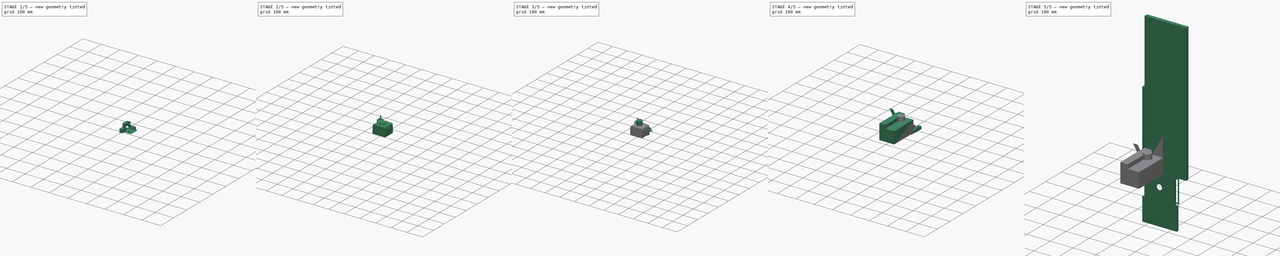
[diagram: build sequence overview — one tinted view per stage of 5, left to right]
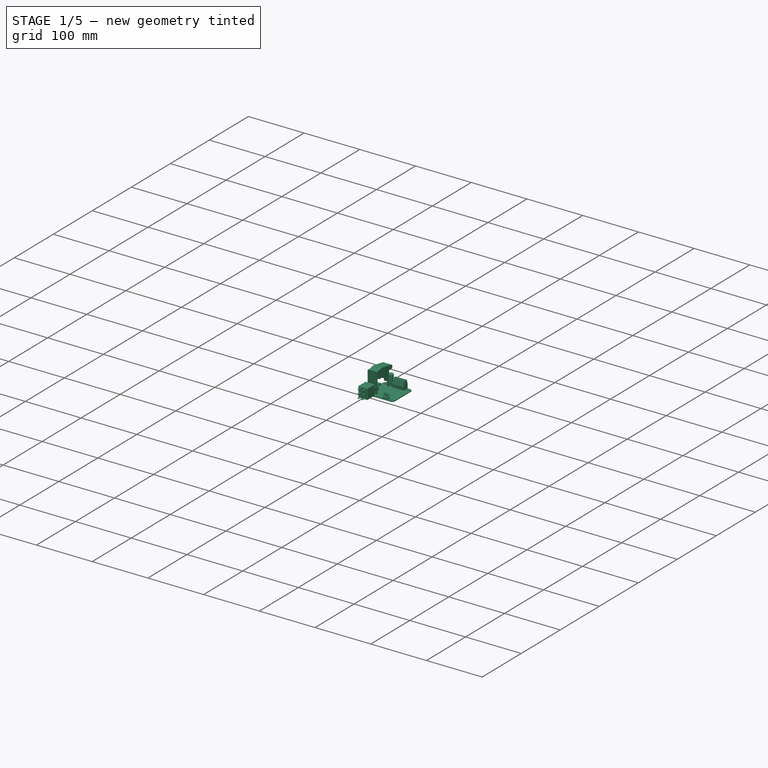
[diagram: stage 1 of 5 — iso view after this stage's code; geometry added in this stage tinted green]
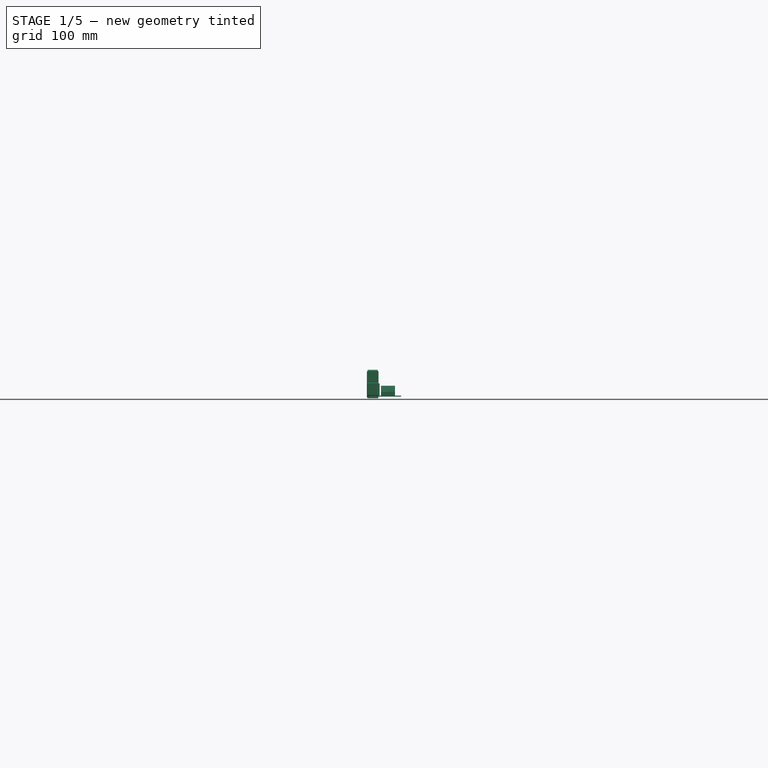
[diagram: stage 1 of 5 — front view after this stage's code; geometry added in this stage tinted green]
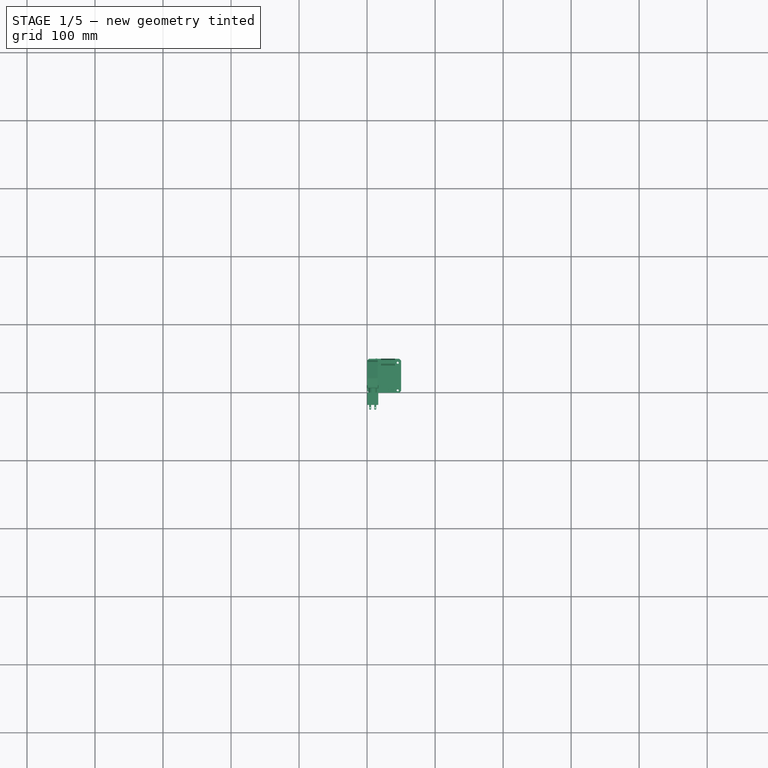
[diagram: stage 1 of 5 — top view after this stage's code; geometry added in this stage tinted green]
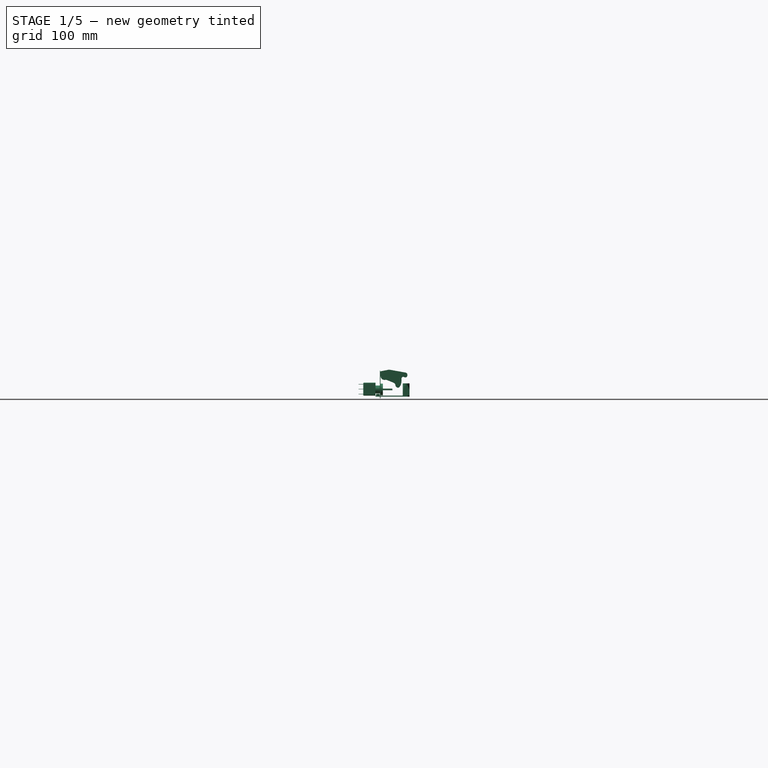
[diagram: stage 1 of 5 — right view after this stage's code; geometry added in this stage tinted green]
FCSTD DOCUMENT  (FreeCAD 1.0R39285 (Git))
Label: Front-Sketch
License: All rights reserved
LicenseURL: https://en.wikipedia.org/wiki/All_rights_reserved
objects: Sketcher::SketchObject×94, PartDesign::Pad×72, PartDesign::Pocket×20, PartDesign::Body×19, PartDesign::LinearPattern×12, PartDesign::Chamfer×9, PartDesign::Fillet×7, PartDesign::MultiTransform×4, App::Link×1, PartDesign::AdditiveLoft×1, PartDesign::PolarPattern×1
note: 568 computed .brp shape members not serialized (recipe doc carries the construction recipe); baked Part::Feature solids carry a one-line shape summary decoded from their .brp

FEATURE [PartDesign::Body] Body016  label="MotorMitGetriebe"
  AllowCompound = false
  Group = -> [Sketch067,Pad052,Sketch068,Pad053,Sketch069,Pad054,Sketch070,Pad055,Fillet003,Sketch071,Pad056,Sketch072,Pocket013,Sketch073,Pocket014,Sketch074,Pad057,Sketch075,Pad058]
  Origin = -> Origin016
  Placement = pos=(-157.5,216.5,160) rot=(-0.57735,-0.57735,-0.57735;4.18879rad)
  Tip = -> Pad058
FEATURE [Sketcher::SketchObject] Sketch076
  ArcFitTolerance = 1e-06
  AttachmentSupport = -> [XY_Plane]
  FullyConstrained = true
  MakeInternals = false
  MapMode = 5
  sketch-geometry (24):
    g0: LineSegment StartX=0 StartY=47.1716 StartZ=0 EndX=0 EndY=2.82843 EndZ=0
    g1: LineSegment StartX=2.82843 StartY=0 StartZ=0 EndX=47.1716 EndY=0 EndZ=0
    g2: LineSegment StartX=50 StartY=2.82843 StartZ=0 EndX=50 EndY=47.1716 EndZ=0
    g3: LineSegment StartX=47.1716 StartY=50 StartZ=0 EndX=2.82843 EndY=50 EndZ=0
    g4: LineSegment StartX=0 StartY=47.1716 StartZ=0 EndX=2.82843 EndY=50 EndZ=0
    g5: LineSegment StartX=47.1716 StartY=50 StartZ=0 EndX=50 EndY=47.1716 EndZ=0
    g6: LineSegment StartX=50 StartY=2.82843 StartZ=0 EndX=47.1716 EndY=0 EndZ=0
    g7: LineSegment StartX=2.82843 StartY=0 StartZ=0 EndX=0 EndY=2.82843 EndZ=0
    g8: LineSegment [constr] StartX=2.82843 StartY=50 StartZ=0 EndX=0 EndY=50 EndZ=0
    g9: LineSegment [constr] StartX=0 StartY=47.1716 StartZ=0 EndX=0 EndY=50 EndZ=0
    g10: LineSegment [constr] StartX=47.1716 StartY=50 StartZ=0 EndX=50 EndY=50 EndZ=0
    g11: LineSegment [constr] StartX=50 StartY=50 StartZ=0 EndX=50 EndY=47.1716 EndZ=0
    g12: LineSegment [constr] StartX=50 StartY=2.82843 StartZ=0 EndX=50 EndY=0 EndZ=0
    g13: LineSegment [constr] StartX=47.1716 StartY=0 StartZ=0 EndX=50 EndY=0 EndZ=0
    g14: LineSegment [constr] StartX=0 StartY=2.82843 StartZ=0 EndX=0 EndY=0 EndZ=0
    g15: LineSegment [constr] StartX=0 StartY=0 StartZ=0 EndX=2.82843 EndY=0 EndZ=0
    g16: Circle CenterX=5 CenterY=3.5 CenterZ=0 NormalX=0 NormalY=0 NormalZ=1 AngleXU=0 Radius=1.5
    g17: Circle CenterX=5 CenterY=44 CenterZ=0 NormalX=0 NormalY=0 NormalZ=1 AngleXU=0 Radius=1.5
    g18: Circle CenterX=45 CenterY=44 CenterZ=0 NormalX=0 NormalY=0 NormalZ=1 AngleXU=0 Radius=1.5
    g19: Circle CenterX=45 CenterY=3.5 CenterZ=0 NormalX=0 NormalY=0 NormalZ=1 AngleXU=0 Radius=1.5
    g20: LineSegment [constr] StartX=3.5 StartY=3.5 StartZ=0 EndX=0 EndY=3.5 EndZ=0
    g21: LineSegment [constr] StartX=46.5 StartY=3.5 StartZ=0 EndX=50 EndY=3.5 EndZ=0
    g22: LineSegment [constr] StartX=5 StartY=2 StartZ=0 EndX=5 EndY=0 EndZ=0
    g23: LineSegment [constr] StartX=5 StartY=45.5 StartZ=0 EndX=5 EndY=50 EndZ=0
  constraints (71):
    c: Vertical(g0)
    c: Vertical(g2)
    c: Horizontal(g1)
    c: Horizontal(g3)
    c: Coincident(g0,g7)
    c: Coincident(g1,g7)
    c: Coincident(g2,g6)
    c: Coincident(g1,g6)
    c: Coincident(g3,g5)
    c: Coincident(g2,g5)
    c: Coincident(g3,g4)
    c: Coincident(g0,g4)
    c: Coincident(g8,g3)
    c: Horizontal(g8)
    c: Coincident(g9,g0)
    c: Coincident(g9,g8)
    c: Coincident(g10,g3)
    c: Horizontal(g10)
    c: Coincident(g11,g10)
    c: Coincident(g11,g2)
    c: Coincident(g12,g2)
    c: Vertical(g12)
    c: Coincident(g13,g1)
    c: Coincident(g13,g12)
    c: Coincident(g14,g0)
    c: Vertical(g14)
    c: Coincident(g15,g14)
    c: Coincident(g15,g1)
    c: Horizontal(g15)
    c: Vertical(g9)
    c: Vertical(g11)
    c: Horizontal(g13)
    c: Equal(g13,g12)
    c: Equal(g12,g11)
    c: Equal(g11,g10)
    c: Equal(g10,g8)
    c: Equal(g8,g9)
    c: Equal(g9,g15)
    c: Equal(g15,g14)
    c: DistanceX(g14,g12) = 50
    c: DistanceY(g14,g8) = 50
    c: Coincident(g14,g-1)
    c: Distance(g5) = 4
    c: Equal(g18,g17)
    c: Equal(g17,g16)
    c: Equal(g16,g19)
    c: Horizontal(g16,g19)
    c: Horizontal(g17,g18)
    c: Vertical(g18,g19)
    c: Vertical(g16,g17)
    c: Diameter(g16) = 3
    c: PointOnObject(g20,g16)
    c: PointOnObject(g20,g0)
    c: Horizontal(g20)
    c: PointOnObject(g21,g19)
    c: PointOnObject(g21,g2)
    c: Horizontal(g21)
    c: DistanceX(g21,g21) = 3.5
    c: Equal(g21,g20)
    c: Horizontal(g20,g16)
    c: Horizontal(g16,g21)
    c: PointOnObject(g22,g16)
    c: PointOnObject(g22,g1)
    c: Vertical(g22)
    c: Vertical(g22,g16)
    c: DistanceY(g22,g22) = 2
    c: PointOnObject(g23,g17)
    c: PointOnObject(g23,g3)
    c: Vertical(g23)
    c: Vertical(g23,g17)
    c: DistanceY(g23,g23) = 4.5
FEATURE [PartDesign::Pad] Pad059
  Direction = (0,0,1)
  Length = 1.5
  Length2 = 10
  Profile = -> Sketch076
  ReferenceAxis = -> Sketch076 [N_Axis]
  Refine = true
  Reversed = true
  Suppressed = false
  Type = 0
FEATURE [Sketcher::SketchObject] Sketch077
  ArcFitTolerance = 1e-06
  AttachmentSupport = -> [Pad059]
  ExternalGeometry = -> [Pad059]
  FullyConstrained = true
  MakeInternals = false
  MapMode = 5
  sketch-geometry (3):
    g0: Circle CenterX=13.5 CenterY=45 CenterZ=0 NormalX=0 NormalY=0 NormalZ=1 AngleXU=0 Radius=5
    g1: GeomPoint [constr] X=13.5 Y=50 Z=0
    g2: LineSegment [constr] StartX=8.5 StartY=45 StartZ=0 EndX=0 EndY=45 EndZ=0
  constraints (9):
    c: Diameter(g0) = 10
    c: PointOnObject(g1,g0)
    c: Vertical(g1,g0)
    c: PointOnObject(g1,g-3)
    c: PointOnObject(g2,g0)
    c: PointOnObject(g2,g-2)
    c: Horizontal(g2)
    c: Horizontal(g2,g0)
    c: DistanceX(g2,g2) = 8.5
FEATURE [PartDesign::Pad] Pad060
  BaseFeature = -> Pad059
  Direction = (0,0,1)
  Length = 18
  Length2 = 10
  Profile = -> Sketch077
  ReferenceAxis = -> Sketch077 [N_Axis]
  Refine = true
  Suppressed = false
  Type = 0
FEATURE [Sketcher::SketchObject] Sketch078
  ArcFitTolerance = 1e-06
  AttachmentSupport = -> [Pad060]
  ExternalGeometry = -> [Pad060]
  FullyConstrained = true
  MakeInternals = false
  MapMode = 5
  sketch-geometry (4):
    g0: LineSegment StartX=20.5 StartY=50 StartZ=0 EndX=20.5 EndY=40 EndZ=0
    g1: LineSegment StartX=20.5 StartY=40 StartZ=0 EndX=41 EndY=40 EndZ=0
    g2: LineSegment StartX=41 StartY=40 StartZ=0 EndX=41 EndY=50 EndZ=0
    g3: LineSegment StartX=41 StartY=50 StartZ=0 EndX=20.5 EndY=50 EndZ=0
  constraints (12):
    c: Coincident(g0,g1)
    c: Coincident(g1,g2)
    c: Coincident(g2,g3)
    c: Coincident(g3,g0)
    c: Vertical(g0)
    c: Vertical(g2)
    c: Horizontal(g1)
    c: Horizontal(g3)
    c: Distance(g0,g2) = 20.5
    c: Distance(g1,g3) = 10
    c: PointOnObject(g0,g-3)
    c: DistanceX(g1,g-4) = 9
FEATURE [PartDesign::Pad] Pad061
  BaseFeature = -> Pad060
  Direction = (0,0,1)
  Length = 14.5
  Length2 = 10
  Profile = -> Sketch078
  ReferenceAxis = -> Sketch078 [N_Axis]
  Refine = true
  Suppressed = false
  Type = 0
FEATURE [PartDesign::Chamfer] Chamfer006
  Angle = 45
  Base = -> Pad061 [Edge44]
  BaseFeature = -> Pad061
  ChamferType = 1
  FlipDirection = false
  Refine = true
  Size = 9
  Size2 = 2.5
  SupportTransform = false
  Suppressed = false
  UseAllEdges = false
FEATURE [PartDesign::Chamfer] Chamfer007
  Angle = 45
  Base = -> Chamfer006 [Edge28]
  BaseFeature = -> Chamfer006
  ChamferType = 1
  FlipDirection = false
  Refine = true
  Size = 2
  Size2 = 7
  SupportTransform = false
  Suppressed = false
  UseAllEdges = false
FEATURE [Sketcher::SketchObject] Sketch079
  ArcFitTolerance = 1e-06
  AttachmentSupport = -> [Chamfer007]
  ExternalGeometry = -> [Chamfer007]
  FullyConstrained = true
  MakeInternals = false
  MapMode = 5
  Placement = pos=(0,0,14.5) rot=(0,0,1;0rad)
  sketch-geometry (10):
    g0: Circle CenterX=23.25 CenterY=45.25 CenterZ=0 NormalX=0 NormalY=0 NormalZ=1 AngleXU=0 Radius=2
    g1: Circle CenterX=28.25 CenterY=45.25 CenterZ=0 NormalX=0 NormalY=0 NormalZ=1 AngleXU=0 Radius=2
    g2: Circle CenterX=33.25 CenterY=45.25 CenterZ=0 NormalX=0 NormalY=0 NormalZ=1 AngleXU=0 Radius=2
    g3: Circle CenterX=38.25 CenterY=45.25 CenterZ=0 NormalX=0 NormalY=0 NormalZ=1 AngleXU=0 Radius=2
    g4: GeomPoint [constr] X=20.5 Y=45.25 Z=0
    g5: LineSegment [constr] StartX=38.25 StartY=45.25 StartZ=0 EndX=41 EndY=45.25 EndZ=0
    g6: LineSegment [constr] StartX=38.25 StartY=45.25 StartZ=0 EndX=33.25 EndY=45.25 EndZ=0
    g7: LineSegment [constr] StartX=33.25 StartY=45.25 StartZ=0 EndX=28.25 EndY=45.25 EndZ=0
    g8: LineSegment [constr] StartX=28.25 StartY=45.25 StartZ=0 EndX=23.25 EndY=45.25 EndZ=0
    g9: LineSegment [constr] StartX=23.25 StartY=45.25 StartZ=0 EndX=20.5 EndY=45.25 EndZ=0
  constraints (24):
    c: Equal(g2,g3)
    c: Equal(g3,g1)
    c: Equal(g1,g0)
    c: Horizontal(g0,g1)
    c: Horizontal(g1,g2)
    c: Horizontal(g2,g3)
    c: Diameter(g3) = 4
    c: Symmetric(g-3,g-4,g4)
    c: Horizontal(g4,g0)
    c: Coincident(g5,g3)
    c: Horizontal(g5)
    c: Coincident(g6,g3)
    c: Coincident(g6,g2)
    c: Coincident(g7,g2)
    c: Coincident(g7,g1)
    c: Coincident(g8,g1)
    c: Coincident(g8,g0)
    c: Coincident(g9,g0)
    c: Coincident(g9,g4)
    c: Equal(g9,g5)
    c: Vertical(g5,g-3)
    c: Equal(g6,g7)
    c: Equal(g7,g8)
    c: DistanceX(g6,g6) = 5
FEATURE [PartDesign::Pocket] Pocket015
  BaseFeature = -> Chamfer007
  Direction = (0,0,-1)
  Length = 1.5
  Length2 = 5
  Profile = -> Sketch079
  ReferenceAxis = -> Sketch079 [N_Axis]
  Refine = true
  Suppressed = false
  Type = 0
FEATURE [Sketcher::SketchObject] Sketch080
  ArcFitTolerance = 1e-06
  AttachmentSupport = -> [Pocket015]
  ExternalGeometry = -> [Pocket015]
  FullyConstrained = true
  MakeInternals = false
  MapMode = 5
  Placement = pos=(0,50,0) rot=(0,0.707107,0.707107;3.14159rad)
  sketch-geometry (21):
    g0: LineSegment StartX=-39.75 StartY=5.5 StartZ=0 EndX=-39.75 EndY=2.5 EndZ=0
    g1: LineSegment StartX=-39.75 StartY=2.5 StartZ=0 EndX=-36.75 EndY=2.5 EndZ=0
    g2: LineSegment StartX=-36.75 StartY=2.5 StartZ=0 EndX=-36.75 EndY=5.5 EndZ=0
    g3: LineSegment StartX=-36.75 StartY=5.5 StartZ=0 EndX=-39.75 EndY=5.5 EndZ=0
    g4: LineSegment StartX=-34.75 StartY=5.5 StartZ=0 EndX=-34.75 EndY=2.5 EndZ=0
    g5: LineSegment StartX=-34.75 StartY=2.5 StartZ=0 EndX=-31.75 EndY=2.5 EndZ=0
    g6: LineSegment StartX=-31.75 StartY=2.5 StartZ=0 EndX=-31.75 EndY=5.5 EndZ=0
    g7: LineSegment StartX=-31.75 StartY=5.5 StartZ=0 EndX=-34.75 EndY=5.5 EndZ=0
    g8: LineSegment StartX=-29.75 StartY=5.5 StartZ=0 EndX=-29.75 EndY=2.5 EndZ=0
    g9: LineSegment StartX=-29.75 StartY=2.5 StartZ=0 EndX=-26.75 EndY=2.5 EndZ=0
    g10: LineSegment StartX=-26.75 StartY=2.5 StartZ=0 EndX=-26.75 EndY=5.5 EndZ=0
    g11: LineSegment StartX=-26.75 StartY=5.5 StartZ=0 EndX=-29.75 EndY=5.5 EndZ=0
    g12: LineSegment StartX=-24.75 StartY=5.5 StartZ=0 EndX=-24.75 EndY=2.5 EndZ=0
    g13: LineSegment StartX=-24.75 StartY=2.5 StartZ=0 EndX=-21.75 EndY=2.5 EndZ=0
    g14: LineSegment StartX=-21.75 StartY=2.5 StartZ=0 EndX=-21.75 EndY=5.5 EndZ=0
    g15: LineSegment StartX=-21.75 StartY=5.5 StartZ=0 EndX=-24.75 EndY=5.5 EndZ=0
    g16: LineSegment [constr] StartX=-39.75 StartY=5.5 StartZ=0 EndX=-41 EndY=5.5 EndZ=0
    g17: LineSegment [constr] StartX=-36.75 StartY=5.5 StartZ=0 EndX=-34.75 EndY=5.5 EndZ=0
    g18: LineSegment [constr] StartX=-31.75 StartY=5.5 StartZ=0 EndX=-29.75 EndY=5.5 EndZ=0
    g19: LineSegment [constr] StartX=-26.75 StartY=5.5 StartZ=0 EndX=-24.75 EndY=5.5 EndZ=0
    g20: LineSegment [constr] StartX=-21.75 StartY=5.5 StartZ=0 EndX=-20.5 EndY=5.5 EndZ=0
  constraints (60):
    c: Coincident(g0,g1)
    c: Coincident(g1,g2)
    c: Coincident(g2,g3)
    c: Coincident(g3,g0)
    c: Vertical(g0)
    c: Vertical(g2)
    c: Horizontal(g1)
    c: Horizontal(g3)
    c: Coincident(g4,g5)
    c: Coincident(g5,g6)
    c: Coincident(g6,g7)
    c: Coincident(g7,g4)
    c: Vertical(g4)
    c: Vertical(g6)
    c: Horizontal(g5)
    c: Horizontal(g7)
    c: Coincident(g8,g9)
    c: Coincident(g9,g10)
    c: Coincident(g10,g11)
    c: Coincident(g11,g8)
    c: Vertical(g8)
    c: Vertical(g10)
    c: Horizontal(g9)
    c: Horizontal(g11)
    c: Coincident(g12,g13)
    c: Coincident(g13,g14)
    c: Coincident(g14,g15)
    c: Coincident(g15,g12)
    c: Vertical(g12)
    c: Vertical(g14)
    c: Horizontal(g13)
    c: Horizontal(g15)
    c: Equal(g3,g7)
    c: Equal(g7,g11)
    c: Equal(g11,g15)
    c: DistanceX(g11,g11) = 3
    c: Equal(g2,g6)
    c: Equal(g6,g10)
    c: Equal(g10,g14)
    c: DistanceY(g10,g10) = 3
    c: Horizontal(g1,g4)
    c: Horizontal(g4,g8)
    c: Horizontal(g8,g12)
    c: Coincident(g16,g0)
    c: Horizontal(g16)
    c: Coincident(g17,g2)
    c: Coincident(g17,g4)
    c: Coincident(g18,g6)
    c: Coincident(g18,g8)
    c: Coincident(g19,g10)
    c: Coincident(g19,g12)
    c: Coincident(g20,g14)
    c: Horizontal(g20)
    c: Vertical(g20,g-3)
    c: Vertical(g-3,g16)
    c: Equal(g20,g16)
    c: Equal(g17,g18)
    c: Equal(g18,g19)
    c: DistanceY(g-1,g13) = 2.5
    c: DistanceX(g0,g4) = 5
FEATURE [PartDesign::Pocket] Pocket016
  BaseFeature = -> Pocket015
  Direction = (0,-1,2e-16)
  Length = 5
  Length2 = 5
  Profile = -> Sketch080
  ReferenceAxis = -> Sketch080 [N_Axis]
  Refine = true
  Suppressed = false
  Type = 0
FEATURE [PartDesign::Chamfer] Chamfer008
  Angle = 45
  Base = -> Pocket016 [Edge40,Edge36,Edge32,Edge28]
  BaseFeature = -> Pocket016
  ChamferType = 0
  FlipDirection = false
  Refine = true
  Size = 1
  Size2 = 1
  SupportTransform = false
  Suppressed = false
  UseAllEdges = false
FEATURE [Sketcher::SketchObject] Sketch081
  ArcFitTolerance = 1e-06
  AttachmentSupport = -> [Chamfer008]
  ExternalGeometry = -> [Chamfer008]
  FullyConstrained = true
  MakeInternals = false
  MapMode = 5
  sketch-geometry (4):
    g0: LineSegment StartX=37.5 StartY=3.5 StartZ=0 EndX=37.5 EndY=1 EndZ=0
    g1: LineSegment StartX=37.5 StartY=1 StartZ=0 EndX=40 EndY=1 EndZ=0
    g2: LineSegment StartX=40 StartY=1 StartZ=0 EndX=40 EndY=3.5 EndZ=0
    g3: LineSegment StartX=40 StartY=3.5 StartZ=0 EndX=37.5 EndY=3.5 EndZ=0
  constraints (12):
    c: Coincident(g0,g1)
    c: Coincident(g1,g2)
    c: Coincident(g2,g3)
    c: Coincident(g3,g0)
    c: Vertical(g0)
    c: Vertical(g2)
    c: Horizontal(g1)
    c: Horizontal(g3)
    c: Distance(g0,g2) = 2.5
    c: Distance(g1,g3) = 2.5
    c: DistanceX(g1,g-3) = 10
    c: DistanceY(g-1,g1) = 1
FEATURE [PartDesign::Pad] Pad062
  BaseFeature = -> Chamfer008
  Direction = (0,0,1)
  Length = 2.5
  Length2 = 10
  Profile = -> Sketch081
  ReferenceAxis = -> Sketch081 [N_Axis]
  Refine = true
  Suppressed = false
  Type = 0
FEATURE [Sketcher::SketchObject] Sketch082
  ArcFitTolerance = 1e-06
  AttachmentSupport = -> [Pad062]
  ExternalGeometry = -> [Pad062]
  FullyConstrained = true
  MakeInternals = false
  MapMode = 5
  Placement = pos=(0,0,2.5) rot=(0,0,1;0rad)
  sketch-geometry (5):
    g0: LineSegment StartX=38.5 StartY=2.5 StartZ=0 EndX=38.5 EndY=2 EndZ=0
    g1: LineSegment StartX=38.5 StartY=2 StartZ=0 EndX=39 EndY=2 EndZ=0
    g2: LineSegment StartX=39 StartY=2 StartZ=0 EndX=39 EndY=2.5 EndZ=0
    g3: LineSegment StartX=39 StartY=2.5 StartZ=0 EndX=38.5 EndY=2.5 EndZ=0
    g4: GeomPoint [constr] X=38.75 Y=2.25 Z=0
  constraints (12):
    c: Coincident(g0,g1)
    c: Coincident(g1,g2)
    c: Coincident(g2,g3)
    c: Coincident(g3,g0)
    c: Vertical(g0)
    c: Vertical(g2)
    c: Horizontal(g1)
    c: Horizontal(g3)
    c: Equal(g0,g3)
    c: Symmetric(g0,g1,g4)
    c: Symmetric(g-3,g-4,g4)
    c: DistanceY(g2,g2) = 0.5
FEATURE [PartDesign::LinearPattern] LinearPattern007
  Direction = -> Sketch082 [H_Axis]
  Length = 7.5
  Mode = 0
  Occurrences = 4
  Offset = 2.5
  Refine = true
  Reversed = true
  Suppressed = false
  TransformMode = 0
FEATURE [PartDesign::LinearPattern] LinearPattern008
  Direction = -> Sketch082 [V_Axis]
  Length = 2.5
  Mode = 0
  Occurrences = 2
  Offset = 2.5
  Refine = true
  Suppressed = false
  TransformMode = 0
FEATURE [PartDesign::Pad] Pad063
  BaseFeature = -> Pad062
  Direction = (0,0,1)
  Length = 6
  Length2 = 10
  Profile = -> Sketch082
  ReferenceAxis = -> Sketch082 [N_Axis]
  Refine = true
  Suppressed = false
  Type = 0
FEATURE [PartDesign::MultiTransform] MultiTransform002
  BaseFeature = -> Pad063
  Originals = -> [Pad063,Pad062]
  Refine = true
  Suppressed = false
  TransformMode = 0
  Transformations = -> [LinearPattern007,LinearPattern008]
FEATURE [PartDesign::Body] Body017  label="Motortreiber"
  AllowCompound = false
  Group = -> [Sketch076,Pad059,Sketch077,Pad060,Sketch078,Pad061,Chamfer006,Chamfer007,Sketch079,Pocket015,Sketch080,Pocket016,Chamfer008,Sketch081,Pad062,Sketch082,Pad063,MultiTransform002,LinearPattern007,LinearPattern008,Sketch083,Pad064,Sketch084,Pocket017,LinearPattern009,Fillet004]
  Origin = -> Origin017
  Placement = pos=(-167,210,196) rot=(0.57735,0.57735,0.57735;2.0944rad)
  Tip = -> Fillet004
FEATURE [Sketcher::SketchObject] Sketch085
  ArcFitTolerance = 1e-06
  AttachmentSupport = -> [XZ_Plane]
  FullyConstrained = true
  MakeInternals = false
  MapMode = 5
  Placement = pos=(0,0,0) rot=(1,0,0;1.5708rad)
  sketch-geometry (12):
    g0: LineSegment StartX=1 StartY=4e-16 StartZ=0 EndX=15.5 EndY=4e-16 EndZ=0
    g1: LineSegment StartX=16.5 StartY=1 StartZ=0 EndX=16.5 EndY=18 EndZ=0
    g2: LineSegment StartX=15.5 StartY=19 StartZ=0 EndX=1 EndY=19 EndZ=0
    g3: LineSegment StartX=4e-16 StartY=18 StartZ=0 EndX=4e-16 EndY=1 EndZ=0
    g4: ArcOfCircle CenterX=1 CenterY=18 CenterZ=0 NormalX=0 NormalY=0 NormalZ=1 AngleXU=0 Radius=1 StartAngle=1.5708 EndAngle=3.14159
    g5: GeomPoint [constr] X=0 Y=19 Z=0
    g6: ArcOfCircle CenterX=15.5 CenterY=18 CenterZ=0 NormalX=0 NormalY=0 NormalZ=1 AngleXU=0 Radius=1 StartAngle=6.6e-15 EndAngle=1.5708
    g7: GeomPoint [constr] X=16.5 Y=19 Z=0
    g8: ArcOfCircle CenterX=15.5 CenterY=1 CenterZ=0 NormalX=0 NormalY=0 NormalZ=1 AngleXU=0 Radius=1 StartAngle=4.71239 EndAngle=6.28319
    g9: GeomPoint [constr] X=16.5 Y=0 Z=0
    g10: ArcOfCircle CenterX=1 CenterY=1 CenterZ=0 NormalX=0 NormalY=0 NormalZ=1 AngleXU=0 Radius=1 StartAngle=3.14159 EndAngle=4.71239
    g11: GeomPoint [constr] X=0 Y=0 Z=0
  constraints (27):
    c: Horizontal(g0)
    c: Horizontal(g2)
    c: Vertical(g1)
    c: Vertical(g3)
    c: Distance(g9,g11) = 16.5
    c: Distance(g11,g5) = 19
    c: Coincident(g11,g-1)
    c: PointOnObject(g5,g2)
    c: PointOnObject(g5,g3)
    c: Tangent(g2,g4) = -1.5708
    c: Tangent(g3,g4) = -1.5708
    c: PointOnObject(g7,g1)
    c: PointOnObject(g7,g2)
    c: Tangent(g1,g6) = -1.5708
    c: Tangent(g2,g6) = -1.5708
    c: PointOnObject(g9,g0)
    c: PointOnObject(g9,g1)
    c: Tangent(g0,g8) = -1.5708
    c: Tangent(g1,g8) = -1.5708
    c: PointOnObject(g11,g0)
    c: PointOnObject(g11,g3)
    c: Tangent(g0,g10) = -1.5708
    c: Tangent(g3,g10) = -1.5708
    c: Equal(g10,g8)
    c: Equal(g8,g6)
    c: Equal(g6,g4)
    c: Diameter(g10) = 2
FEATURE [PartDesign::Pad] Pad065
  Direction = (0,-1,2e-16)
  Length = 18
  Length2 = 10
  Placement = pos=(0,0,0) rot=(1,0,0;1.5708rad)
  Profile = -> Sketch085
  ReferenceAxis = -> Sketch085 [N_Axis]
  Refine = true
  Suppressed = false
  Type = 0
FEATURE [Sketcher::SketchObject] Sketch086
  ArcFitTolerance = 1e-06
  AttachmentSupport = -> [Pad065]
  ExternalGeometry = -> [Pad065]
  FullyConstrained = true
  MakeInternals = false
  MapMode = 5
  Placement = pos=(0,2.1e-15,0) rot=(-1,0,0;1.5708rad)
  sketch-geometry (1):
    g0: Circle CenterX=8.25 CenterY=-9 CenterZ=0 NormalX=0 NormalY=0 NormalZ=1 AngleXU=0 Radius=5.75
  constraints (2):
    c: Diameter(g0) = 11.5
    c: Symmetric(g-1,g-3,g0)
FEATURE [PartDesign::Pad] Pad066
  BaseFeature = -> Pad065
  Direction = (0,1,2e-16)
  Length = 6.5
  Length2 = 10
  Placement = pos=(0,0,0) rot=(1,0,0;1.5708rad)
  Profile = -> Sketch086
  ReferenceAxis = -> Sketch086 [N_Axis]
  Refine = true
  Suppressed = false
  Type = 0
FEATURE [Sketcher::SketchObject] Sketch087
  ArcFitTolerance = 1e-06
  AttachmentSupport = -> [Pad066]
  ExternalGeometry = -> [Pad066]
  FullyConstrained = true
  MakeInternals = false
  MapMode = 5
  Placement = pos=(0,6.5,0) rot=(-1,0,0;1.5708rad)
  sketch-geometry (15):
    g0: LineSegment StartX=-0.25 StartY=2 StartZ=0 EndX=-0.25 EndY=-34.5 EndZ=0
    g1: LineSegment StartX=1.75 StartY=-36.5 StartZ=0 EndX=14.75 EndY=-36.5 EndZ=0
    g2: LineSegment StartX=16.75 StartY=-34.5 StartZ=0 EndX=16.75 EndY=2 EndZ=0
    g3: LineSegment StartX=14.75 StartY=4 StartZ=0 EndX=1.75 EndY=4 EndZ=0
    g4: GeomPoint X=8.25 Y=-0.5 Z=0
    g5: GeomPoint X=-0.25 Y=-1 Z=0
    g6: GeomPoint X=16.75 Y=0 Z=0
    g7: ArcOfCircle CenterX=1.75 CenterY=2 CenterZ=0 NormalX=0 NormalY=0 NormalZ=1 AngleXU=0 Radius=2 StartAngle=1.5708 EndAngle=3.14159
    g8: GeomPoint [constr] X=-0.25 Y=4 Z=0
    g9: ArcOfCircle CenterX=14.75 CenterY=2 CenterZ=0 NormalX=0 NormalY=0 NormalZ=1 AngleXU=0 Radius=2 StartAngle=0 EndAngle=1.5708
    g10: GeomPoint [constr] X=16.75 Y=4 Z=0
    g11: ArcOfCircle CenterX=14.75 CenterY=-34.5 CenterZ=0 NormalX=0 NormalY=0 NormalZ=1 AngleXU=0 Radius=2 StartAngle=4.71239 EndAngle=6.28319
    g12: GeomPoint [constr] X=16.75 Y=-36.5 Z=0
    g13: ArcOfCircle CenterX=1.75 CenterY=-34.5 CenterZ=0 NormalX=0 NormalY=0 NormalZ=1 AngleXU=0 Radius=2 StartAngle=3.14159 EndAngle=4.71239
    g14: GeomPoint [constr] X=-0.25 Y=-36.5 Z=0
  constraints (32):
    c: Vertical(g0)
    c: Vertical(g2)
    c: Horizontal(g1)
    c: Horizontal(g3)
    c: Distance(g8,g10) = 17
    c: Distance(g14,g8) = 40.5
    c: DistanceY(g-1,g8) = 4
    c: PointOnObject(g5,g0)
    c: PointOnObject(g6,g2)
    c: PointOnObject(g6,g-1)
    c: Symmetric(g5,g6,g4)
    c: Symmetric(g-1,g-3,g4)
    c: PointOnObject(g8,g0)
    c: PointOnObject(g8,g3)
    c: Tangent(g0,g7) = -1.5708
    c: Tangent(g3,g7) = -1.5708
    c: PointOnObject(g10,g2)
    c: PointOnObject(g10,g3)
    c: Tangent(g2,g9) = -1.5708
    c: Tangent(g3,g9) = -1.5708
    c: PointOnObject(g12,g1)
    c: PointOnObject(g12,g2)
    c: Tangent(g1,g11) = -1.5708
    c: Tangent(g2,g11) = -1.5708
    c: PointOnObject(g14,g0)
    c: PointOnObject(g14,g1)
    c: Tangent(g0,g13) = -1.5708
    c: Tangent(g1,g13) = -1.5708
    c: Equal(g13,g11)
    c: Equal(g11,g7)
    c: Equal(g7,g9)
    c: Diameter(g7) = 4
FEATURE [PartDesign::Pad] Pad067
  BaseFeature = -> Pad066
  Direction = (0,1,2e-16)
  Length = 0.8
  Length2 = 10
  Placement = pos=(0,0,0) rot=(1,0,0;1.5708rad)
  Profile = -> Sketch087
  ReferenceAxis = -> Sketch087 [N_Axis]
  Refine = true
  Suppressed = false
  Type = 0
FEATURE [PartDesign::Fillet] Fillet005
  Base = -> Pad067 [Edge17,Edge19,Edge21,Edge4]
  BaseFeature = -> Pad067
  Placement = pos=(0,0,0) rot=(1,0,0;1.5708rad)
  Radius = 1
  Refine = true
  SupportTransform = false
  Suppressed = false
  UseAllEdges = false
FEATURE [Sketcher::SketchObject] Sketch088
  ArcFitTolerance = 1e-06
  AttachmentSupport = -> [Fillet005]
  ExternalGeometry = -> [Fillet005]
  FullyConstrained = false
  MakeInternals = false
  MapMode = 5
  Placement = pos=(0,7.3,1.7e-15) rot=(-1,0,0;1.5708rad)
  sketch-geometry (2):
    g0: GeomPoint X=8.25 Y=-9 Z=0
    g1: Circle CenterX=8.25 CenterY=-9 CenterZ=0 NormalX=0 NormalY=0 NormalZ=1 AngleXU=0 Radius=8.5
  constraints (2):
    c: Diameter(g1) = 17
    c: Coincident(g1,g0)
FEATURE [PartDesign::Pad] Pad068
  BaseFeature = -> Fillet005
  Direction = (0,1,2e-16)
  Length = 3.5
  Length2 = 10
  Placement = pos=(0,0,0) rot=(1,0,0;1.5708rad)
  Profile = -> Sketch088
  ReferenceAxis = -> Sketch088 [N_Axis]
  Refine = true
  Suppressed = false
  Type = 0
FEATURE [Sketcher::SketchObject] Sketch089
  ArcFitTolerance = 1e-06
  AttachmentSupport = -> [Pad068]
  ExternalGeometry = -> [Pad068]
  FullyConstrained = true
  MakeInternals = false
  MapMode = 5
  Placement = pos=(0,10.8,2.6e-15) rot=(-1,0,0;1.5708rad)
  sketch-geometry (4):
    g0: LineSegment StartX=5.25 StartY=-7.75 StartZ=0 EndX=5.25 EndY=-10.25 EndZ=0
    g1: LineSegment StartX=5.25 StartY=-10.25 StartZ=0 EndX=11.25 EndY=-10.25 EndZ=0
    g2: LineSegment StartX=11.25 StartY=-10.25 StartZ=0 EndX=11.25 EndY=-7.75 EndZ=0
    g3: LineSegment StartX=11.25 StartY=-7.75 StartZ=0 EndX=5.25 EndY=-7.75 EndZ=0
  constraints (11):
    c: Coincident(g0,g1)
    c: Coincident(g1,g2)
    c: Coincident(g2,g3)
    c: Coincident(g3,g0)
    c: Vertical(g0)
    c: Vertical(g2)
    c: Horizontal(g1)
    c: Horizontal(g3)
    c: Distance(g0,g2) = 6
    c: Distance(g1,g3) = 2.5
    c: Symmetric(g0,g1,g-3)
FEATURE [PartDesign::Pad] Pad069
  BaseFeature = -> Pad068
  Direction = (0,1,2e-16)
  Length = 14
  Length2 = 10
  Placement = pos=(0,0,0) rot=(1,0,0;1.5708rad)
  Profile = -> Sketch089
  ReferenceAxis = -> Sketch089 [N_Axis]
  Refine = true
  Suppressed = false
  Type = 0
FEATURE [Sketcher::SketchObject] Sketch090
  ArcFitTolerance = 1e-06
  FullyConstrained = false
  MakeInternals = false
  Placement = pos=(15.75,7,38) rot=(0.57735,0.57735,0.57735;2.0944rad)
  sketch-geometry (14):
    g0: BSplineCurve PolesCount=2 KnotsCount=2 Degree=1 IsPeriodic=0
    g1: BSplineCurve PolesCount=4 KnotsCount=2 Degree=3 IsPeriodic=0
    g2: BSplineCurve PolesCount=4 KnotsCount=2 Degree=3 IsPeriodic=0
    g3: BSplineCurve PolesCount=4 KnotsCount=2 Degree=3 IsPeriodic=0
    g4: BSplineCurve PolesCount=4 KnotsCount=2 Degree=3 IsPeriodic=0
    g5: BSplineCurve PolesCount=2 KnotsCount=2 Degree=1 IsPeriodic=0
    g6: BSplineCurve PolesCount=4 KnotsCount=2 Degree=3 IsPeriodic=0
    g7: BSplineCurve PolesCount=4 KnotsCount=2 Degree=3 IsPeriodic=0
    g8: BSplineCurve PolesCount=4 KnotsCount=2 Degree=3 IsPeriodic=0
    g9: BSplineCurve PolesCount=4 KnotsCount=2 Degree=3 IsPeriodic=0
    g10: BSplineCurve PolesCount=4 KnotsCount=2 Degree=3 IsPeriodic=0
    g11: BSplineCurve PolesCount=4 KnotsCount=2 Degree=3 IsPeriodic=0
    g12: BSplineCurve PolesCount=2 KnotsCount=2 Degree=1 IsPeriodic=0
    g13: BSplineCurve PolesCount=4 KnotsCount=2 Degree=3 IsPeriodic=0
  constraints (14):
    c: Coincident(g0,g1)
    c: Coincident(g1,g2)
    c: Coincident(g2,g3)
    c: Coincident(g3,g4)
    c: Coincident(g4,g5)
    c: Coincident(g5,g6)
    c: Coincident(g6,g7)
    c: Coincident(g7,g8)
    c: Coincident(g8,g9)
    c: Coincident(g9,g10)
    c: Coincident(g10,g11)
    c: Coincident(g11,g12)
    c: Coincident(g12,g13)
    c: Coincident(g13,g0)
FEATURE [PartDesign::Pad] Pad070
  BaseFeature = -> Pad069
  Direction = (1,-3e-16,3e-16)
  Length = 15
  Length2 = 10
  Placement = pos=(0,0,0) rot=(1,0,0;1.5708rad)
  Profile = -> Sketch090
  ReferenceAxis = -> Sketch090 [N_Axis]
  Refine = true
  Reversed = true
  Suppressed = false
  Type = 0
FEATURE [Sketcher::SketchObject] Sketch091
  ArcFitTolerance = 1e-06
  AttachmentOffset = pos=(0,0,11) rot=(0,0,1;0rad)
  ExternalGeometry = -> [Pad070]
  FullyConstrained = true
  MakeInternals = false
  MapMode = 5
  Placement = pos=(0,0,11) rot=(0,0,1;0rad)
  sketch-geometry (7):
    g0: LineSegment StartX=13 StartY=15.6392 StartZ=0 EndX=13 EndY=40.6392 EndZ=0
    g1: LineSegment StartX=13 StartY=40.6392 StartZ=0 EndX=3.5 EndY=40.6392 EndZ=0
    g2: LineSegment StartX=3.5 StartY=40.6392 StartZ=0 EndX=3.5 EndY=15.6392 EndZ=0
    g3: LineSegment StartX=3.5 StartY=15.6392 StartZ=0 EndX=13 EndY=15.6392 EndZ=0
    g4: LineSegment [constr] StartX=15.75 StartY=15.6392 StartZ=0 EndX=0.75 EndY=15.6392 EndZ=0
    g5: GeomPoint [constr] X=8.25 Y=15.6392 Z=0
    g6: GeomPoint [constr] X=8.25 Y=15.6392 Z=0
  constraints (15):
    c: Coincident(g0,g1)
    c: Coincident(g1,g2)
    c: Coincident(g2,g3)
    c: Coincident(g3,g0)
    c: Vertical(g0)
    c: Vertical(g2)
    c: Horizontal(g1)
    c: Horizontal(g3)
    c: Distance(g0,g2) = 9.5
    c: Distance(g1,g3) = 25
    c: Coincident(g4,g-3)
    c: Coincident(g4,g-4)
    c: Symmetric(g3,g3,g5)
    c: Symmetric(g4,g4,g6)
    c: Coincident(g5,g6)
FEATURE [PartDesign::Pocket] Pocket018
  BaseFeature = -> Pad070
  Direction = (0,0,-1)
  Length = 20
  Length2 = 5
  Placement = pos=(0,0,0) rot=(1,0,0;1.5708rad)
  Profile = -> Sketch091
  ReferenceAxis = -> Sketch091 [N_Axis]
  Refine = true
  Reversed = true
  Suppressed = false
  Type = 0
FEATURE [Sketcher::SketchObject] Sketch092
  ArcFitTolerance = 1e-06
  AttachmentSupport = -> [Pocket018]
  ExternalGeometry = -> [Pocket018]
  FullyConstrained = true
  MakeInternals = false
  MapMode = 5
  Placement = pos=(0,-18,0) rot=(1,0,0;1.5708rad)
  sketch-geometry (4):
    g0: LineSegment StartX=3 StartY=17 StartZ=0 EndX=3 EndY=16.5 EndZ=0
    g1: LineSegment StartX=3 StartY=16.5 StartZ=0 EndX=6 EndY=16.5 EndZ=0
    g2: LineSegment StartX=6 StartY=16.5 StartZ=0 EndX=6 EndY=17 EndZ=0
    g3: LineSegment StartX=6 StartY=17 StartZ=0 EndX=3 EndY=17 EndZ=0
  constraints (12):
    c: Coincident(g0,g1)
    c: Coincident(g1,g2)
    c: Coincident(g2,g3)
    c: Coincident(g3,g0)
    c: Vertical(g0)
    c: Vertical(g2)
    c: Horizontal(g1)
    c: Horizontal(g3)
    c: Distance(g0,g2) = 3
    c: Distance(g1,g3) = 0.5
    c: DistanceY(g0,g-4) = 2
    c: DistanceX(g-3,g0) = 3
FEATURE [PartDesign::LinearPattern] LinearPattern010
  Direction = -> Sketch092 [H_Axis]
  Length = 7.5
  Mode = 0
  Occurrences = 2
  Offset = 7.5
  Placement = pos=(0,0,0) rot=(1,0,0;1.5708rad)
  Refine = true
  Suppressed = false
  TransformMode = 0
FEATURE [PartDesign::LinearPattern] LinearPattern011
  Direction = -> Sketch092 [V_Axis]
  Length = 14.5
  Mode = 0
  Occurrences = 3
  Offset = 7.25
  Placement = pos=(0,0,0) rot=(1,0,0;1.5708rad)
  Refine = true
  Reversed = true
  Suppressed = false
  TransformMode = 0
FEATURE [PartDesign::Pad] Pad071
  BaseFeature = -> Pocket018
  Direction = (0,-1,2e-16)
  Length = 7
  Length2 = 10
  Placement = pos=(0,0,0) rot=(1,0,0;1.5708rad)
  Profile = -> Sketch092
  ReferenceAxis = -> Sketch092 [N_Axis]
  Refine = true
  Suppressed = false
  Type = 0
FEATURE [PartDesign::Fillet] Fillet006
  Base = -> Pad071 [Edge53,Edge50]
  BaseFeature = -> Pad071
  Placement = pos=(0,0,0) rot=(1,0,0;1.5708rad)
  Radius = 1
  Refine = true
  SupportTransform = false
  Suppressed = false
  UseAllEdges = false
FEATURE [Sketcher::SketchObject] Sketch093
  ArcFitTolerance = 1e-06
  AttachmentSupport = -> [Pad071]
  ExternalGeometry = -> [Pad071]
  FullyConstrained = true
  MakeInternals = false
  MapMode = 5
  Placement = pos=(0,3.8e-15,17) rot=(0,0,1;3.14159rad)
  sketch-geometry (6):
    g0: ArcOfCircle CenterX=-4.5 CenterY=23 CenterZ=0 NormalX=0 NormalY=0 NormalZ=1 AngleXU=0 Radius=0.5 StartAngle=-2.7e-15 EndAngle=3.14159
    g1: ArcOfCircle CenterX=-4.5 CenterY=21.5 CenterZ=0 NormalX=0 NormalY=0 NormalZ=1 AngleXU=0 Radius=0.5 StartAngle=3.14159 EndAngle=6.28319
    g2: LineSegment StartX=-4 StartY=23 StartZ=0 EndX=-4 EndY=21.5 EndZ=0
    g3: LineSegment StartX=-5 StartY=23 StartZ=0 EndX=-5 EndY=21.5 EndZ=0
    g4: GeomPoint X=-6 Y=23 Z=0
    g5: GeomPoint X=-3 Y=23 Z=0
  constraints (13):
    c: Tangent(g0,g2) = 1.5708
    c: Tangent(g0,g3) = -1.5708
    c: Tangent(g1,g2) = 1.5708
    c: Tangent(g1,g3) = -1.5708
    c: Equal(g0,g1)
    c: Vertical(g2)
    c: DistanceX(g1,g1) = 1
    c: PointOnObject(g4,g-3)
    c: PointOnObject(g5,g-4)
    c: Horizontal(g4,g0)
    c: Symmetric(g4,g5,g0)
    c: DistanceY(g1,g0) = 1.5
    c: DistanceY(g0,g-4) = 2
FEATURE [PartDesign::Pocket] Pocket019
  BaseFeature = -> Fillet006
  Direction = (0,0,-1)
  Length = 5
  Length2 = 5
  Placement = pos=(0,0,0) rot=(1,0,0;1.5708rad)
  Profile = -> Sketch093
  ReferenceAxis = -> Sketch093 [N_Axis]
  Refine = true
  Suppressed = false
  Type = 1
FEATURE [PartDesign::MultiTransform] MultiTransform003
  BaseFeature = -> Pocket019
  Originals = -> [Pad071,Fillet006,Pocket019]
  Placement = pos=(0,0,0) rot=(1,0,0;1.5708rad)
  Refine = true
  Suppressed = false
  TransformMode = 0
  Transformations = -> [LinearPattern010,LinearPattern011]
FEATURE [PartDesign::Body] Body018  label="FrontSwitch"
  AllowCompound = false
  Group = -> [Sketch085,Pad065,Sketch086,Pad066,Sketch087,Pad067,Fillet005,Sketch088,Pad068,Sketch089,Pad069,Sketch090,Pad070,Sketch091,Pocket018,Sketch092,Pad071,Sketch093,Fillet006,Pocket019,MultiTransform003,LinearPattern010,LinearPattern011]
  Origin = -> Origin018
  Placement = pos=(-160.5,144.5,198) rot=(0,0,1;4.71239rad)
  Tip = -> MultiTransform003
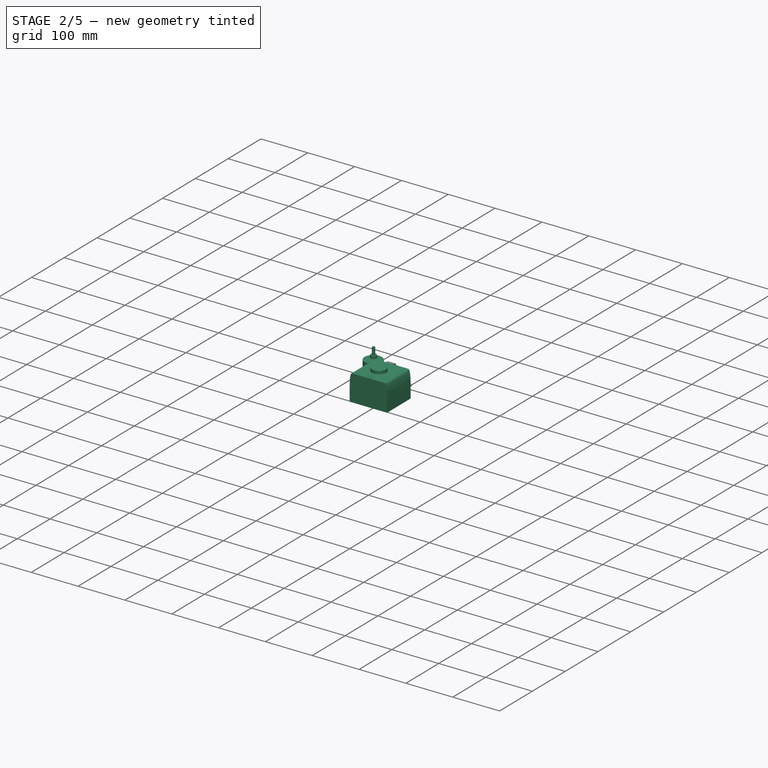
[diagram: stage 2 of 5 — iso view after this stage's code; geometry added in this stage tinted green]
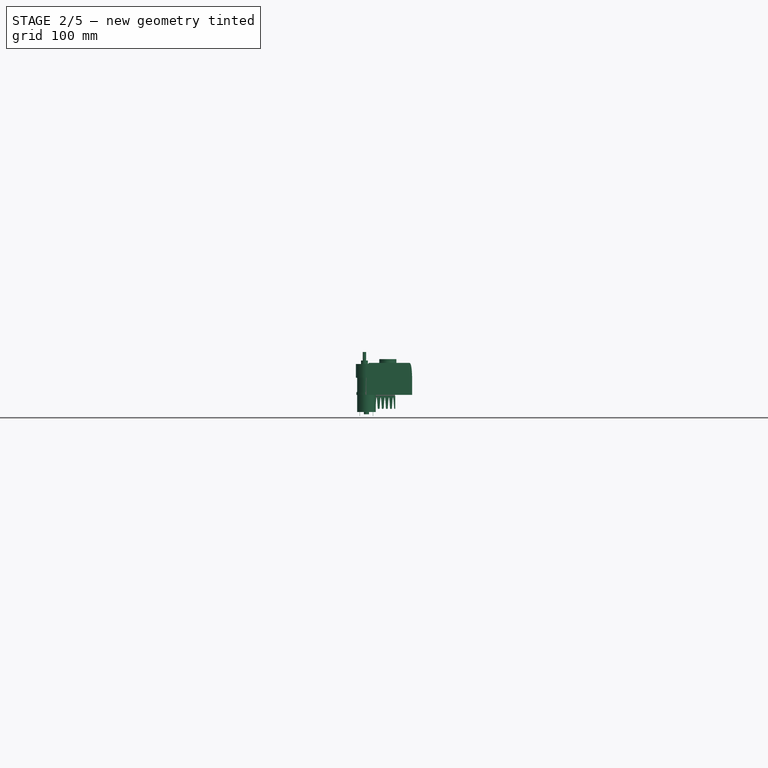
[diagram: stage 2 of 5 — front view after this stage's code; geometry added in this stage tinted green]
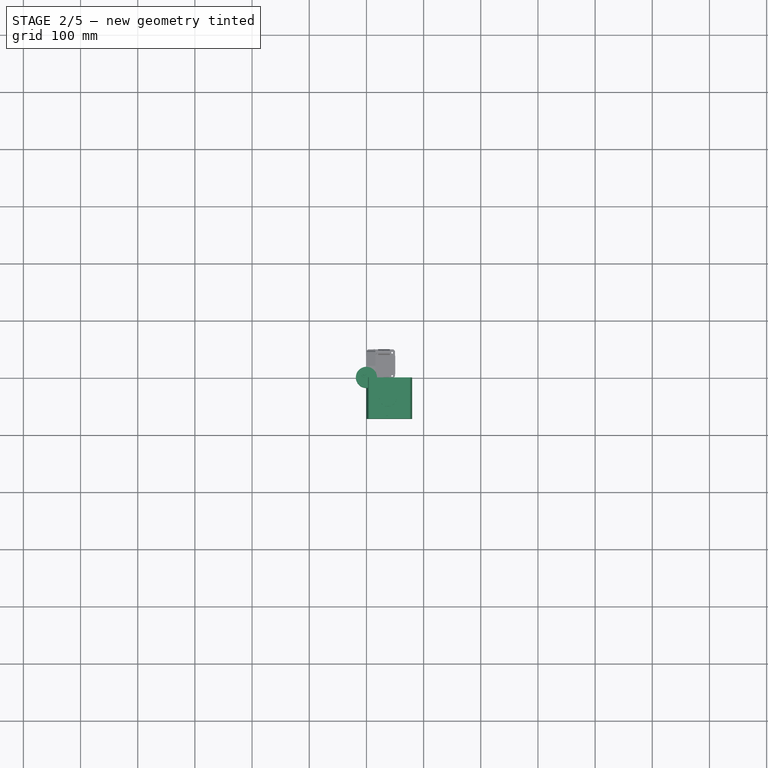
[diagram: stage 2 of 5 — top view after this stage's code; geometry added in this stage tinted green]
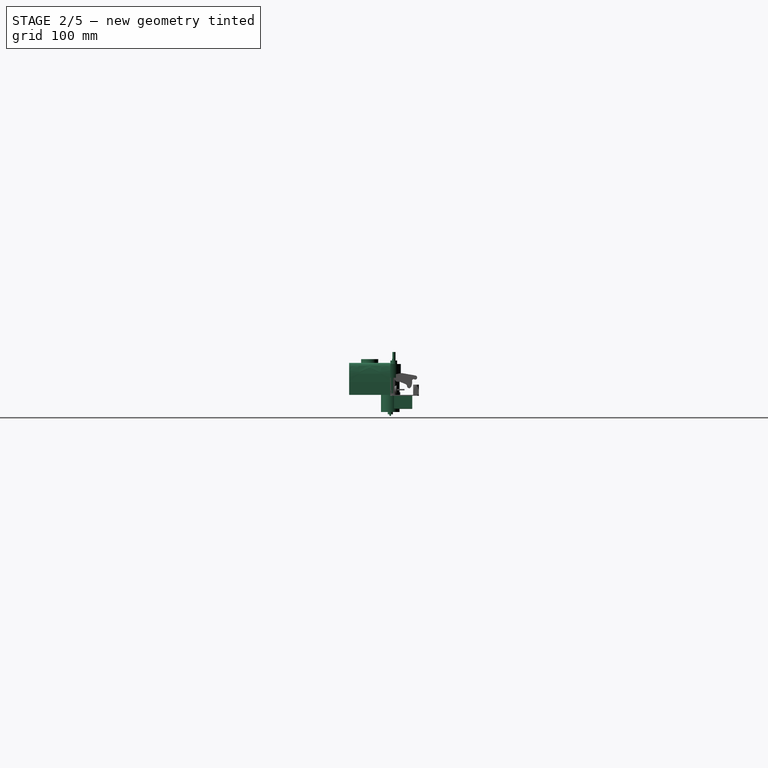
[diagram: stage 2 of 5 — right view after this stage's code; geometry added in this stage tinted green]
FEATURE [PartDesign::Body] Body013  label="LED-Ring"
  AllowCompound = false
  Group = -> [Sketch051,Pad041,Sketch052,Pad042,Sketch053,Pocket008,Sketch054,Pad043,PolarPattern]
  Origin = -> Origin013
  Placement = pos=(-195,404.5,33) rot=(0,1,0;1.5708rad)
  Tip = -> PolarPattern
FEATURE [Sketcher::SketchObject] Sketch055
  ArcFitTolerance = 1e-06
  AttachmentSupport = -> [XZ_Plane]
  FullyConstrained = true
  MakeInternals = false
  MapMode = 5
  Placement = pos=(0,0,0) rot=(1,0,0;1.5708rad)
  sketch-geometry (20):
    g0: Circle [constr] CenterX=0 CenterY=22.5 CenterZ=0 NormalX=0 NormalY=0 NormalZ=1 AngleXU=0 Radius=1
    g1: Circle [constr] CenterX=0 CenterY=56 CenterZ=0 NormalX=0 NormalY=0 NormalZ=1 AngleXU=0 Radius=1
    g2: Circle [constr] CenterX=5 CenterY=56 CenterZ=0 NormalX=0 NormalY=0 NormalZ=1 AngleXU=0 Radius=1
    g3: BSplineCurve PolesCount=3 KnotsCount=2 Degree=2 IsPeriodic=0
    g4: GeomPoint [constr] X=0 Y=22.5 Z=0
    g5: GeomPoint [constr] X=5 Y=56 Z=0
    g6: Circle [constr] CenterX=75 CenterY=56 CenterZ=0 NormalX=0 NormalY=0 NormalZ=1 AngleXU=0 Radius=1
    g7: Circle [constr] CenterX=80 CenterY=56 CenterZ=0 NormalX=0 NormalY=0 NormalZ=1 AngleXU=0 Radius=1
    g8: Circle [constr] CenterX=80 CenterY=22.5 CenterZ=0 NormalX=0 NormalY=0 NormalZ=1 AngleXU=0 Radius=1
    g9: BSplineCurve PolesCount=3 KnotsCount=2 Degree=2 IsPeriodic=0
    g10: GeomPoint [constr] X=75 Y=56 Z=0
    g11: GeomPoint [constr] X=80 Y=22.5 Z=0
    g12: LineSegment [constr] StartX=80 StartY=22.5 StartZ=0 EndX=80 EndY=56 EndZ=0
    g13: LineSegment [constr] StartX=75 StartY=56 StartZ=0 EndX=80 EndY=56 EndZ=0
    g14: LineSegment [constr] StartX=0 StartY=56 StartZ=0 EndX=5 EndY=56 EndZ=0
    g15: LineSegment [constr] StartX=0 StartY=22.5 StartZ=0 EndX=0 EndY=56 EndZ=0
    g16: LineSegment StartX=5 StartY=56 StartZ=0 EndX=75 EndY=56 EndZ=0
    g17: LineSegment StartX=0 StartY=22.5 StartZ=0 EndX=0 EndY=0 EndZ=0
    g18: LineSegment StartX=0 StartY=0 StartZ=0 EndX=80 EndY=0 EndZ=0
    g19: LineSegment StartX=80 StartY=22.5 StartZ=0 EndX=80 EndY=0 EndZ=0
  constraints (45):
    c: Weight(g0) = 1
    c: Equal(g0,g1)
    c: Equal(g0,g2)
    c: InternalAlignment(g0,g3)
    c: InternalAlignment(g1,g3)
    c: InternalAlignment(g2,g3)
    c: InternalAlignment(g4,g3)
    c: InternalAlignment(g5,g3)
    c: Weight(g6) = 1
    c: Equal(g6,g7)
    c: Equal(g6,g8)
    c: InternalAlignment(g6,g9)
    c: InternalAlignment(g7,g9)
    c: InternalAlignment(g8,g9)
    c: InternalAlignment(g10,g9)
    c: InternalAlignment(g11,g9)
    c: Coincident(g12,g9)
    c: Coincident(g12,g7)
    c: Vertical(g12)
    c: Coincident(g13,g9)
    c: Coincident(g13,g7)
    c: Horizontal(g13)
    c: Coincident(g14,g1)
    c: Coincident(g14,g3)
    c: Coincident(g15,g3)
    c: Coincident(g15,g1)
    c: Vertical(g15)
    c: Horizontal(g14)
    c: Equal(g13,g14)
    c: Equal(g12,g15)
    c: DistanceX(g14,g14) = 5
    c: DistanceY(g15,g15) = 33.5
    c: Coincident(g16,g3)
    c: Coincident(g16,g9)
    c: Horizontal(g16)
    c: Coincident(g17,g3)
    c: Vertical(g17)
    c: Coincident(g18,g17)
    c: Horizontal(g18)
    c: Coincident(g19,g9)
    c: Coincident(g19,g18)
    c: Vertical(g19)
    c: DistanceX(g18,g18) = 80
    c: Coincident(g17,g-1)
    c: DistanceY(g18,g7) = 56
FEATURE [PartDesign::Pad] Pad044
  Direction = (0,-1,2e-16)
  Length = 72
  Length2 = 10
  Placement = pos=(0,0,0) rot=(1,0,0;1.5708rad)
  Profile = -> Sketch055
  ReferenceAxis = -> Sketch055 [N_Axis]
  Refine = true
  Suppressed = false
  Type = 0
FEATURE [Sketcher::SketchObject] Sketch056
  ArcFitTolerance = 1e-06
  FullyConstrained = false
  MakeInternals = false
  Placement = pos=(30,-62,56) rot=(0,0,1;0rad)
  sketch-geometry (187):
    g0: BSplineCurve PolesCount=4 KnotsCount=2 Degree=3 IsPeriodic=0
    g1: BSplineCurve PolesCount=2 KnotsCount=2 Degree=1 IsPeriodic=0
    g2: BSplineCurve PolesCount=4 KnotsCount=2 Degree=3 IsPeriodic=0
    g3: BSplineCurve PolesCount=2 KnotsCount=2 Degree=1 IsPeriodic=0
    g4: BSplineCurve PolesCount=2 KnotsCount=2 Degree=1 IsPeriodic=0
    g5: BSplineCurve PolesCount=2 KnotsCount=2 Degree=1 IsPeriodic=0
    g6: BSplineCurve PolesCount=2 KnotsCount=2 Degree=1 IsPeriodic=0
    g7: BSplineCurve PolesCount=4 KnotsCount=2 Degree=3 IsPeriodic=0
    g8: BSplineCurve PolesCount=4 KnotsCount=2 Degree=3 IsPeriodic=0
    g9: BSplineCurve PolesCount=2 KnotsCount=2 Degree=1 IsPeriodic=0
    g10: BSplineCurve PolesCount=4 KnotsCount=2 Degree=3 IsPeriodic=0
    g11: BSplineCurve PolesCount=4 KnotsCount=2 Degree=3 IsPeriodic=0
    g12: BSplineCurve PolesCount=2 KnotsCount=2 Degree=1 IsPeriodic=0
    g13: BSplineCurve PolesCount=4 KnotsCount=2 Degree=3 IsPeriodic=0
    g14: BSplineCurve PolesCount=2 KnotsCount=2 Degree=1 IsPeriodic=0
    g15: BSplineCurve PolesCount=2 KnotsCount=2 Degree=1 IsPeriodic=0
    g16: BSplineCurve PolesCount=2 KnotsCount=2 Degree=1 IsPeriodic=0
    g17: BSplineCurve PolesCount=2 KnotsCount=2 Degree=1 IsPeriodic=0
    g18: BSplineCurve PolesCount=2 KnotsCount=2 Degree=1 IsPeriodic=0
    g19: BSplineCurve PolesCount=4 KnotsCount=2 Degree=3 IsPeriodic=0
    g20: BSplineCurve PolesCount=2 KnotsCount=2 Degree=1 IsPeriodic=0
    g21: BSplineCurve PolesCount=4 KnotsCount=2 Degree=3 IsPeriodic=0
    g22: BSplineCurve PolesCount=4 KnotsCount=2 Degree=3 IsPeriodic=0
    g23: BSplineCurve PolesCount=4 KnotsCount=2 Degree=3 IsPeriodic=0
    g24: BSplineCurve PolesCount=4 KnotsCount=2 Degree=3 IsPeriodic=0
    g25: BSplineCurve PolesCount=2 KnotsCount=2 Degree=1 IsPeriodic=0
    g26: BSplineCurve PolesCount=2 KnotsCount=2 Degree=1 IsPeriodic=0
    g27: BSplineCurve PolesCount=4 KnotsCount=2 Degree=3 IsPeriodic=0
    g28: BSplineCurve PolesCount=4 KnotsCount=2 Degree=3 IsPeriodic=0
    g29: BSplineCurve PolesCount=4 KnotsCount=2 Degree=3 IsPeriodic=0
    g30: BSplineCurve PolesCount=2 KnotsCount=2 Degree=1 IsPeriodic=0
    g31: BSplineCurve PolesCount=4 KnotsCount=2 Degree=3 IsPeriodic=0
    g32: BSplineCurve PolesCount=2 KnotsCount=2 Degree=1 IsPeriodic=0
    g33: BSplineCurve PolesCount=2 KnotsCount=2 Degree=1 IsPeriodic=0
    g34: BSplineCurve PolesCount=4 KnotsCount=2 Degree=3 IsPeriodic=0
    g35: BSplineCurve PolesCount=4 KnotsCount=2 Degree=3 IsPeriodic=0
    g36: BSplineCurve PolesCount=4 KnotsCount=2 Degree=3 IsPeriodic=0
    g37: BSplineCurve PolesCount=4 KnotsCount=2 Degree=3 IsPeriodic=0
    g38: BSplineCurve PolesCount=4 KnotsCount=2 Degree=3 IsPeriodic=0
    g39: BSplineCurve PolesCount=4 KnotsCount=2 Degree=3 IsPeriodic=0
    g40: BSplineCurve PolesCount=4 KnotsCount=2 Degree=3 IsPeriodic=0
    g41: BSplineCurve PolesCount=4 KnotsCount=2 Degree=3 IsPeriodic=0
    g42: BSplineCurve PolesCount=2 KnotsCount=2 Degree=1 IsPeriodic=0
    g43: BSplineCurve PolesCount=2 KnotsCount=2 Degree=1 IsPeriodic=0
    g44: BSplineCurve PolesCount=2 KnotsCount=2 Degree=1 IsPeriodic=0
    g45: BSplineCurve PolesCount=2 KnotsCount=2 Degree=1 IsPeriodic=0
    g46: BSplineCurve PolesCount=2 KnotsCount=2 Degree=1 IsPeriodic=0
    g47: BSplineCurve PolesCount=2 KnotsCount=2 Degree=1 IsPeriodic=0
    g48: BSplineCurve PolesCount=2 KnotsCount=2 Degree=1 IsPeriodic=0
    g49: BSplineCurve PolesCount=2 KnotsCount=2 Degree=1 IsPeriodic=0
    g50: BSplineCurve PolesCount=2 KnotsCount=2 Degree=1 IsPeriodic=0
    g51: BSplineCurve PolesCount=2 KnotsCount=2 Degree=1 IsPeriodic=0
    g52: BSplineCurve PolesCount=2 KnotsCount=2 Degree=1 IsPeriodic=0
    g53: BSplineCurve PolesCount=2 KnotsCount=2 Degree=1 IsPeriodic=0
    g54: BSplineCurve PolesCount=2 KnotsCount=2 Degree=1 IsPeriodic=0
    g55: BSplineCurve PolesCount=2 KnotsCount=2 Degree=1 IsPeriodic=0
    g56: BSplineCurve PolesCount=2 KnotsCount=2 Degree=1 IsPeriodic=0
    g57: BSplineCurve PolesCount=2 KnotsCount=2 Degree=1 IsPeriodic=0
    g58: BSplineCurve PolesCount=4 KnotsCount=2 Degree=3 IsPeriodic=0
    g59: BSplineCurve PolesCount=4 KnotsCount=2 Degree=3 IsPeriodic=0
    g60: BSplineCurve PolesCount=2 KnotsCount=2 Degree=1 IsPeriodic=0
    g61: BSplineCurve PolesCount=4 KnotsCount=2 Degree=3 IsPeriodic=0
    g62: BSplineCurve PolesCount=4 KnotsCount=2 Degree=3 IsPeriodic=0
    g63: BSplineCurve PolesCount=2 KnotsCount=2 Degree=1 IsPeriodic=0
    g64: BSplineCurve PolesCount=2 KnotsCount=2 Degree=1 IsPeriodic=0
    g65: BSplineCurve PolesCount=2 KnotsCount=2 Degree=1 IsPeriodic=0
    g66: BSplineCurve PolesCount=2 KnotsCount=2 Degree=1 IsPeriodic=0
    g67: BSplineCurve PolesCount=4 KnotsCount=2 Degree=3 IsPeriodic=0
    g68: BSplineCurve PolesCount=2 KnotsCount=2 Degree=1 IsPeriodic=0
    g69: BSplineCurve PolesCount=2 KnotsCount=2 Degree=1 IsPeriodic=0
    g70: BSplineCurve PolesCount=4 KnotsCount=2 Degree=3 IsPeriodic=0
    g71: BSplineCurve PolesCount=4 KnotsCount=2 Degree=3 IsPeriodic=0
    g72: BSplineCurve PolesCount=4 KnotsCount=2 Degree=3 IsPeriodic=0
    g73: BSplineCurve PolesCount=2 KnotsCount=2 Degree=1 IsPeriodic=0
    g74: BSplineCurve PolesCount=2 KnotsCount=2 Degree=1 IsPeriodic=0
    g75: BSplineCurve PolesCount=4 KnotsCount=2 Degree=3 IsPeriodic=0
    g76: BSplineCurve PolesCount=4 KnotsCount=2 Degree=3 IsPeriodic=0
    g77: BSplineCurve PolesCount=2 KnotsCount=2 Degree=1 IsPeriodic=0
    g78: BSplineCurve PolesCount=4 KnotsCount=2 Degree=3 IsPeriodic=0
    g79: BSplineCurve PolesCount=4 KnotsCount=2 Degree=3 IsPeriodic=0
    g80: BSplineCurve PolesCount=4 KnotsCount=2 Degree=3 IsPeriodic=0
    g81: BSplineCurve PolesCount=2 KnotsCount=2 Degree=1 IsPeriodic=0
    g82: BSplineCurve PolesCount=2 KnotsCount=2 Degree=1 IsPeriodic=0
    g83: BSplineCurve PolesCount=4 KnotsCount=2 Degree=3 IsPeriodic=0
    g84: BSplineCurve PolesCount=2 KnotsCount=2 Degree=1 IsPeriodic=0
    g85: BSplineCurve PolesCount=2 KnotsCount=2 Degree=1 IsPeriodic=0
    g86: BSplineCurve PolesCount=4 KnotsCount=2 Degree=3 IsPeriodic=0
    g87: BSplineCurve PolesCount=2 KnotsCount=2 Degree=1 IsPeriodic=0
    g88: BSplineCurve PolesCount=2 KnotsCount=2 Degree=1 IsPeriodic=0
    g89: BSplineCurve PolesCount=2 KnotsCount=2 Degree=1 IsPeriodic=0
    g90: BSplineCurve PolesCount=2 KnotsCount=2 Degree=1 IsPeriodic=0
    g91: BSplineCurve PolesCount=4 KnotsCount=2 Degree=3 IsPeriodic=0
    g92: BSplineCurve PolesCount=2 KnotsCount=2 Degree=1 IsPeriodic=0
    g93: BSplineCurve PolesCount=4 KnotsCount=2 Degree=3 IsPeriodic=0
    g94: BSplineCurve PolesCount=2 KnotsCount=2 Degree=1 IsPeriodic=0
    g95: BSplineCurve PolesCount=2 KnotsCount=2 Degree=1 IsPeriodic=0
    g96: BSplineCurve PolesCount=2 KnotsCount=2 Degree=1 IsPeriodic=0
    g97: BSplineCurve PolesCount=2 KnotsCount=2 Degree=1 IsPeriodic=0
    g98: BSplineCurve PolesCount=2 KnotsCount=2 Degree=1 IsPeriodic=0
    g99: BSplineCurve PolesCount=2 KnotsCount=2 Degree=1 IsPeriodic=0
    g100: BSplineCurve PolesCount=2 KnotsCount=2 Degree=1 IsPeriodic=0
    g101: BSplineCurve PolesCount=4 KnotsCount=2 Degree=3 IsPeriodic=0
    g102: BSplineCurve PolesCount=2 KnotsCount=2 Degree=1 IsPeriodic=0
    g103: BSplineCurve PolesCount=2 KnotsCount=2 Degree=1 IsPeriodic=0
    g104: BSplineCurve PolesCount=4 KnotsCount=2 Degree=3 IsPeriodic=0
    g105: BSplineCurve PolesCount=2 KnotsCount=2 Degree=1 IsPeriodic=0
    g106: BSplineCurve PolesCount=2 KnotsCount=2 Degree=1 IsPeriodic=0
    g107: BSplineCurve PolesCount=2 KnotsCount=2 Degree=1 IsPeriodic=0
    g108: BSplineCurve PolesCount=2 KnotsCount=2 Degree=1 IsPeriodic=0
    g109: BSplineCurve PolesCount=2 KnotsCount=2 Degree=1 IsPeriodic=0
    g110: BSplineCurve PolesCount=2 KnotsCount=2 Degree=1 IsPeriodic=0
    g111: BSplineCurve PolesCount=2 KnotsCount=2 Degree=1 IsPeriodic=0
    g112: BSplineCurve PolesCount=2 KnotsCount=2 Degree=1 IsPeriodic=0
    g113: BSplineCurve PolesCount=4 KnotsCount=2 Degree=3 IsPeriodic=0
    g114: BSplineCurve PolesCount=2 KnotsCount=2 Degree=1 IsPeriodic=0
    g115: BSplineCurve PolesCount=2 KnotsCount=2 Degree=1 IsPeriodic=0
    g116: BSplineCurve PolesCount=4 KnotsCount=2 Degree=3 IsPeriodic=0
    g117: BSplineCurve PolesCount=2 KnotsCount=2 Degree=1 IsPeriodic=0
    g118: BSplineCurve PolesCount=2 KnotsCount=2 Degree=1 IsPeriodic=0
    g119: BSplineCurve PolesCount=4 KnotsCount=2 Degree=3 IsPeriodic=0
    g120: BSplineCurve PolesCount=2 KnotsCount=2 Degree=1 IsPeriodic=0
    g121: BSplineCurve PolesCount=2 KnotsCount=2 Degree=1 IsPeriodic=0
    g122: BSplineCurve PolesCount=2 KnotsCount=2 Degree=1 IsPeriodic=0
    g123: BSplineCurve PolesCount=4 KnotsCount=2 Degree=3 IsPeriodic=0
    g124: BSplineCurve PolesCount=2 KnotsCount=2 Degree=1 IsPeriodic=0
    g125: BSplineCurve PolesCount=2 KnotsCount=2 Degree=1 IsPeriodic=0
    g126: BSplineCurve PolesCount=4 KnotsCount=2 Degree=3 IsPeriodic=0
    g127: BSplineCurve PolesCount=2 KnotsCount=2 Degree=1 IsPeriodic=0
    g128: BSplineCurve PolesCount=4 KnotsCount=2 Degree=3 IsPeriodic=0
    g129: BSplineCurve PolesCount=4 KnotsCount=2 Degree=3 IsPeriodic=0
    g130: BSplineCurve PolesCount=4 KnotsCount=2 Degree=3 IsPeriodic=0
    g131: BSplineCurve PolesCount=2 KnotsCount=2 Degree=1 IsPeriodic=0
    g132: BSplineCurve PolesCount=4 KnotsCount=2 Degree=3 IsPeriodic=0
    g133: BSplineCurve PolesCount=4 KnotsCount=2 Degree=3 IsPeriodic=0
    g134: BSplineCurve PolesCount=2 KnotsCount=2 Degree=1 IsPeriodic=0
    g135: BSplineCurve PolesCount=2 KnotsCount=2 Degree=1 IsPeriodic=0
    g136: BSplineCurve PolesCount=2 KnotsCount=2 Degree=1 IsPeriodic=0
    g137: BSplineCurve PolesCount=2 KnotsCount=2 Degree=1 IsPeriodic=0
    g138: BSplineCurve PolesCount=2 KnotsCount=2 Degree=1 IsPeriodic=0
    g139: BSplineCurve PolesCount=2 KnotsCount=2 Degree=1 IsPeriodic=0
    g140: BSplineCurve PolesCount=2 KnotsCount=2 Degree=1 IsPeriodic=0
    g141: BSplineCurve PolesCount=2 KnotsCount=2 Degree=1 IsPeriodic=0
    g142: BSplineCurve PolesCount=2 KnotsCount=2 Degree=1 IsPeriodic=0
    g143: BSplineCurve PolesCount=2 KnotsCount=2 Degree=1 IsPeriodic=0
    g144: BSplineCurve PolesCount=2 KnotsCount=2 Degree=1 IsPeriodic=0
    g145: BSplineCurve PolesCount=2 KnotsCount=2 Degree=1 IsPeriodic=0
    g146: BSplineCurve PolesCount=2 KnotsCount=2 Degree=1 IsPeriodic=0
    g147: BSplineCurve PolesCount=2 KnotsCount=2 Degree=1 IsPeriodic=0
    g148: BSplineCurve PolesCount=2 KnotsCount=2 Degree=1 IsPeriodic=0
    g149: BSplineCurve PolesCount=2 KnotsCount=2 Degree=1 IsPeriodic=0
    g150: BSplineCurve PolesCount=2 KnotsCount=2 Degree=1 IsPeriodic=0
    g151: BSplineCurve PolesCount=2 KnotsCount=2 Degree=1 IsPeriodic=0
    g152: BSplineCurve PolesCount=2 KnotsCount=2 Degree=1 IsPeriodic=0
    g153: BSplineCurve PolesCount=2 KnotsCount=2 Degree=1 IsPeriodic=0
    g154: BSplineCurve PolesCount=2 KnotsCount=2 Degree=1 IsPeriodic=0
    g155: BSplineCurve PolesCount=4 KnotsCount=2 Degree=3 IsPeriodic=0
    g156: BSplineCurve PolesCount=2 KnotsCount=2 Degree=1 IsPeriodic=0
    g157: BSplineCurve PolesCount=2 KnotsCount=2 Degree=1 IsPeriodic=0
    g158: BSplineCurve PolesCount=4 KnotsCount=2 Degree=3 IsPeriodic=0
    g159: BSplineCurve PolesCount=2 KnotsCount=2 Degree=1 IsPeriodic=0
    g160: BSplineCurve PolesCount=2 KnotsCount=2 Degree=1 IsPeriodic=0
    g161: BSplineCurve PolesCount=4 KnotsCount=2 Degree=3 IsPeriodic=0
    g162: BSplineCurve PolesCount=4 KnotsCount=2 Degree=3 IsPeriodic=0
    g163: BSplineCurve PolesCount=4 KnotsCount=2 Degree=3 IsPeriodic=0
    g164: BSplineCurve PolesCount=2 KnotsCount=2 Degree=1 IsPeriodic=0
    g165: BSplineCurve PolesCount=2 KnotsCount=2 Degree=1 IsPeriodic=0
    g166: BSplineCurve PolesCount=2 KnotsCount=2 Degree=1 IsPeriodic=0
    g167: BSplineCurve PolesCount=4 KnotsCount=2 Degree=3 IsPeriodic=0
    g168: BSplineCurve PolesCount=4 KnotsCount=2 Degree=3 IsPeriodic=0
    g169: BSplineCurve PolesCount=4 KnotsCount=2 Degree=3 IsPeriodic=0
    g170: BSplineCurve PolesCount=2 KnotsCount=2 Degree=1 IsPeriodic=0
    g171: BSplineCurve PolesCount=4 KnotsCount=2 Degree=3 IsPeriodic=0
    g172: BSplineCurve PolesCount=2 KnotsCount=2 Degree=1 IsPeriodic=0
    g173: BSplineCurve PolesCount=2 KnotsCount=2 Degree=1 IsPeriodic=0
    g174: BSplineCurve PolesCount=2 KnotsCount=2 Degree=1 IsPeriodic=0
    g175: BSplineCurve PolesCount=2 KnotsCount=2 Degree=1 IsPeriodic=0
    g176: BSplineCurve PolesCount=2 KnotsCount=2 Degree=1 IsPeriodic=0
    g177: BSplineCurve PolesCount=4 KnotsCount=2 Degree=3 IsPeriodic=0
    g178: BSplineCurve PolesCount=2 KnotsCount=2 Degree=1 IsPeriodic=0
    g179: BSplineCurve PolesCount=2 KnotsCount=2 Degree=1 IsPeriodic=0
    g180: BSplineCurve PolesCount=4 KnotsCount=2 Degree=3 IsPeriodic=0
    g181: BSplineCurve PolesCount=2 KnotsCount=2 Degree=1 IsPeriodic=0
    g182: BSplineCurve PolesCount=2 KnotsCount=2 Degree=1 IsPeriodic=0
    g183: BSplineCurve PolesCount=2 KnotsCount=2 Degree=1 IsPeriodic=0
    g184: BSplineCurve PolesCount=4 KnotsCount=2 Degree=3 IsPeriodic=0
    g185: BSplineCurve PolesCount=2 KnotsCount=2 Degree=1 IsPeriodic=0
    g186: BSplineCurve PolesCount=4 KnotsCount=2 Degree=3 IsPeriodic=0
  constraints (187):
    c: Coincident(g0,g1)
    c: Coincident(g1,g2)
    c: Coincident(g2,g0)
    c: Coincident(g3,g4)
    c: Coincident(g4,g5)
    c: Coincident(g5,g6)
    c: Coincident(g6,g3)
    c: Coincident(g7,g8)
    c: Coincident(g8,g9)
    c: Coincident(g9,g10)
    c: Coincident(g10,g11)
    c: Coincident(g11,g12)
    c: Coincident(g12,g7)
    c: Coincident(g13,g14)
    c: Coincident(g14,g15)
    c: Coincident(g15,g16)
    c: Coincident(g16,g17)
    c: Coincident(g17,g18)
    c: Coincident(g18,g19)
    c: Coincident(g19,g13)
    c: Coincident(g20,g21)
    c: Coincident(g21,g22)
    c: Coincident(g22,g23)
    c: Coincident(g23,g24)
    c: Coincident(g24,g25)
    c: Coincident(g25,g26)
    c: Coincident(g26,g27)
    c: Coincident(g27,g28)
    c: Coincident(g28,g29)
    c: Coincident(g29,g30)
    c: Coincident(g30,g31)
    c: Coincident(g31,g32)
    c: Coincident(g32,g33)
    c: Coincident(g33,g34)
    c: Coincident(g34,g35)
    c: Coincident(g35,g36)
    c: Coincident(g36,g37)
    c: Coincident(g37,g38)
    c: Coincident(g38,g39)
    c: Coincident(g39,g40)
    c: Coincident(g40,g41)
    c: Coincident(g41,g20)
    c: Coincident(g42,g43)
    c: Coincident(g43,g44)
    c: Coincident(g44,g42)
    c: Coincident(g45,g46)
    c: Coincident(g46,g47)
    c: Coincident(g47,g48)
    c: Coincident(g48,g49)
    c: Coincident(g49,g50)
    c: Coincident(g50,g51)
    c: Coincident(g51,g52)
    c: Coincident(g52,g53)
    c: Coincident(g53,g54)
    c: Coincident(g54,g55)
    c: Coincident(g55,g56)
    c: Coincident(g56,g57)
    c: Coincident(g57,g58)
    c: Coincident(g58,g59)
    c: Coincident(g59,g60)
    c: Coincident(g60,g61)
    c: Coincident(g61,g62)
    c: Coincident(g62,g45)
    c: Coincident(g63,g64)
    c: Coincident(g64,g65)
    c: Coincident(g65,g66)
    c: Coincident(g66,g63)
    c: Coincident(g67,g68)
    c: Coincident(g68,g69)
    c: Coincident(g69,g70)
    c: Coincident(g70,g71)
    c: Coincident(g71,g72)
    c: Coincident(g72,g73)
    c: Coincident(g73,g74)
    c: Coincident(g74,g75)
    c: Coincident(g75,g76)
    c: Coincident(g76,g77)
    c: Coincident(g77,g78)
    c: Coincident(g78,g79)
    c: Coincident(g79,g80)
    c: Coincident(g80,g81)
    c: Coincident(g81,g82)
    c: Coincident(g82,g83)
    c: Coincident(g83,g84)
    c: Coincident(g84,g85)
    c: Coincident(g85,g86)
    c: Coincident(g86,g67)
    c: Coincident(g87,g88)
    c: Coincident(g88,g89)
    c: Coincident(g89,g90)
    c: Coincident(g90,g91)
    c: Coincident(g91,g92)
    c: Coincident(g92,g93)
    c: Coincident(g93,g94)
    c: Coincident(g94,g95)
    c: Coincident(g95,g96)
    c: Coincident(g96,g97)
    c: Coincident(g97,g98)
    c: Coincident(g98,g99)
    c: Coincident(g99,g100)
    c: Coincident(g100,g101)
    c: Coincident(g101,g102)
    c: Coincident(g102,g87)
    c: Coincident(g103,g104)
    c: Coincident(g104,g105)
    c: Coincident(g105,g106)
    c: Coincident(g106,g107)
    c: Coincident(g107,g108)
    c: Coincident(g108,g109)
    c: Coincident(g109,g110)
    c: Coincident(g110,g103)
    c: Coincident(g111,g112)
    c: Coincident(g112,g113)
    c: Coincident(g113,g114)
    c: Coincident(g114,g115)
    c: Coincident(g115,g116)
    c: Coincident(g116,g117)
    c: Coincident(g117,g118)
    c: Coincident(g118,g119)
    c: Coincident(g119,g120)
    c: Coincident(g120,g121)
    c: Coincident(g121,g122)
    c: Coincident(g122,g111)
    c: Coincident(g123,g124)
    c: Coincident(g124,g125)
    c: Coincident(g125,g126)
    c: Coincident(g126,g127)
    c: Coincident(g127,g128)
    c: Coincident(g128,g129)
    c: Coincident(g129,g130)
    c: Coincident(g130,g131)
    c: Coincident(g131,g132)
    c: Coincident(g132,g123)
    c: Coincident(g133,g134)
    c: Coincident(g134,g135)
    c: Coincident(g135,g136)
    c: Coincident(g136,g137)
    c: Coincident(g137,g138)
    c: Coincident(g138,g139)
    c: Coincident(g139,g140)
    c: Coincident(g140,g141)
    c: Coincident(g141,g142)
    c: Coincident(g142,g143)
    c: Coincident(g143,g144)
    c: Coincident(g144,g145)
    c: Coincident(g145,g146)
    c: Coincident(g146,g147)
    c: Coincident(g147,g148)
    c: Coincident(g148,g149)
    c: Coincident(g149,g150)
    c: Coincident(g150,g151)
    c: Coincident(g151,g152)
    c: Coincident(g152,g153)
    c: Coincident(g153,g154)
    c: Coincident(g154,g155)
    c: Coincident(g155,g156)
    c: Coincident(g156,g157)
    c: Coincident(g157,g158)
    c: Coincident(g158,g159)
    c: Coincident(g159,g160)
    c: Coincident(g160,g161)
    c: Coincident(g161,g162)
    c: Coincident(g162,g163)
    c: Coincident(g163,g164)
    c: Coincident(g164,g165)
    c: Coincident(g165,g166)
    c: Coincident(g166,g167)
    c: Coincident(g167,g168)
    c: Coincident(g168,g169)
    c: Coincident(g169,g170)
    c: Coincident(g170,g171)
    c: Coincident(g171,g172)
    c: Coincident(g172,g173)
    c: Coincident(g173,g174)
    c: Coincident(g174,g175)
    c: Coincident(g175,g176)
    c: Coincident(g176,g177)
    c: Coincident(g177,g178)
    c: Coincident(g178,g179)
    c: Coincident(g179,g180)
    c: Coincident(g180,g181)
    c: Coincident(g181,g182)
    c: Coincident(g182,g183)
    c: Coincident(g183,g184)
    c: Coincident(g184,g185)
    c: Coincident(g185,g186)
    c: Coincident(g186,g133)
FEATURE [PartDesign::Pocket] Pocket009
  BaseFeature = -> Pad044
  Direction = (0,0,-1)
  Length = 0.1
  Length2 = 5
  Placement = pos=(0,0,0) rot=(1,0,0;1.5708rad)
  Profile = -> Sketch056
  ReferenceAxis = -> Sketch056 [N_Axis]
  Refine = true
  Suppressed = false
  Type = 0
FEATURE [Sketcher::SketchObject] Sketch057
  ArcFitTolerance = 1e-06
  AttachmentSupport = -> [Pocket009]
  FullyConstrained = true
  MakeInternals = false
  MapMode = 5
  Placement = pos=(0,2.46e-14,56) rot=(0,0,1;3.14159rad)
  sketch-geometry (3):
    g0: Circle CenterX=-37.5 CenterY=36 CenterZ=0 NormalX=0 NormalY=0 NormalZ=1 AngleXU=0 Radius=15
    g1: LineSegment [constr] StartX=-22.5 StartY=36 StartZ=0 EndX=0 EndY=36 EndZ=0
    g2: LineSegment [constr] StartX=-37.5 StartY=21 StartZ=0 EndX=-37.5 EndY=0 EndZ=0
  constraints (11):
    c: Diameter(g0) = 30
    c: PointOnObject(g1,g0)
    c: PointOnObject(g1,g-2)
    c: Horizontal(g1)
    c: PointOnObject(g2,g0)
    c: PointOnObject(g2,g-1)
    c: Vertical(g2)
    c: Vertical(g2,g0)
    c: Horizontal(g1,g0)
    c: DistanceY(g2,g2) = 21
    c: DistanceX(g1,g1) = 22.5
FEATURE [PartDesign::Pad] Pad045
  BaseFeature = -> Pocket009
  Direction = (0,0,1)
  Length = 6.5
  Length2 = 10
  Placement = pos=(0,0,0) rot=(1,0,0;1.5708rad)
  Profile = -> Sketch057
  ReferenceAxis = -> Sketch057 [N_Axis]
  Refine = true
  Suppressed = false
  Type = 0
FEATURE [PartDesign::Body] Body014  label="Notaus"
  AllowCompound = false
  Group = -> [Sketch055,Pad044,Sketch056,Pocket009,Sketch057,Pad045,Sketch058,Pad046,Sketch059,Pocket010,Sketch060,Pocket011]
  Origin = -> Origin014
  Placement = pos=(-187.5,95,180) rot=(0.57735,0.57735,0.57735;2.0944rad)
  Tip = -> Pocket011
FEATURE [Sketcher::SketchObject] Sketch061
  ArcFitTolerance = 1e-06
  AttachmentSupport = -> [XY_Plane]
  FullyConstrained = true
  MakeInternals = false
  MapMode = 5
  sketch-geometry (1):
    g0: Circle CenterX=0 CenterY=0 CenterZ=0 NormalX=0 NormalY=0 NormalZ=1 AngleXU=0 Radius=16.25
  constraints (2):
    c: Diameter(g0) = 32.5
    c: Coincident(g0,g-1)
FEATURE [PartDesign::Pad] Pad047
  Direction = (0,0,1)
  Length = 30
  Length2 = 10
  Profile = -> Sketch061
  ReferenceAxis = -> Sketch061 [N_Axis]
  Refine = true
  Suppressed = false
  Type = 0
FEATURE [Sketcher::SketchObject] Sketch062
  ArcFitTolerance = 1e-06
  AttachmentSupport = -> [Pad047]
  FullyConstrained = true
  MakeInternals = false
  MapMode = 5
  Placement = pos=(0,0,30) rot=(0,0,1;0rad)
  sketch-geometry (1):
    g0: Circle CenterX=0 CenterY=0 CenterZ=0 NormalX=0 NormalY=0 NormalZ=1 AngleXU=0 Radius=18.5
  constraints (2):
    c: Diameter(g0) = 37
    c: Coincident(g0,g-1)
FEATURE [PartDesign::Pad] Pad048
  BaseFeature = -> Pad047
  Direction = (0,0,1)
  Length = 24
  Length2 = 10
  Profile = -> Sketch062
  ReferenceAxis = -> Sketch062 [N_Axis]
  Refine = true
  Suppressed = false
  Type = 0
FEATURE [Sketcher::SketchObject] Sketch063
  ArcFitTolerance = 1e-06
  AttachmentSupport = -> [Pad048]
  FullyConstrained = false
  MakeInternals = false
  MapMode = 5
  Placement = pos=(0,0,54) rot=(0,0,1;0rad)
  sketch-geometry (14):
    g0: LineSegment [constr] StartX=13.1475 StartY=-7.5907 StartZ=0 EndX=13.1475 EndY=7.5907 EndZ=0
    g1: LineSegment [constr] StartX=13.1475 StartY=7.5907 StartZ=0 EndX=0 EndY=15.1814 EndZ=0
    g2: LineSegment [constr] StartX=-1e-16 StartY=15.1814 StartZ=0 EndX=-13.1475 EndY=7.5907 EndZ=0
    g3: LineSegment [constr] StartX=-13.1475 StartY=7.5907 StartZ=0 EndX=-13.1475 EndY=-7.5907 EndZ=0
    g4: LineSegment [constr] StartX=-13.1475 StartY=-7.5907 StartZ=0 EndX=-1.8e-15 EndY=-15.1814 EndZ=0
    g5: LineSegment [constr] StartX=-1.7e-15 StartY=-15.1814 StartZ=0 EndX=13.1475 EndY=-7.5907 EndZ=0
    g6: Circle [constr] CenterX=0 CenterY=0 CenterZ=0 NormalX=0 NormalY=0 NormalZ=1 AngleXU=0 Radius=15.1814
    g7: LineSegment [constr] StartX=0 StartY=18.5 StartZ=0 EndX=-1e-16 EndY=15.1814 EndZ=0
    g8: Circle CenterX=-13.1475 CenterY=7.5907 CenterZ=0 NormalX=0 NormalY=0 NormalZ=1 AngleXU=0 Radius=1.25
    g9: Circle CenterX=-13.1475 CenterY=-7.5907 CenterZ=0 NormalX=0 NormalY=0 NormalZ=1 AngleXU=0 Radius=1.25
    g10: Circle CenterX=13.1475 CenterY=-7.5907 CenterZ=0 NormalX=0 NormalY=0 NormalZ=1 AngleXU=0 Radius=1.25
    g11: Circle CenterX=-1e-16 CenterY=15.1814 CenterZ=0 NormalX=0 NormalY=0 NormalZ=1 AngleXU=0 Radius=1.25
    g12: Circle CenterX=13.8538 CenterY=7.99848 CenterZ=0 NormalX=0 NormalY=0 NormalZ=1 AngleXU=0 Radius=1.25
    g13: Circle CenterX=-1.7e-15 CenterY=-15.1814 CenterZ=0 NormalX=0 NormalY=0 NormalZ=1 AngleXU=0 Radius=1.25
  constraints (28):
    c: Coincident(g0,g1)
    c: Coincident(g1,g2)
    c: Coincident(g2,g3)
    c: Coincident(g3,g4)
    c: Coincident(g4,g5)
    c: Coincident(g5,g0)
    c: Equal(g0, g1-g5) x5
    c: PointOnObject(g0,g6)
    c: PointOnObject(g1,g6)
    c: PointOnObject(g2,g6)
    c: PointOnObject(g3,g6)
    c: PointOnObject(g4,g6)
    c: PointOnObject(g5,g6)
    c: Coincident(g6,g-1)
    c: PointOnObject(g1,g-2)
    c: PointOnObject(g7,g-2)
    c: Coincident(g7,g1)
    c: Diameter(g8) = 2.5
    c: Coincident(g8,g2)
    c: Coincident(g9,g3)
    c: Coincident(g10,g0)
    c: Coincident(g11,g1)
    c: Equal(g11,g8)
    c: Equal(g9,g10)
    c: Equal(g10,g8)
    c: Coincident(g13,g4)
    c: Equal(g13,g12)
    c: Equal(g8,g12)
FEATURE [PartDesign::Pocket] Pocket012
  BaseFeature = -> Pad048
  Direction = (0,0,-1)
  Length = 4
  Length2 = 5
  Profile = -> Sketch063
  ReferenceAxis = -> Sketch063 [N_Axis]
  Refine = true
  Suppressed = false
  Type = 0
FEATURE [Sketcher::SketchObject] Sketch064
  ArcFitTolerance = 1e-06
  AttachmentOffset = pos=(0,0,0) rot=(0,0,1;0.523599rad)
  AttachmentSupport = -> [Pocket012]
  ExternalGeometry = -> [Pocket012]
  FullyConstrained = true
  MakeInternals = false
  MapMode = 5
  Placement = pos=(0,0,54) rot=(0,0,1;0.523599rad)
  sketch-geometry (4):
    g0: Circle CenterX=0 CenterY=7 CenterZ=0 NormalX=0 NormalY=0 NormalZ=1 AngleXU=0 Radius=6
    g1: GeomPoint X=0 Y=18.5 Z=0
    g2: GeomPoint X=0 Y=13 Z=0
    g3: LineSegment [constr] StartX=0 StartY=13 StartZ=0 EndX=0 EndY=18.5 EndZ=0
  constraints (9):
    c: Diameter(g0) = 12
    c: PointOnObject(g0,g-2)
    c: PointOnObject(g1,g-3)
    c: PointOnObject(g1,g-2)
    c: PointOnObject(g2,g0)
    c: PointOnObject(g2,g-2)
    c: Coincident(g3,g2)
    c: Coincident(g3,g1)
    c: DistanceY(g3,g3) = 5.5
FEATURE [PartDesign::Pad] Pad049
  BaseFeature = -> Pocket012
  Direction = (0,0,1)
  Length = 6
  Length2 = 10
  Profile = -> Sketch064
  ReferenceAxis = -> Sketch064 [N_Axis]
  Refine = true
  Suppressed = false
  Type = 0
FEATURE [Sketcher::SketchObject] Sketch065
  ArcFitTolerance = 1e-06
  AttachmentSupport = -> [Pad049]
  ExternalGeometry = -> [Pad049]
  FullyConstrained = true
  MakeInternals = false
  MapMode = 5
  Placement = pos=(0,0,60) rot=(0,0,1;0rad)
  sketch-geometry (1):
    g0: Circle CenterX=-3.5 CenterY=6.06218 CenterZ=0 NormalX=0 NormalY=0 NormalZ=1 AngleXU=0 Radius=3
  constraints (2):
    c: Diameter(g0) = 6
    c: Coincident(g0,g-3)
FEATURE [PartDesign::Pad] Pad050
  BaseFeature = -> Pad049
  Direction = (0,0,1)
  Length = 3
  Length2 = 10
  Profile = -> Sketch065
  ReferenceAxis = -> Sketch065 [N_Axis]
  Refine = true
  Suppressed = false
  Type = 0
FEATURE [Sketcher::SketchObject] Sketch066
  ArcFitTolerance = 1e-06
  AttachmentSupport = -> [Pad050]
  ExternalGeometry = -> [Pad050]
  FullyConstrained = true
  MakeInternals = false
  MapMode = 5
  Placement = pos=(0,0,63) rot=(0,0,1;0rad)
  sketch-geometry (5):
    g0: LineSegment StartX=-5.15831 StartY=3.56218 StartZ=0 EndX=-1.84169 EndY=3.56218 EndZ=0
    g1: ArcOfCircle CenterX=-3.5 CenterY=6.06218 CenterZ=0 NormalX=0 NormalY=0 NormalZ=1 AngleXU=0 Radius=3 StartAngle=5.29807 EndAngle=10.4099
    g2: GeomPoint X=-3.5 Y=3.56218 Z=0
    g3: GeomPoint X=-3.5 Y=9.06218 Z=0
    g4: LineSegment [constr] StartX=-3.5 StartY=9.06218 StartZ=0 EndX=-3.5 EndY=3.56218 EndZ=0
  constraints (11):
    c: PointOnObject(g0,g-3)
    c: Horizontal(g0)
    c: Coincident(g1,g-3)
    c: Symmetric(g0,g0,g2)
    c: PointOnObject(g3,g1)
    c: Vertical(g3,g2)
    c: Coincident(g4,g3)
    c: Coincident(g4,g2)
    c: DistanceY(g4,g4) = 5.5
    c: Coincident(g1,g0)
    c: Coincident(g1,g0)
FEATURE [PartDesign::Pad] Pad051
  BaseFeature = -> Pad050
  Direction = (0,0,1)
  Length = 12
  Length2 = 10
  Profile = -> Sketch066
  ReferenceAxis = -> Sketch066 [N_Axis]
  Refine = true
  Suppressed = false
  Type = 0
FEATURE [PartDesign::Body] Body015  label="MotorOhneGetriebe"
  AllowCompound = false
  Group = -> [Sketch061,Pad047,Sketch062,Pad048,Sketch063,Pocket012,Sketch064,Pad049,Sketch065,Pad050,Sketch066,Pad051]
  Origin = -> Origin015
  Placement = pos=(-199,213.5,112) rot=(0.57735,-0.57735,0.57735;4.18879rad)
  Tip = -> Pad051
FEATURE [Sketcher::SketchObject] Sketch067
  ArcFitTolerance = 1e-06
  AttachmentSupport = -> [XY_Plane]
  FullyConstrained = true
  MakeInternals = false
  MapMode = 5
  sketch-geometry (1):
    g0: Circle CenterX=0 CenterY=0 CenterZ=0 NormalX=0 NormalY=0 NormalZ=1 AngleXU=0 Radius=17.5
  constraints (2):
    c: Diameter(g0) = 35
    c: Coincident(g0,g-1)
FEATURE [PartDesign::Pad] Pad052
  Direction = (0,0,1)
  Length = 4.5
  Length2 = 10
  Profile = -> Sketch067
  ReferenceAxis = -> Sketch067 [N_Axis]
  Refine = true
  Suppressed = false
  Type = 0
FEATURE [Sketcher::SketchObject] Sketch068
  ArcFitTolerance = 1e-06
  AttachmentSupport = -> [Pad052]
  FullyConstrained = true
  MakeInternals = false
  MapMode = 5
  Placement = pos=(0,0,0) rot=(1,0,0;3.14159rad)
  sketch-geometry (1):
    g0: Circle CenterX=0 CenterY=0 CenterZ=0 NormalX=0 NormalY=0 NormalZ=1 AngleXU=0 Radius=16.25
  constraints (2):
    c: Diameter(g0) = 32.5
    c: Coincident(g0,g-1)
FEATURE [PartDesign::Pad] Pad053
  BaseFeature = -> Pad052
  Direction = (0,0,-1)
  Length = 30
  Length2 = 10
  Profile = -> Sketch068
  ReferenceAxis = -> Sketch068 [N_Axis]
  Refine = true
  Suppressed = false
  Type = 0
FEATURE [Sketcher::SketchObject] Sketch069
  ArcFitTolerance = 1e-06
  AttachmentSupport = -> [Pad053]
  FullyConstrained = true
  MakeInternals = false
  MapMode = 5
  Placement = pos=(0,0,-30) rot=(1,0,0;3.14159rad)
  sketch-geometry (1):
    g0: Circle CenterX=0 CenterY=0 CenterZ=0 NormalX=0 NormalY=0 NormalZ=1 AngleXU=0 Radius=4.5
  constraints (2):
    c: Diameter(g0) = 9
    c: Coincident(g0,g-1)
FEATURE [PartDesign::Pad] Pad054
  BaseFeature = -> Pad053
  Direction = (0,0,-1)
  Length = 4
  Length2 = 10
  Profile = -> Sketch069 [Edge1]
  ReferenceAxis = -> Sketch069 [N_Axis]
  Refine = true
  Suppressed = false
  Type = 0
FEATURE [Sketcher::SketchObject] Sketch070
  ArcFitTolerance = 1e-06
  AttachmentSupport = -> [Pad054]
  ExternalGeometry = -> [Pad054]
  FullyConstrained = true
  MakeInternals = false
  MapMode = 5
  Placement = pos=(0,0,-30) rot=(1,0,0;3.14159rad)
  sketch-geometry (12):
    g0: LineSegment StartX=11.25 StartY=1.5 StartZ=0 EndX=11.25 EndY=-1.5 EndZ=0
    g1: LineSegment StartX=11.25 StartY=-1.5 StartZ=0 EndX=11.75 EndY=-1.5 EndZ=0
    g2: LineSegment StartX=11.75 StartY=-1.5 StartZ=0 EndX=11.75 EndY=1.5 EndZ=0
    g3: LineSegment StartX=11.75 StartY=1.5 StartZ=0 EndX=11.25 EndY=1.5 EndZ=0
    g4: LineSegment StartX=-11.75 StartY=1.5 StartZ=0 EndX=-11.75 EndY=-1.5 EndZ=0
    g5: LineSegment StartX=-11.75 StartY=-1.5 StartZ=0 EndX=-11.25 EndY=-1.5 EndZ=0
    g6: LineSegment StartX=-11.25 StartY=-1.5 StartZ=0 EndX=-11.25 EndY=1.5 EndZ=0
    g7: LineSegment StartX=-11.25 StartY=1.5 StartZ=0 EndX=-11.75 EndY=1.5 EndZ=0
    g8: GeomPoint X=11.25 Y=0 Z=0
    g9: GeomPoint X=-11.75 Y=0 Z=0
    g10: LineSegment [constr] StartX=-11.75 StartY=0 StartZ=0 EndX=-16.25 EndY=0 EndZ=0
    g11: LineSegment [constr] StartX=11.75 StartY=1e-16 StartZ=0 EndX=16.25 EndY=1e-16 EndZ=0
  constraints (32):
    c: Coincident(g0,g1)
    c: Coincident(g1,g2)
    c: Coincident(g2,g3)
    c: Coincident(g3,g0)
    c: Vertical(g0)
    c: Vertical(g2)
    c: Horizontal(g1)
    c: Horizontal(g3)
    c: Coincident(g4,g5)
    c: Coincident(g5,g6)
    c: Coincident(g6,g7)
    c: Coincident(g7,g4)
    c: Vertical(g4)
    c: Vertical(g6)
    c: Horizontal(g5)
    c: Horizontal(g7)
    c: Equal(g4,g0)
    c: Equal(g7,g3)
    c: Symmetric(g0,g0,g8)
    c: PointOnObject(g8,g-1)
    c: Symmetric(g4,g4,g9)
    c: PointOnObject(g9,g-1)
    c: Coincident(g10,g9)
    c: PointOnObject(g10,g-1)
    c: PointOnObject(g10,g-3)
    c: Symmetric(g2,g2,g11)
    c: PointOnObject(g11,g-3)
    c: Horizontal(g11)
    c: Equal(g11,g10)
    c: DistanceX(g11,g11) = 4.5
    c: DistanceX(g1,g1) = 0.5
    c: DistanceY(g2,g2) = 3
FEATURE [PartDesign::Pad] Pad055
  BaseFeature = -> Pad054
  Direction = (0,0,-1)
  Length = 7
  Length2 = 10
  Profile = -> Sketch070
  ReferenceAxis = -> Sketch070 [N_Axis]
  Refine = true
  Suppressed = false
  Type = 0
FEATURE [PartDesign::Fillet] Fillet003
  Base = -> Pad055 [Edge28,Edge32,Edge22,Edge18]
  BaseFeature = -> Pad055
  Radius = 1.4
  Refine = true
  SupportTransform = false
  Suppressed = false
  UseAllEdges = false
FEATURE [Sketcher::SketchObject] Sketch071
  ArcFitTolerance = 1e-06
  AttachmentSupport = -> [Fillet003]
  ExternalGeometry = -> [Fillet003]
  FullyConstrained = true
  MakeInternals = false
  MapMode = 5
  Placement = pos=(0,0,4.5) rot=(0,0,1;0rad)
  sketch-geometry (4):
    g0: Circle CenterX=-15.25 CenterY=0 CenterZ=0 NormalX=0 NormalY=0 NormalZ=1 AngleXU=0 Radius=1.25
    g1: Circle CenterX=15.25 CenterY=0 CenterZ=0 NormalX=0 NormalY=0 NormalZ=1 AngleXU=0 Radius=1.25
    g2: LineSegment [constr] StartX=-16.5 StartY=0 StartZ=0 EndX=-17.5 EndY=0 EndZ=0
    g3: LineSegment [constr] StartX=16.5 StartY=0 StartZ=0 EndX=17.5 EndY=0 EndZ=0
  constraints (14):
    c: PointOnObject(g0,g-1)
    c: PointOnObject(g1,g-1)
    c: Equal(g1,g0)
    c: Diameter(g0) = 2.5
    c: PointOnObject(g2,g0)
    c: PointOnObject(g2,g-3)
    c: PointOnObject(g3,g1)
    c: PointOnObject(g3,g-3)
    c: Horizontal(g3)
    c: Horizontal(g3,g1)
    c: Horizontal(g2)
    c: PointOnObject(g2,g-1)
    c: Equal(g2,g3)
    c: DistanceX(g3,g3) = 1
FEATURE [PartDesign::Pad] Pad056
  BaseFeature = -> Fillet003
  Direction = (0,0,1)
  Length = 1.5
  Length2 = 10
  Profile = -> Sketch071
  ReferenceAxis = -> Sketch071 [N_Axis]
  Refine = true
  Suppressed = false
  Type = 0
FEATURE [Sketcher::SketchObject] Sketch072
  ArcFitTolerance = 1e-06
  AttachmentSupport = -> [Pad056]
  ExternalGeometry = -> [Pad056]
  FullyConstrained = true
  MakeInternals = false
  MapMode = 5
  Placement = pos=(0,0,4.5) rot=(0,0,1;0rad)
  sketch-geometry (10):
    g0: Circle CenterX=0 CenterY=15.5 CenterZ=0 NormalX=0 NormalY=0 NormalZ=1 AngleXU=0 Radius=1
    g1: Circle CenterX=-13.4234 CenterY=-7.75 CenterZ=0 NormalX=0 NormalY=0 NormalZ=1 AngleXU=0 Radius=1
    g2: Circle CenterX=13.4234 CenterY=-7.75 CenterZ=0 NormalX=0 NormalY=0 NormalZ=1 AngleXU=0 Radius=1
    g3: LineSegment [constr] StartX=0 StartY=15.5 StartZ=0 EndX=-13.4234 EndY=-7.75 EndZ=0
    g4: LineSegment [constr] StartX=-13.4234 StartY=-7.75 StartZ=0 EndX=13.4234 EndY=-7.75 EndZ=0
    g5: LineSegment [constr] StartX=13.4234 StartY=-7.75 StartZ=0 EndX=0 EndY=15.5 EndZ=0
    g6: LineSegment [constr] StartX=0 StartY=15.5 StartZ=0 EndX=0 EndY=17.5 EndZ=0
    g7: LineSegment [constr] StartX=0 StartY=0 StartZ=0 EndX=6.7117 EndY=3.875 EndZ=0
    g8: LineSegment [constr] StartX=0 StartY=0 StartZ=0 EndX=-6.7117 EndY=3.875 EndZ=0
    g9: LineSegment [constr] StartX=0 StartY=0 StartZ=0 EndX=3e-16 EndY=-7.75 EndZ=0
  constraints (24):
    c: PointOnObject(g0,g-2)
    c: Equal(g2,g0)
    c: Equal(g0,g1)
    c: Diameter(g0) = 2
    c: Coincident(g3,g0)
    c: Coincident(g3,g1)
    c: Coincident(g4,g1)
    c: Coincident(g4,g2)
    c: Horizontal(g4)
    c: Coincident(g5,g2)
    c: Coincident(g5,g0)
    c: Coincident(g6,g0)
    c: PointOnObject(g6,g-2)
    c: PointOnObject(g6,g-3)
    c: Equal(g4,g5)
    c: Equal(g5,g3)
    c: Coincident(g7,g-1)
    c: Symmetric(g5,g5,g7)
    c: Coincident(g8,g7)
    c: Symmetric(g3,g3,g8)
    c: Coincident(g9,g7)
    c: Symmetric(g4,g4,g9)
    c: Equal(g9,g8)
    c: DistanceY(g6,g6) = 2
FEATURE [PartDesign::Pocket] Pocket013
  BaseFeature = -> Pad056
  Direction = (0,0,-1)
  Length = 4.5
  Length2 = 5
  Profile = -> Sketch072
  ReferenceAxis = -> Sketch072 [N_Axis]
  Refine = true
  Suppressed = false
  Type = 0
FEATURE [Sketcher::SketchObject] Sketch073
  ArcFitTolerance = 1e-06
  AttachmentSupport = -> [Pocket013]
  FullyConstrained = true
  MakeInternals = false
  MapMode = 5
  Placement = pos=(0,0,4.5) rot=(0,0,1;0rad)
  sketch-geometry (1):
    g0: Circle CenterX=0 CenterY=0 CenterZ=0 NormalX=0 NormalY=0 NormalZ=1 AngleXU=0 Radius=6.5
  constraints (2):
    c: Diameter(g0) = 13
    c: Coincident(g0,g-1)
FEATURE [PartDesign::Pocket] Pocket014
  BaseFeature = -> Pocket013
  Direction = (0,0,-1)
  Length = 2
  Length2 = 5
  Profile = -> Sketch073
  ReferenceAxis = -> Sketch073 [N_Axis]
  Refine = true
  Suppressed = false
  Type = 0
FEATURE [Sketcher::SketchObject] Sketch074
  ArcFitTolerance = 1e-06
  AttachmentSupport = -> [Pocket014]
  FullyConstrained = true
  MakeInternals = false
  MapMode = 5
  Placement = pos=(0,0,2.5) rot=(0,0,1;0rad)
  sketch-geometry (1):
    g0: Circle CenterX=0 CenterY=0 CenterZ=0 NormalX=0 NormalY=0 NormalZ=1 AngleXU=0 Radius=1
  constraints (2):
    c: Diameter(g0) = 2
    c: Coincident(g0,g-1)
FEATURE [PartDesign::Pad] Pad057
  BaseFeature = -> Pocket014
  Direction = (0,0,1)
  Length = 7
  Length2 = 10
  Profile = -> Sketch074
  ReferenceAxis = -> Sketch074 [N_Axis]
  Refine = true
  Suppressed = false
  Type = 0
FEATURE [Sketcher::SketchObject] Sketch075
  ArcFitTolerance = 1e-06
  AttachmentSupport = -> [Pad057]
  FullyConstrained = true
  MakeInternals = false
  MapMode = 5
  Placement = pos=(0,0,9.5) rot=(0,0,1;0rad)
  sketch-geometry (1):
    g0: Circle CenterX=0 CenterY=0 CenterZ=0 NormalX=0 NormalY=0 NormalZ=1 AngleXU=0 Radius=3
  constraints (2):
    c: Diameter(g0) = 6
    c: Coincident(g0,g-1)
FEATURE [PartDesign::Pad] Pad058
  BaseFeature = -> Pad057
  Direction = (0,0,1)
  Length = 4
  Length2 = 10
  Profile = -> Sketch075 [Edge1]
  ReferenceAxis = -> Sketch075 [N_Axis]
  Refine = true
  Reversed = true
  Suppressed = false
  Type = 0
FEATURE [Sketcher::SketchObject] Sketch083
  ArcFitTolerance = 1e-06
  AttachmentSupport = -> [MultiTransform002]
  ExternalGeometry = -> [MultiTransform002]
  FullyConstrained = true
  MakeInternals = false
  MapMode = 5
  Placement = pos=(0,0,-1.5) rot=(1,0,0;3.14159rad)
  sketch-geometry (9):
    g0: LineSegment StartX=-0.5 StartY=-6.5 StartZ=0 EndX=-0.5 EndY=-38.5 EndZ=0
    g1: LineSegment StartX=-0.5 StartY=-38.5 StartZ=0 EndX=50.5 EndY=-38.5 EndZ=0
    g2: LineSegment StartX=50.5 StartY=-38.5 StartZ=0 EndX=50.5 EndY=-6.5 EndZ=0
    g3: LineSegment StartX=50.5 StartY=-6.5 StartZ=0 EndX=-0.5 EndY=-6.5 EndZ=0
    g4: GeomPoint [constr] X=1.41421 Y=-1.41421 Z=0
    g5: GeomPoint [constr] X=48.5858 Y=-48.5858 Z=0
    g6: GeomPoint X=25 Y=-6.5 Z=0
    g7: GeomPoint X=50 Y=-6.5 Z=0
    g8: GeomPoint X=0 Y=-6.5 Z=0
  constraints (18):
    c: Coincident(g0,g1)
    c: Coincident(g1,g2)
    c: Coincident(g2,g3)
    c: Coincident(g3,g0)
    c: Vertical(g0)
    c: Vertical(g2)
    c: Horizontal(g1)
    c: Horizontal(g3)
    c: Distance(g0,g2) = 51
    c: Distance(g1,g3) = 32
    c: Symmetric(g-4,g-4,g4)
    c: Symmetric(g-3,g-3,g5)
    c: DistanceY(g2,g-1) = 6.5
    c: Symmetric(g3,g3,g6)
    c: PointOnObject(g7,g-5)
    c: Horizontal(g7,g6)
    c: PointOnObject(g8,g-2)
    c: Symmetric(g8,g7,g6)
FEATURE [PartDesign::Pad] Pad064
  BaseFeature = -> MultiTransform002
  Direction = (0,0,-1)
  Length = 23
  Length2 = 10
  Profile = -> Sketch083
  ReferenceAxis = -> Sketch083 [N_Axis]
  Refine = true
  Suppressed = false
  Type = 0
FEATURE [Sketcher::SketchObject] Sketch084
  ArcFitTolerance = 1e-06
  AttachmentSupport = -> [Pad064]
  ExternalGeometry = -> [Pad064]
  FullyConstrained = true
  MakeInternals = false
  MapMode = 5
  Placement = pos=(0,6.5,0) rot=(1,0,0;1.5708rad)
  sketch-geometry (11):
    g0: Circle [constr] CenterX=1.5 CenterY=-24.5 CenterZ=0 NormalX=0 NormalY=0 NormalZ=1 AngleXU=0 Radius=1
    g1: Circle [constr] CenterX=3.5 CenterY=15.5 CenterZ=0 NormalX=0 NormalY=0 NormalZ=1 AngleXU=0 Radius=1
    g2: Circle [constr] CenterX=5.5 CenterY=-24.5 CenterZ=0 NormalX=0 NormalY=0 NormalZ=1 AngleXU=0 Radius=1
    g3: BSplineCurve PolesCount=3 KnotsCount=2 Degree=2 IsPeriodic=0
    g4: GeomPoint [constr] X=1.5 Y=-24.5 Z=0
    g5: GeomPoint [constr] X=5.5 Y=-24.5 Z=0
    g6: LineSegment [constr] StartX=1.5 StartY=-24.5 StartZ=0 EndX=1.5 EndY=15.5 EndZ=0
    g7: LineSegment [constr] StartX=5.5 StartY=-24.5 StartZ=0 EndX=5.5 EndY=15.5 EndZ=0
    g8: LineSegment [constr] StartX=1.5 StartY=15.5 StartZ=0 EndX=3.5 EndY=15.5 EndZ=0
    g9: LineSegment [constr] StartX=3.5 StartY=15.5 StartZ=0 EndX=5.5 EndY=15.5 EndZ=0
    g10: LineSegment StartX=1.5 StartY=-24.5 StartZ=0 EndX=5.5 EndY=-24.5 EndZ=0
  constraints (25):
    c: Weight(g0) = 1
    c: Equal(g0,g1)
    c: Equal(g0,g2)
    c: InternalAlignment(g0,g3)
    c: InternalAlignment(g1,g3)
    c: InternalAlignment(g2,g3)
    c: InternalAlignment(g4,g3)
    c: InternalAlignment(g5,g3)
    c: DistanceX(g3,g3) = 4
    c: Coincident(g6,g3)
    c: Vertical(g6)
    c: Coincident(g7,g3)
    c: Coincident(g8,g6)
    c: Coincident(g8,g1)
    c: Horizontal(g8)
    c: Coincident(g9,g1)
    c: Coincident(g9,g7)
    c: Vertical(g7)
    c: Symmetric(g7,g6,g1)
    c: DistanceY(g7,g7) = 40
    c: Horizontal(g3,g3)
    c: PointOnObject(g3,g-3)
    c: Coincident(g10,g3)
    c: Coincident(g10,g3)
    c: DistanceX(g-3,g3) = 2
FEATURE [PartDesign::Pocket] Pocket017
  BaseFeature = -> Pad064
  Direction = (0,1,-2e-16)
  Length = 5
  Length2 = 5
  Profile = -> Sketch084
  ReferenceAxis = -> Sketch084 [N_Axis]
  Refine = true
  Suppressed = false
  Type = 1
FEATURE [PartDesign::LinearPattern] LinearPattern009
  BaseFeature = -> Pocket017
  Direction = -> Sketch084 [H_Axis]
  Length = 43
  Mode = 0
  Occurrences = 7
  Offset = 7.16667
  Originals = -> [Pocket017]
  Refine = true
  Suppressed = false
  TransformMode = 0
FEATURE [PartDesign::Fillet] Fillet004
  Base = -> LinearPattern009 [Edge275,Edge301,Edge300,Edge299,Edge298,Edge297,Edge296,Edge295,Edge294,Edge293,Edge292,Edge291,Edge290,Edge289,Edge288,Edge274]
  BaseFeature = -> LinearPattern009
  Radius = 1
  Refine = true
  SupportTransform = false
  Suppressed = false
  UseAllEdges = false
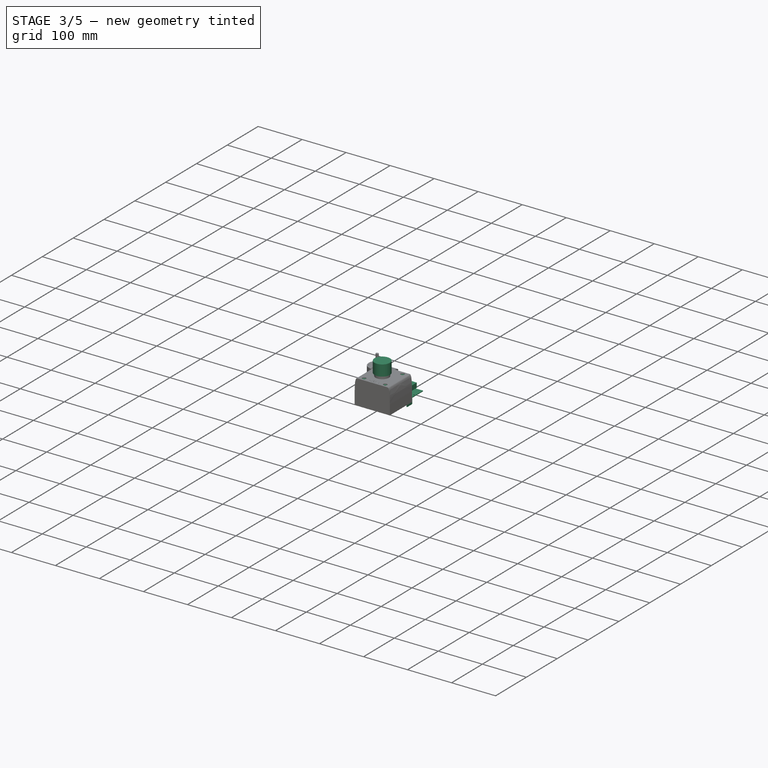
[diagram: stage 3 of 5 — iso view after this stage's code; geometry added in this stage tinted green]
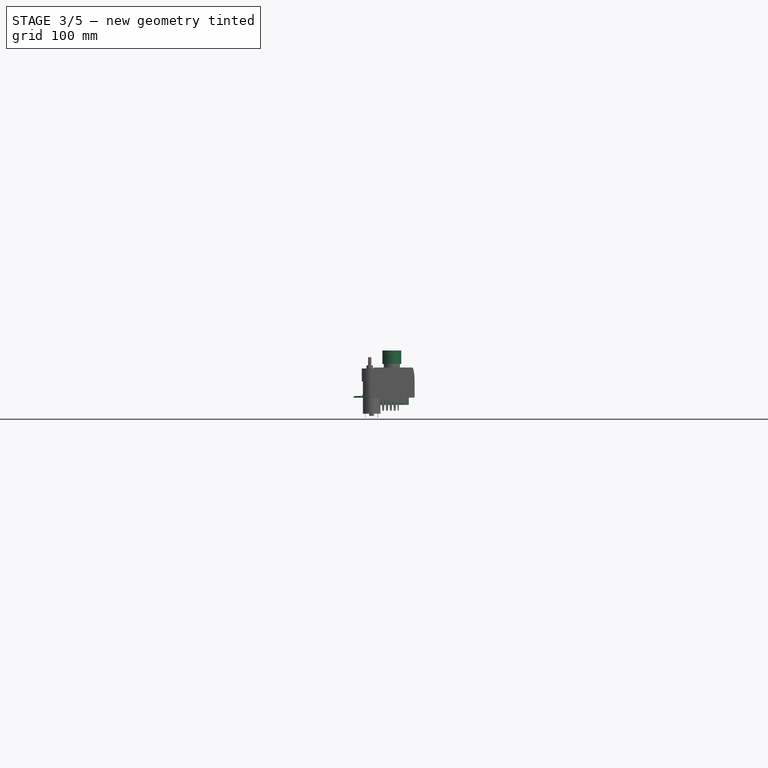
[diagram: stage 3 of 5 — front view after this stage's code; geometry added in this stage tinted green]
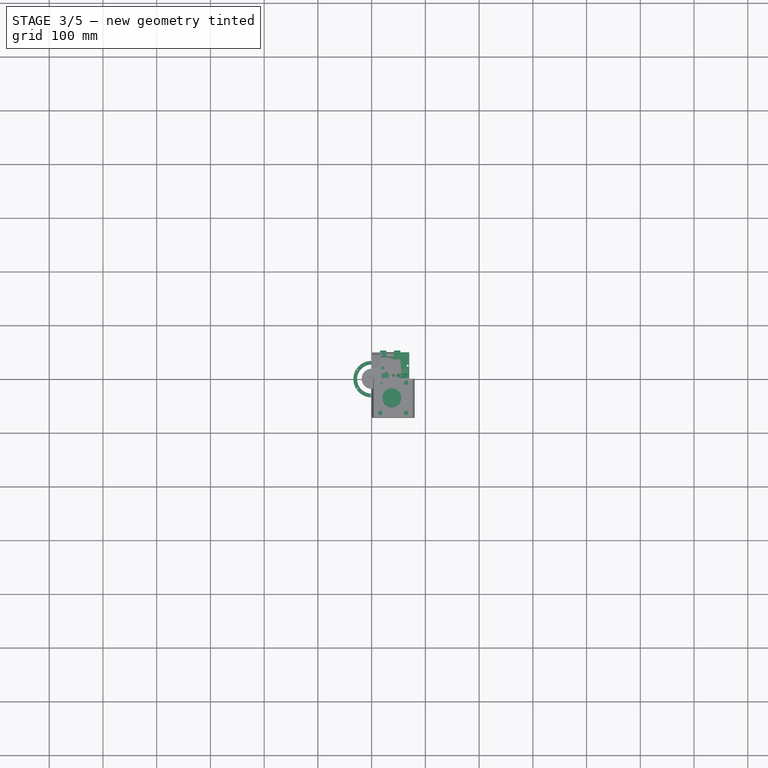
[diagram: stage 3 of 5 — top view after this stage's code; geometry added in this stage tinted green]
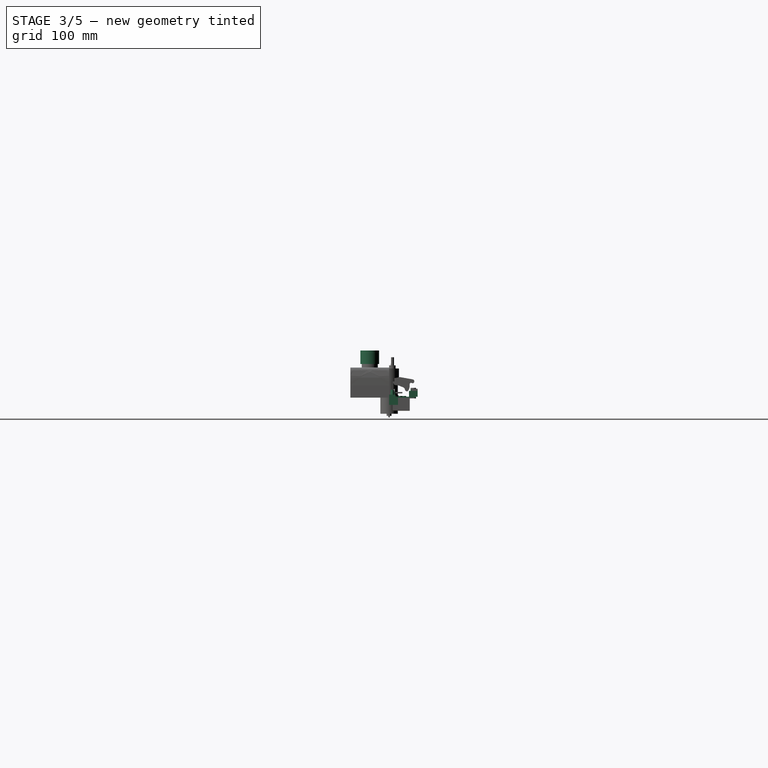
[diagram: stage 3 of 5 — right view after this stage's code; geometry added in this stage tinted green]
FEATURE [PartDesign::Body] Body010  label="RaspberryPi"
  AllowCompound = false
  Group = -> [Sketch024,Pad019,Sketch025,Pad020,Sketch026,Pad021,Sketch027,Pad022,Sketch028,Pad023,MultiTransform001,LinearPattern005,LinearPattern006,Sketch029,Pad024,Sketch030,Pad025]
  Origin = -> Origin010
  Placement = pos=(-196,344.5,26) rot=(0.57735,-0.57735,0.57735;4.18879rad)
  Tip = -> Pad025
FEATURE [Sketcher::SketchObject] Sketch031
  ArcFitTolerance = 1e-06
  AttachmentSupport = -> [XY_Plane]
  FullyConstrained = true
  MakeInternals = false
  MapMode = 5
  sketch-geometry (13):
    g0: LineSegment StartX=0 StartY=0 StartZ=0 EndX=69 EndY=0 EndZ=0
    g1: LineSegment StartX=69 StartY=0 StartZ=0 EndX=69 EndY=19 EndZ=0
    g2: LineSegment StartX=67 StartY=21 StartZ=0 EndX=9 EndY=21 EndZ=0
    g3: LineSegment StartX=9 StartY=21 StartZ=0 EndX=9 EndY=33 EndZ=0
    g4: LineSegment StartX=9 StartY=33 StartZ=0 EndX=4 EndY=33 EndZ=0
    g5: LineSegment StartX=2 StartY=31 StartZ=0 EndX=2 EndY=24.5 EndZ=0
    g6: LineSegment StartX=0 StartY=0 StartZ=0 EndX=-1e-16 EndY=22 EndZ=0
    g7: LineSegment StartX=2 StartY=24.5 StartZ=0 EndX=1 EndY=24.5 EndZ=0
    g8: LineSegment StartX=1 StartY=24.5 StartZ=0 EndX=-1e-16 EndY=22 EndZ=0
    g9: ArcOfCircle CenterX=4 CenterY=31 CenterZ=0 NormalX=0 NormalY=0 NormalZ=1 AngleXU=0 Radius=2 StartAngle=1.5708 EndAngle=3.14159
    g10: GeomPoint [constr] X=2 Y=33 Z=0
    g11: ArcOfCircle CenterX=67 CenterY=19 CenterZ=0 NormalX=0 NormalY=0 NormalZ=1 AngleXU=0 Radius=2 StartAngle=5e-16 EndAngle=1.5708
    g12: GeomPoint [constr] X=69 Y=21 Z=0
  constraints (34):
    c: Distance(g0) = 69
    c: Coincident(g0,g-1)
    c: PointOnObject(g0,g-1)
    c: Distance(g1,g12) = 21
    c: Coincident(g1,g0)
    c: Vertical(g1)
    c: Distance(g2,g12) = 60
    c: Horizontal(g2)
    c: Distance(g3) = 12
    c: Coincident(g3,g2)
    c: Vertical(g3)
    c: Distance(g4,g10) = 7
    c: Coincident(g4,g3)
    c: Horizontal(g4)
    c: Distance(g5,g10) = 8.5
    c: Vertical(g5)
    c: Distance(g6) = 22
    c: Coincident(g6,g0)
    c: PointOnObject(g6,g-2)
    c: Distance(g7) = 1
    c: Coincident(g7,g5)
    c: Horizontal(g7)
    c: Coincident(g8,g7)
    c: Coincident(g8,g6)
    c: PointOnObject(g10,g4)
    c: PointOnObject(g10,g5)
    c: Tangent(g4,g9) = -1.5708
    c: Tangent(g5,g9) = -1.5708
    c: DistanceX(g5,g9) = 2
    c: PointOnObject(g12,g1)
    c: PointOnObject(g12,g2)
    c: Tangent(g1,g11) = -1.5708
    c: Tangent(g2,g11) = -1.5708
    c: DistanceX(g11,g1) = 2
FEATURE [PartDesign::Pad] Pad026
  Direction = (0,0,1)
  Length = 1.5
  Length2 = 10
  Profile = -> Sketch031
  ReferenceAxis = -> Sketch031 [N_Axis]
  Refine = true
  Suppressed = false
  Type = 0
FEATURE [Sketcher::SketchObject] Sketch032
  ArcFitTolerance = 1e-06
  AttachmentSupport = -> [Pad026]
  ExternalGeometry = -> [Pad026]
  FullyConstrained = true
  MakeInternals = false
  MapMode = 5
  Placement = pos=(0,0,1.5) rot=(0,0,1;0rad)
  sketch-geometry (7):
    g0: Circle CenterX=4 CenterY=31 CenterZ=0 NormalX=0 NormalY=0 NormalZ=1 AngleXU=0 Radius=1
    g1: ArcOfCircle CenterX=67 CenterY=19 CenterZ=0 NormalX=0 NormalY=0 NormalZ=1 AngleXU=0 Radius=1 StartAngle=4.71239 EndAngle=7.85398
    g2: ArcOfCircle CenterX=66.5 CenterY=19 CenterZ=0 NormalX=0 NormalY=0 NormalZ=1 AngleXU=0 Radius=1 StartAngle=1.5708 EndAngle=4.71239
    g3: LineSegment StartX=67 StartY=18 StartZ=0 EndX=66.5 EndY=18 EndZ=0
    g4: LineSegment StartX=67 StartY=20 StartZ=0 EndX=66.5 EndY=20 EndZ=0
    g5: GeomPoint X=65.5 Y=19 Z=0
    g6: GeomPoint X=68 Y=19 Z=0
  constraints (15):
    c: Diameter(g0) = 2
    c: Coincident(g0,g-3)
    c: Tangent(g1,g3) = 1.5708
    c: Tangent(g1,g4) = -1.5708
    c: Tangent(g2,g3) = 1.5708
    c: Tangent(g2,g4) = -1.5708
    c: Equal(g1,g2)
    c: Coincident(g1,g-4)
    c: Horizontal(g3)
    c: Diameter(g1) = 2
    c: PointOnObject(g5,g2)
    c: PointOnObject(g6,g1)
    c: Horizontal(g6,g1)
    c: Horizontal(g5,g2)
    c: DistanceX(g5,g6) = 2.5
FEATURE [PartDesign::Pocket] Pocket005
  BaseFeature = -> Pad026
  Direction = (0,0,-1)
  Length = 5
  Length2 = 5
  Profile = -> Sketch032
  ReferenceAxis = -> Sketch032 [N_Axis]
  Refine = true
  Suppressed = false
  Type = 1
FEATURE [Sketcher::SketchObject] Sketch033
  ArcFitTolerance = 1e-06
  AttachmentSupport = -> [Pocket005]
  ExternalGeometry = -> [Pocket005]
  FullyConstrained = true
  MakeInternals = false
  MapMode = 5
  Placement = pos=(0,0,0) rot=(1,0,0;3.14159rad)
  sketch-geometry (13):
    g0: LineSegment StartX=69 StartY=-16.5 StartZ=0 EndX=9 EndY=-16.5 EndZ=0
    g1: LineSegment StartX=69 StartY=0 StartZ=0 EndX=67.5 EndY=0 EndZ=0
    g2: LineSegment StartX=69 StartY=0 StartZ=0 EndX=69 EndY=-16.5 EndZ=0
    g3: LineSegment StartX=67.5 StartY=0 StartZ=0 EndX=67.5 EndY=-13.5 EndZ=0
    g4: LineSegment StartX=0 StartY=0 StartZ=0 EndX=9 EndY=0 EndZ=0
    g5: LineSegment StartX=0 StartY=0 StartZ=0 EndX=0 EndY=-22 EndZ=0
    g6: LineSegment StartX=67.5 StartY=-13.5 StartZ=0 EndX=9 EndY=-13.5 EndZ=0
    g7: LineSegment StartX=9 StartY=-33 StartZ=0 EndX=9 EndY=-16.5 EndZ=0
    g8: LineSegment StartX=9 StartY=-13.5 StartZ=0 EndX=9 EndY=0 EndZ=0
    g9: LineSegment StartX=0 StartY=-22 StartZ=0 EndX=2 EndY=-28 EndZ=0
    g10: LineSegment StartX=9 StartY=-33 StartZ=0 EndX=7 EndY=-33 EndZ=0
    g11: LineSegment StartX=7 StartY=-33 StartZ=0 EndX=7 EndY=-28 EndZ=0
    g12: LineSegment StartX=7 StartY=-28 StartZ=0 EndX=2 EndY=-28 EndZ=0
  constraints (35):
    c: Horizontal(g0)
    c: DistanceY(g-3,g0) = 4.5
    c: PointOnObject(g1,g-1)
    c: Coincident(g1,g-4)
    c: Coincident(g2,g1)
    c: PointOnObject(g2,g-4)
    c: Coincident(g3,g1)
    c: Vertical(g3)
    c: DistanceX(g1,g1) = 1.5
    c: Distance(g4) = 9
    c: Coincident(g4,g-1)
    c: PointOnObject(g4,g-1)
    c: Coincident(g5,g4)
    c: Coincident(g6,g3)
    c: Horizontal(g6)
    c: DistanceY(g0,g3) = 3
    c: Coincident(g7,g0)
    c: Vertical(g7)
    c: Coincident(g8,g6)
    c: Coincident(g8,g4)
    c: Vertical(g8)
    c: Coincident(g0,g2)
    c: Coincident(g9,g5)
    c: PointOnObject(g9,g-7)
    c: Coincident(g5,g-5)
    c: Coincident(g7,g-8)
    c: Coincident(g10,g7)
    c: PointOnObject(g10,g-8)
    c: Coincident(g11,g10)
    c: Vertical(g11)
    c: Coincident(g12,g11)
    c: Coincident(g12,g9)
    c: Horizontal(g12)
    c: DistanceY(g11,g11) = 5
    c: DistanceX(g10,g10) = 2
FEATURE [PartDesign::Pad] Pad027
  BaseFeature = -> Pocket005
  Direction = (0,0,-1)
  Length = 13.5
  Length2 = 10
  Profile = -> Sketch033
  ReferenceAxis = -> Sketch033 [N_Axis]
  Refine = true
  Suppressed = false
  Type = 0
FEATURE [PartDesign::Fillet] Fillet001
  Base = -> Pad027 [Edge61]
  BaseFeature = -> Pad027
  Radius = 2
  Refine = true
  SupportTransform = false
  Suppressed = false
  UseAllEdges = false
FEATURE [PartDesign::Chamfer] Chamfer004
  Angle = 45
  Base = -> Fillet001 [Edge19]
  BaseFeature = -> Fillet001
  ChamferType = 1
  FlipDirection = false
  Refine = true
  Size = 5.5
  Size2 = 11
  SupportTransform = false
  Suppressed = false
  UseAllEdges = false
FEATURE [Sketcher::SketchObject] Sketch034
  ArcFitTolerance = 1e-06
  AttachmentSupport = -> [Chamfer004]
  ExternalGeometry = -> [Chamfer004]
  FullyConstrained = true
  MakeInternals = false
  MapMode = 5
  Placement = pos=(9,0,0) rot=(0.57735,0.57735,0.57735;2.0944rad)
  sketch-geometry (3):
    g0: Circle CenterX=25.5 CenterY=-6 CenterZ=0 NormalX=0 NormalY=0 NormalZ=1 AngleXU=0 Radius=7.5
    g1: GeomPoint X=25.5 Y=1.5 Z=0
    g2: GeomPoint X=33 Y=-6 Z=0
  constraints (7):
    c: Diameter(g0) = 15
    c: PointOnObject(g1,g0)
    c: Vertical(g1,g0)
    c: PointOnObject(g1,g-3)
    c: PointOnObject(g2,g0)
    c: Horizontal(g2,g0)
    c: Vertical(g-4,g2)
FEATURE [PartDesign::Pad] Pad028
  BaseFeature = -> Chamfer004
  Direction = (1,0,0)
  Length = 10.5
  Length2 = 10
  Profile = -> Sketch034
  ReferenceAxis = -> Sketch034 [N_Axis]
  Refine = true
  Suppressed = false
  Type = 0
FEATURE [PartDesign::Body] Body011  label="Printer-Heatunit"
  AllowCompound = false
  Group = -> [Sketch031,Pad026,Sketch032,Pocket005,Sketch033,Pad027,Fillet001,Chamfer004,Sketch034,Pad028,Sketch035,Pad029,Sketch036,Pad030,Sketch037,Pad031,Sketch038,Pad032,Sketch039,Pad033]
  Origin = -> Origin011
  Placement = pos=(-196,277,54.5) rot=(0.707107,0.707107,0;3.14159rad)
  Tip = -> Pad033
FEATURE [Sketcher::SketchObject] Sketch040
  ArcFitTolerance = 1e-06
  AttachmentSupport = -> [XY_Plane001]
  FullyConstrained = true
  MakeInternals = false
  MapMode = 5
  sketch-geometry (10):
    g0: LineSegment StartX=0 StartY=0 StartZ=0 EndX=70 EndY=0 EndZ=0
    g1: LineSegment StartX=70 StartY=0 StartZ=0 EndX=70 EndY=50 EndZ=0
    g2: LineSegment StartX=70 StartY=50 StartZ=0 EndX=0 EndY=50 EndZ=0
    g3: LineSegment StartX=0 StartY=50 StartZ=0 EndX=0 EndY=0 EndZ=0
    g4: Circle CenterX=3 CenterY=25 CenterZ=0 NormalX=0 NormalY=0 NormalZ=1 AngleXU=0 Radius=1.75
    g5: Circle CenterX=67 CenterY=25 CenterZ=0 NormalX=0 NormalY=0 NormalZ=1 AngleXU=0 Radius=1.75
    g6: LineSegment [constr] StartX=3 StartY=25 StartZ=0 EndX=0 EndY=25 EndZ=0
    g7: LineSegment [constr] StartX=67 StartY=25 StartZ=0 EndX=70 EndY=25 EndZ=0
    g8: LineSegment [constr] StartX=3 StartY=25 StartZ=0 EndX=3 EndY=50 EndZ=0
    g9: LineSegment [constr] StartX=3 StartY=25 StartZ=0 EndX=3 EndY=0 EndZ=0
  constraints (29):
    c: Coincident(g0,g1)
    c: Coincident(g1,g2)
    c: Coincident(g2,g3)
    c: Coincident(g3,g0)
    c: Horizontal(g0)
    c: Horizontal(g2)
    c: Vertical(g1)
    c: Vertical(g3)
    c: Distance(g1,g3) = 70
    c: Distance(g0,g2) = 50
    c: Coincident(g0,g-1)
    c: Equal(g5,g4)
    c: Horizontal(g4,g5)
    c: Coincident(g6,g4)
    c: PointOnObject(g6,g3)
    c: Horizontal(g6)
    c: Coincident(g7,g5)
    c: PointOnObject(g7,g1)
    c: Horizontal(g7)
    c: Equal(g7,g6)
    c: Diameter(g4) = 3.5
    c: Coincident(g8,g4)
    c: PointOnObject(g8,g2)
    c: Vertical(g8)
    c: Coincident(g9,g4)
    c: PointOnObject(g9,g0)
    c: Vertical(g9)
    c: Equal(g9,g8)
    c: DistanceX(g6,g6) = 3
FEATURE [PartDesign::Pad] Pad034
  Direction = (0,0,1)
  Length = 1.5
  Length2 = 10
  Profile = -> Sketch040
  ReferenceAxis = -> Sketch040 [N_Axis]
  Refine = true
  Suppressed = false
  Type = 0
FEATURE [Sketcher::SketchObject] Sketch041
  ArcFitTolerance = 1e-06
  AttachmentSupport = -> [Pad034]
  ExternalGeometry = -> [Pad034]
  FullyConstrained = true
  MakeInternals = false
  MapMode = 5
  Placement = pos=(0,0,1.5) rot=(0,0,1;0rad)
  sketch-geometry (4):
    g0: LineSegment StartX=15.5 StartY=53 StartZ=0 EndX=15.5 EndY=40 EndZ=0
    g1: LineSegment StartX=15.5 StartY=40 StartZ=0 EndX=27.5 EndY=40 EndZ=0
    g2: LineSegment StartX=27.5 StartY=40 StartZ=0 EndX=27.5 EndY=53 EndZ=0
    g3: LineSegment StartX=27.5 StartY=53 StartZ=0 EndX=15.5 EndY=53 EndZ=0
  constraints (12):
    c: Coincident(g0,g1)
    c: Coincident(g1,g2)
    c: Coincident(g2,g3)
    c: Coincident(g3,g0)
    c: Vertical(g0)
    c: Vertical(g2)
    c: Horizontal(g1)
    c: Horizontal(g3)
    c: Distance(g0,g2) = 12
    c: Distance(g1,g3) = 13
    c: DistanceX(g-3,g0) = 15.5
    c: DistanceY(g-3,g0) = 3
FEATURE [PartDesign::Pad] Pad035
  BaseFeature = -> Pad034
  Direction = (0,0,1)
  Length = 15
  Length2 = 10
  Profile = -> Sketch041
  ReferenceAxis = -> Sketch041 [N_Axis]
  Refine = true
  Suppressed = false
  Type = 0
FEATURE [Sketcher::SketchObject] Sketch042
  ArcFitTolerance = 1e-06
  AttachmentSupport = -> [Pad035]
  ExternalGeometry = -> [Pad035]
  FullyConstrained = true
  MakeInternals = false
  MapMode = 5
  Placement = pos=(0,53,0) rot=(0,0.707107,0.707107;3.14159rad)
  sketch-geometry (7):
    g0: LineSegment StartX=-26.5 StartY=15.5 StartZ=0 EndX=-26.5 EndY=1.5 EndZ=0
    g1: LineSegment StartX=-26.5 StartY=1.5 StartZ=0 EndX=-16.5 EndY=1.5 EndZ=0
    g2: LineSegment StartX=-16.5 StartY=1.5 StartZ=0 EndX=-16.5 EndY=15.5 EndZ=0
    g3: LineSegment StartX=-16.5 StartY=15.5 StartZ=0 EndX=-26.5 EndY=15.5 EndZ=0
    g4: LineSegment [constr] StartX=-27.5 StartY=1.5 StartZ=0 EndX=-26.5 EndY=1.5 EndZ=0
    g5: LineSegment [constr] StartX=-16.5 StartY=1.5 StartZ=0 EndX=-15.5 EndY=1.5 EndZ=0
    g6: LineSegment [constr] StartX=-16.5 StartY=15.5 StartZ=0 EndX=-16.5 EndY=16.5 EndZ=0
  constraints (19):
    c: Coincident(g0,g1)
    c: Coincident(g1,g2)
    c: Coincident(g2,g3)
    c: Coincident(g3,g0)
    c: Vertical(g0)
    c: Vertical(g2)
    c: Horizontal(g1)
    c: Horizontal(g3)
    c: PointOnObject(g1,g-4)
    c: Coincident(g4,g-4)
    c: Coincident(g4,g0)
    c: Coincident(g5,g1)
    c: Coincident(g5,g-4)
    c: Coincident(g6,g2)
    c: PointOnObject(g6,g-3)
    c: Vertical(g6)
    c: Equal(g6,g5)
    c: Equal(g5,g4)
    c: DistanceY(g6,g6) = 1
FEATURE [PartDesign::Pocket] Pocket006
  BaseFeature = -> Pad035
  Direction = (0,-1,2e-16)
  Length = 10
  Length2 = 5
  Profile = -> Sketch042
  ReferenceAxis = -> Sketch042 [N_Axis]
  Refine = true
  Suppressed = false
  Type = 0
FEATURE [Sketcher::SketchObject] Sketch043
  ArcFitTolerance = 1e-06
  AttachmentSupport = -> [Pocket006]
  ExternalGeometry = -> [Pocket006]
  FullyConstrained = true
  MakeInternals = false
  MapMode = 5
  Placement = pos=(0,0,1.5) rot=(0,0,1;0rad)
  sketch-geometry (4):
    g0: LineSegment StartX=41.5 StartY=53 StartZ=0 EndX=41.5 EndY=37 EndZ=0
    g1: LineSegment StartX=41.5 StartY=37 StartZ=0 EndX=53.5 EndY=37 EndZ=0
    g2: LineSegment StartX=53.5 StartY=37 StartZ=0 EndX=53.5 EndY=53 EndZ=0
    g3: LineSegment StartX=53.5 StartY=53 StartZ=0 EndX=41.5 EndY=53 EndZ=0
  constraints (12):
    c: Coincident(g0,g1)
    c: Coincident(g1,g2)
    c: Coincident(g2,g3)
    c: Coincident(g3,g0)
    c: Vertical(g0)
    c: Vertical(g2)
    c: Horizontal(g1)
    c: Horizontal(g3)
    c: Distance(g0,g2) = 12
    c: Distance(g1,g3) = 16
    c: DistanceX(g2,g-3) = 16.5
    c: DistanceY(g-3,g2) = 3
FEATURE [PartDesign::Pad] Pad036
  BaseFeature = -> Pocket006
  Direction = (0,0,1)
  Length = 11
  Length2 = 10
  Profile = -> Sketch043
  ReferenceAxis = -> Sketch043 [N_Axis]
  Refine = true
  Suppressed = false
  Type = 0
FEATURE [Sketcher::SketchObject] Sketch044
  ArcFitTolerance = 1e-06
  AttachmentSupport = -> [Pad036]
  ExternalGeometry = -> [Pad036]
  FullyConstrained = true
  MakeInternals = false
  MapMode = 5
  Placement = pos=(0,53,0) rot=(0,0.707107,0.707107;3.14159rad)
  sketch-geometry (20):
    g0: LineSegment StartX=-52.5 StartY=2.5 StartZ=0 EndX=-42.5 EndY=2.5 EndZ=0
    g1: LineSegment StartX=-42.5 StartY=2.5 StartZ=0 EndX=-42.5 EndY=9.5 EndZ=0
    g2: LineSegment StartX=-42.5 StartY=9.5 StartZ=0 EndX=-44.5 EndY=11.5 EndZ=0
    g3: LineSegment StartX=-44.5 StartY=11.5 StartZ=0 EndX=-50.5 EndY=11.5 EndZ=0
    g4: LineSegment StartX=-50.5 StartY=11.5 StartZ=0 EndX=-52.5 EndY=9.5 EndZ=0
    g5: LineSegment StartX=-52.5 StartY=9.5 StartZ=0 EndX=-52.5 EndY=2.5 EndZ=0
    g6: LineSegment [constr] StartX=-50.5 StartY=11.5 StartZ=0 EndX=-50.5 EndY=12.5 EndZ=0
    g7: LineSegment [constr] StartX=-52.5 StartY=2.5 StartZ=0 EndX=-52.5 EndY=1.5 EndZ=0
    g8: LineSegment [constr] StartX=-52.5 StartY=1.5 StartZ=0 EndX=-53.5 EndY=1.5 EndZ=0
    g9: LineSegment [constr] StartX=-52.5 StartY=9.5 StartZ=0 EndX=-50.5 EndY=9.5 EndZ=0
    g10: LineSegment [constr] StartX=-50.5 StartY=9.5 StartZ=0 EndX=-50.5 EndY=11.5 EndZ=0
    g11: LineSegment [constr] StartX=-42.5 StartY=2.5 StartZ=0 EndX=-41.5 EndY=2.5 EndZ=0
    g12: LineSegment StartX=-49.5 StartY=8.5 StartZ=0 EndX=-49.5 EndY=5.5 EndZ=0
    g13: LineSegment StartX=-49.5 StartY=5.5 StartZ=0 EndX=-45.5 EndY=5.5 EndZ=0
    g14: LineSegment StartX=-45.5 StartY=5.5 StartZ=0 EndX=-45.5 EndY=8.5 EndZ=0
    g15: LineSegment StartX=-45.5 StartY=8.5 StartZ=0 EndX=-49.5 EndY=8.5 EndZ=0
    g16: LineSegment [constr] StartX=-49.5 StartY=5.5 StartZ=0 EndX=-49.5 EndY=2.5 EndZ=0
    g17: LineSegment [constr] StartX=-49.5 StartY=5.5 StartZ=0 EndX=-52.5 EndY=5.5 EndZ=0
    g18: LineSegment [constr] StartX=-45.5 StartY=8.5 StartZ=0 EndX=-45.5 EndY=11.5 EndZ=0
    g19: LineSegment [constr] StartX=-45.5 StartY=8.5 StartZ=0 EndX=-42.5 EndY=8.5 EndZ=0
  constraints (58):
    c: Horizontal(g0)
    c: Coincident(g0,g1)
    c: Vertical(g1)
    c: Coincident(g1,g2)
    c: Coincident(g2,g3)
    c: Horizontal(g3)
    c: Coincident(g3,g4)
    c: Coincident(g4,g5)
    c: Coincident(g5,g0)
    c: Vertical(g5)
    c: Equal(g4,g2)
    c: Horizontal(g4,g1)
    c: Coincident(g6,g3)
    c: PointOnObject(g6,g-3)
    c: Vertical(g6)
    c: Coincident(g7,g0)
    c: PointOnObject(g7,g-4)
    c: Vertical(g7)
    c: Coincident(g8,g7)
    c: Coincident(g8,g-4)
    c: Equal(g8,g7)
    c: Equal(g7,g6)
    c: DistanceY(g6,g6) = 1
    c: Coincident(g9,g4)
    c: Horizontal(g9)
    c: Coincident(g10,g9)
    c: Coincident(g10,g3)
    c: Vertical(g10)
    c: Equal(g10,g9)
    c: DistanceY(g10,g10) = 2
    c: Coincident(g11,g0)
    c: PointOnObject(g11,g-5)
    c: Horizontal(g11)
    c: Equal(g11,g7)
    c: Coincident(g12,g13)
    c: Coincident(g13,g14)
    c: Coincident(g14,g15)
    c: Coincident(g15,g12)
    c: Vertical(g12)
    c: Vertical(g14)
    c: Horizontal(g13)
    c: Horizontal(g15)
    c: Coincident(g16,g12)
    c: PointOnObject(g16,g0)
    c: Vertical(g16)
    c: Coincident(g17,g12)
    c: PointOnObject(g17,g5)
    c: Horizontal(g17)
    c: Coincident(g18,g14)
    c: PointOnObject(g18,g3)
    c: Coincident(g19,g14)
    c: PointOnObject(g19,g1)
    c: Horizontal(g19)
    c: Vertical(g18)
    c: Equal(g18,g19)
    c: Equal(g19,g17)
    c: Equal(g17,g16)
    c: DistanceX(g19,g19) = 3
FEATURE [PartDesign::Pocket] Pocket007
  BaseFeature = -> Pad036
  Direction = (0,-1,2e-16)
  Length = 15
  Length2 = 5
  Profile = -> Sketch044
  ReferenceAxis = -> Sketch044 [N_Axis]
  Refine = true
  Suppressed = false
  Type = 0
FEATURE [Sketcher::SketchObject] Sketch045
  ArcFitTolerance = 1e-06
  AttachmentSupport = -> [Pocket007]
  ExternalGeometry = -> [Pocket007]
  FullyConstrained = true
  MakeInternals = false
  MapMode = 5
  Placement = pos=(0,0,1.5) rot=(0,0,1;0rad)
  sketch-geometry (4):
    g0: LineSegment StartX=55.5 StartY=12 StartZ=0 EndX=55.5 EndY=0 EndZ=0
    g1: LineSegment StartX=55.5 StartY=0 StartZ=0 EndX=67.5 EndY=0 EndZ=0
    g2: LineSegment StartX=67.5 StartY=0 StartZ=0 EndX=67.5 EndY=12 EndZ=0
    g3: LineSegment StartX=67.5 StartY=12 StartZ=0 EndX=55.5 EndY=12 EndZ=0
  constraints (12):
    c: Coincident(g0,g1)
    c: Coincident(g1,g2)
    c: Coincident(g2,g3)
    c: Coincident(g3,g0)
    c: Vertical(g0)
    c: Vertical(g2)
    c: Horizontal(g1)
    c: Horizontal(g3)
    c: Equal(g3,g0)
    c: DistanceX(g3,g3) = 12
    c: PointOnObject(g1,g-1)
    c: DistanceX(g1,g-3) = 2.5
FEATURE [PartDesign::Pad] Pad037
  BaseFeature = -> Pocket007
  Direction = (0,0,1)
  Length = 4
  Length2 = 10
  Profile = -> Sketch045
  ReferenceAxis = -> Sketch045 [N_Axis]
  Refine = true
  Suppressed = false
  Type = 0
FEATURE [Sketcher::SketchObject] Sketch046
  ArcFitTolerance = 1e-06
  AttachmentSupport = -> [Pad037]
  ExternalGeometry = -> [Pad037]
  FullyConstrained = true
  MakeInternals = false
  MapMode = 5
  Placement = pos=(0,0,5.5) rot=(0,0,1;0rad)
  sketch-geometry (1):
    g0: Circle CenterX=61.5 CenterY=6 CenterZ=0 NormalX=0 NormalY=0 NormalZ=1 AngleXU=0 Radius=3.5
  constraints (2):
    c: Symmetric(g-3,g-4,g0)
    c: Diameter(g0) = 7
FEATURE [Sketcher::SketchObject] Sketch047
  ArcFitTolerance = 1e-06
  AttachmentOffset = pos=(0,0,9) rot=(0,0,1;0rad)
  AttachmentSupport = -> [Pad037]
  ExternalGeometry = -> [Pad037]
  FullyConstrained = true
  MakeInternals = false
  MapMode = 5
  Placement = pos=(0,0,14.5) rot=(0,0,1;0rad)
  sketch-geometry (1):
    g0: Circle CenterX=61.5 CenterY=6 CenterZ=0 NormalX=0 NormalY=0 NormalZ=1 AngleXU=0 Radius=3
  constraints (2):
    c: Symmetric(g-3,g-4,g0)
    c: Diameter(g0) = 6
FEATURE [PartDesign::AdditiveLoft] AdditiveLoft
  BaseFeature = -> Pad037
  Closed = false
  Profile = -> Sketch046
  Refine = true
  Ruled = false
  Sections = -> [Sketch047]
  Suppressed = false
FEATURE [Sketcher::SketchObject] Sketch048
  ArcFitTolerance = 1e-06
  AttachmentSupport = -> [AdditiveLoft]
  ExternalGeometry = -> [AdditiveLoft]
  FullyConstrained = true
  MakeInternals = false
  MapMode = 5
  Placement = pos=(0,0,1.5) rot=(0,0,1;0rad)
  sketch-geometry (6):
    g0: Circle CenterX=49.5 CenterY=6.5 CenterZ=0 NormalX=0 NormalY=0 NormalZ=1 AngleXU=0 Radius=2.5
    g1: Circle CenterX=40.5 CenterY=6.5 CenterZ=0 NormalX=0 NormalY=0 NormalZ=1 AngleXU=0 Radius=2.5
    g2: GeomPoint [constr] X=43 Y=6.5 Z=0
    g3: GeomPoint [constr] X=47 Y=6.5 Z=0
    g4: GeomPoint [constr] X=49.5 Y=4 Z=0
    g5: GeomPoint [constr] X=52 Y=6.5 Z=0
  constraints (14):
    c: Equal(g1,g0)
    c: Horizontal(g1,g0)
    c: Diameter(g0) = 5
    c: PointOnObject(g2,g1)
    c: PointOnObject(g3,g0)
    c: Horizontal(g1,g2)
    c: Horizontal(g2,g3)
    c: DistanceX(g2,g3) = 4
    c: PointOnObject(g4,g0)
    c: Vertical(g4,g0)
    c: PointOnObject(g5,g0)
    c: Horizontal(g5,g0)
    c: DistanceX(g5,g-3) = 18
    c: DistanceY(g-3,g4) = 4
FEATURE [PartDesign::Pad] Pad038
  BaseFeature = -> AdditiveLoft
  Direction = (0,0,1)
  Length = 8.5
  Length2 = 10
  Profile = -> Sketch048
  ReferenceAxis = -> Sketch048 [N_Axis]
  Refine = true
  Suppressed = false
  Type = 0
FEATURE [PartDesign::Fillet] Fillet002
  Base = -> Pad038 [Edge75,Edge73]
  BaseFeature = -> Pad038
  Radius = 2.5
  Refine = true
  SupportTransform = false
  Suppressed = false
  UseAllEdges = false
FEATURE [Sketcher::SketchObject] Sketch049
  ArcFitTolerance = 1e-06
  AttachmentSupport = -> [Fillet002]
  FullyConstrained = true
  MakeInternals = false
  MapMode = 5
  Placement = pos=(0,0,1.5) rot=(0,0,1;0rad)
  sketch-geometry (4):
    g0: LineSegment StartX=18.5 StartY=10.5 StartZ=0 EndX=18.5 EndY=2.5 EndZ=0
    g1: LineSegment StartX=18.5 StartY=2.5 StartZ=0 EndX=31.5 EndY=2.5 EndZ=0
    g2: LineSegment StartX=31.5 StartY=2.5 StartZ=0 EndX=31.5 EndY=10.5 EndZ=0
    g3: LineSegment StartX=31.5 StartY=10.5 StartZ=0 EndX=18.5 EndY=10.5 EndZ=0
  constraints (12):
    c: Coincident(g0,g1)
    c: Coincident(g1,g2)
    c: Coincident(g2,g3)
    c: Coincident(g3,g0)
    c: Vertical(g0)
    c: Vertical(g2)
    c: Horizontal(g1)
    c: Horizontal(g3)
    c: Distance(g0,g2) = 13
    c: Distance(g1,g3) = 8
    c: DistanceY(g-1,g1) = 2.5
    c: DistanceX(g-1,g0) = 18.5
FEATURE [PartDesign::Pad] Pad039
  BaseFeature = -> Fillet002
  Direction = (0,0,1)
  Length = 10
  Length2 = 10
  Profile = -> Sketch049
  ReferenceAxis = -> Sketch049 [N_Axis]
  Refine = true
  Suppressed = false
  Type = 0
FEATURE [PartDesign::Body] Body012  label="Printer-PCB"
  AllowCompound = false
  Group = -> [Sketch040,Pad034,Sketch041,Pad035,Sketch042,Pocket006,Sketch043,Pad036,Sketch044,Pocket007,Sketch045,Pad037,Sketch046,Sketch047,AdditiveLoft,Sketch048,Pad038,Fillet002,Sketch049,Pad039,Sketch050,Pad040,Chamfer005]
  Origin = -> Origin012
  Placement = pos=(-192,346,142.5) rot=(-0.57735,0.57735,-0.57735;2.0944rad)
  Tip = -> Chamfer005
FEATURE [Sketcher::SketchObject] Sketch051
  ArcFitTolerance = 1e-06
  AttachmentSupport = -> [XY_Plane]
  FullyConstrained = true
  MakeInternals = false
  MapMode = 5
  sketch-geometry (2):
    g0: Circle CenterX=0 CenterY=0 CenterZ=0 NormalX=0 NormalY=0 NormalZ=1 AngleXU=0 Radius=27
    g1: Circle CenterX=0 CenterY=0 CenterZ=0 NormalX=0 NormalY=0 NormalZ=1 AngleXU=0 Radius=34
  constraints (4):
    c: Diameter(g0) = 54
    c: Coincident(g0,g-1)
    c: Diameter(g1) = 68
    c: Coincident(g1,g0)
FEATURE [PartDesign::Pad] Pad041
  Direction = (0,0,1)
  Length = 1.5
  Length2 = 10
  Profile = -> Sketch051
  ReferenceAxis = -> Sketch051 [N_Axis]
  Refine = true
  Suppressed = false
  Type = 0
FEATURE [Sketcher::SketchObject] Sketch052
  ArcFitTolerance = 1e-06
  AttachmentSupport = -> [Pad041]
  ExternalGeometry = -> [Pad041]
  FullyConstrained = true
  MakeInternals = false
  MapMode = 5
  Placement = pos=(0,0,0) rot=(1,0,0;3.14159rad)
  sketch-geometry (21):
    g0: LineSegment StartX=-4 StartY=32.5 StartZ=0 EndX=-4 EndY=30.5 EndZ=0
    g1: LineSegment StartX=-4 StartY=30.5 StartZ=0 EndX=-2.8 EndY=30.5 EndZ=0
    g2: LineSegment StartX=-2.8 StartY=30.5 StartZ=0 EndX=-2.8 EndY=32.5 EndZ=0
    g3: LineSegment StartX=-2.8 StartY=32.5 StartZ=0 EndX=-4 EndY=32.5 EndZ=0
    g4: LineSegment StartX=-1.73333 StartY=32.5 StartZ=0 EndX=-1.73333 EndY=30.5 EndZ=0
    g5: LineSegment StartX=-1.73333 StartY=30.5 StartZ=0 EndX=-0.533333 EndY=30.5 EndZ=0
    g6: LineSegment StartX=-0.533333 StartY=30.5 StartZ=0 EndX=-0.533333 EndY=32.5 EndZ=0
    g7: LineSegment StartX=-0.533333 StartY=32.5 StartZ=0 EndX=-1.73333 EndY=32.5 EndZ=0
    g8: LineSegment StartX=0.533333 StartY=32.5 StartZ=0 EndX=0.533333 EndY=30.5 EndZ=0
    g9: LineSegment StartX=0.533333 StartY=30.5 StartZ=0 EndX=1.73333 EndY=30.5 EndZ=0
    g10: LineSegment StartX=1.73333 StartY=30.5 StartZ=0 EndX=1.73333 EndY=32.5 EndZ=0
    g11: LineSegment StartX=1.73333 StartY=32.5 StartZ=0 EndX=0.533333 EndY=32.5 EndZ=0
    g12: LineSegment StartX=2.8 StartY=32.5 StartZ=0 EndX=2.8 EndY=30.5 EndZ=0
    g13: LineSegment StartX=2.8 StartY=30.5 StartZ=0 EndX=4 EndY=30.5 EndZ=0
    g14: LineSegment StartX=4 StartY=30.5 StartZ=0 EndX=4 EndY=32.5 EndZ=0
    g15: LineSegment StartX=4 StartY=32.5 StartZ=0 EndX=2.8 EndY=32.5 EndZ=0
    g16: LineSegment [constr] StartX=-2.8 StartY=32.5 StartZ=0 EndX=-1.73333 EndY=32.5 EndZ=0
    g17: LineSegment [constr] StartX=-0.533333 StartY=32.5 StartZ=0 EndX=0.533333 EndY=32.5 EndZ=0
    g18: LineSegment [constr] StartX=1.73333 StartY=32.5 StartZ=0 EndX=2.8 EndY=32.5 EndZ=0
    g19: GeomPoint [constr] X=0 Y=32.5 Z=0
    g20: GeomPoint [constr] X=0 Y=34 Z=0
  constraints (57):
    c: Coincident(g0,g1)
    c: Coincident(g1,g2)
    c: Coincident(g2,g3)
    c: Coincident(g3,g0)
    c: Vertical(g0)
    c: Vertical(g2)
    c: Horizontal(g1)
    c: Horizontal(g3)
    c: DistanceX(g3,g3) = 1.2
    c: DistanceY(g0,g0) = 2
    c: Coincident(g4,g5)
    c: Coincident(g5,g6)
    c: Coincident(g6,g7)
    c: Coincident(g7,g4)
    c: Vertical(g4)
    c: Vertical(g6)
    c: Horizontal(g5)
    c: Horizontal(g7)
    c: Coincident(g8,g9)
    c: Coincident(g9,g10)
    c: Coincident(g10,g11)
    c: Coincident(g11,g8)
    c: Vertical(g8)
    c: Vertical(g10)
    c: Horizontal(g9)
    c: Horizontal(g11)
    c: Coincident(g12,g13)
    c: Coincident(g13,g14)
    c: Coincident(g14,g15)
    c: Coincident(g15,g12)
    c: Vertical(g12)
    c: Vertical(g14)
    c: Horizontal(g13)
    c: Horizontal(g15)
    c: Equal(g2,g4)
    c: Equal(g4,g8)
    c: Equal(g8,g12)
    c: Equal(g3,g7)
    c: Equal(g7,g11)
    c: Equal(g11,g15)
    c: Horizontal(g2,g4)
    c: Horizontal(g4,g8)
    c: Horizontal(g8,g12)
    c: Coincident(g16,g2)
    c: Coincident(g16,g4)
    c: Coincident(g17,g6)
    c: Coincident(g17,g8)
    c: Coincident(g18,g10)
    c: Coincident(g18,g12)
    c: Equal(g16,g17)
    c: Equal(g17,g18)
    c: DistanceX(g0,g14) = 8
    c: Symmetric(g17,g17,g19)
    c: PointOnObject(g19,g-2)
    c: PointOnObject(g20,g-2)
    c: PointOnObject(g20,g-3)
    c: DistanceY(g19,g20) = 1.5
FEATURE [PartDesign::Pad] Pad042
  BaseFeature = -> Pad041
  Direction = (0,0,-1)
  Length = 0.1
  Length2 = 10
  Profile = -> Sketch052
  ReferenceAxis = -> Sketch052 [N_Axis]
  Refine = true
  Suppressed = false
  Type = 0
FEATURE [Sketcher::SketchObject] Sketch053
  ArcFitTolerance = 1e-06
  AttachmentSupport = -> [Pad042]
  FullyConstrained = true
  MakeInternals = false
  MapMode = 5
  Placement = pos=(0,0,1.5) rot=(0,0,1;0rad)
  sketch-geometry (8):
    g0: Circle CenterX=-26.5 CenterY=17.5 CenterZ=0 NormalX=0 NormalY=0 NormalZ=1 AngleXU=0 Radius=1
    g1: Circle CenterX=26.5 CenterY=17.5 CenterZ=0 NormalX=0 NormalY=0 NormalZ=1 AngleXU=0 Radius=1
    g2: Circle CenterX=26.5 CenterY=-17.5 CenterZ=0 NormalX=0 NormalY=0 NormalZ=1 AngleXU=0 Radius=1
    g3: Circle CenterX=-26.5 CenterY=-17.5 CenterZ=0 NormalX=0 NormalY=0 NormalZ=1 AngleXU=0 Radius=1
    g4: GeomPoint X=-27.5 Y=17.5 Z=0
    g5: GeomPoint X=27.5 Y=17.5 Z=0
    g6: GeomPoint X=26.5 Y=18.5 Z=0
    g7: GeomPoint X=26.5 Y=-18.5 Z=0
  constraints (19):
    c: Equal(g0,g1)
    c: Equal(g1,g2)
    c: Equal(g2,g3)
    c: Horizontal(g0,g1)
    c: Vertical(g0,g3)
    c: Horizontal(g3,g2)
    c: Vertical(g2,g1)
    c: Diameter(g1) = 2
    c: Symmetric(g0,g2,g-1)
    c: PointOnObject(g4,g0)
    c: Horizontal(g4,g0)
    c: PointOnObject(g5,g1)
    c: Horizontal(g5,g1)
    c: DistanceX(g4,g5) = 55
    c: PointOnObject(g6,g1)
    c: Vertical(g6,g1)
    c: PointOnObject(g7,g2)
    c: Vertical(g7,g2)
    c: DistanceY(g7,g6) = 37
FEATURE [PartDesign::Pocket] Pocket008
  BaseFeature = -> Pad042
  Direction = (0,0,-1)
  Length = 5
  Length2 = 5
  Profile = -> Sketch053
  ReferenceAxis = -> Sketch053 [N_Axis]
  Refine = true
  Suppressed = false
  Type = 1
FEATURE [Sketcher::SketchObject] Sketch054
  ArcFitTolerance = 1e-06
  AttachmentSupport = -> [Pocket008]
  ExternalGeometry = -> [Pocket008]
  FullyConstrained = true
  MakeInternals = false
  MapMode = 5
  Placement = pos=(0,0,1.5) rot=(0,0,1;0rad)
  sketch-geometry (7):
    g0: LineSegment StartX=-2.5 StartY=32 StartZ=0 EndX=-2.5 EndY=27 EndZ=0
    g1: LineSegment StartX=-2.5 StartY=27 StartZ=0 EndX=2.5 EndY=27 EndZ=0
    g2: LineSegment StartX=2.5 StartY=27 StartZ=0 EndX=2.5 EndY=32 EndZ=0
    g3: LineSegment StartX=2.5 StartY=32 StartZ=0 EndX=-2.5 EndY=32 EndZ=0
    g4: GeomPoint X=0 Y=34 Z=0
    g5: GeomPoint X=0 Y=27 Z=0
    g6: GeomPoint [constr] X=0 Y=27 Z=0
  constraints (16):
    c: Coincident(g0,g1)
    c: Coincident(g1,g2)
    c: Coincident(g2,g3)
    c: Coincident(g3,g0)
    c: Vertical(g0)
    c: Vertical(g2)
    c: Horizontal(g1)
    c: Horizontal(g3)
    c: Distance(g0,g2) = 5
    c: Distance(g1,g3) = 5
    c: PointOnObject(g4,g-3)
    c: PointOnObject(g5,g-4)
    c: PointOnObject(g5,g-2)
    c: PointOnObject(g4,g-2)
    c: Symmetric(g1,g1,g6)
    c: Coincident(g5,g6)
FEATURE [PartDesign::Pad] Pad043
  BaseFeature = -> Pocket008
  Direction = (0,0,1)
  Length = 1.5
  Length2 = 10
  Profile = -> Sketch054
  ReferenceAxis = -> Sketch054 [N_Axis]
  Refine = true
  Suppressed = false
  Type = 0
FEATURE [PartDesign::PolarPattern] PolarPattern
  Angle = 360
  Axis = -> Sketch054 [N_Axis]
  BaseFeature = -> Pad043
  Mode = 0
  Occurrences = 16
  Offset = 120
  Originals = -> [Pad043]
  Refine = true
  Suppressed = false
  TransformMode = 0
FEATURE [Sketcher::SketchObject] Sketch058
  ArcFitTolerance = 1e-06
  AttachmentSupport = -> [Pad045]
  ExternalGeometry = -> [Pad045]
  FullyConstrained = true
  MakeInternals = false
  MapMode = 5
  Placement = pos=(0,0,62.5) rot=(0,0,1;3.14159rad)
  sketch-geometry (1):
    g0: Circle CenterX=-37.5 CenterY=36 CenterZ=0 NormalX=0 NormalY=0 NormalZ=1 AngleXU=0 Radius=17.5
  constraints (2):
    c: Diameter(g0) = 35
    c: Coincident(g0,g-3)
FEATURE [PartDesign::Pad] Pad046
  BaseFeature = -> Pad045
  Direction = (0,0,1)
  Length = 25
  Length2 = 10
  Placement = pos=(0,0,0) rot=(1,0,0;1.5708rad)
  Profile = -> Sketch058
  ReferenceAxis = -> Sketch058 [N_Axis]
  Refine = true
  Suppressed = false
  Type = 0
FEATURE [Sketcher::SketchObject] Sketch059
  ArcFitTolerance = 1e-06
  AttachmentSupport = -> [Pad046]
  ExternalGeometry = -> [Pad046]
  FullyConstrained = true
  MakeInternals = false
  MapMode = 5
  Placement = pos=(0,2.46e-14,56) rot=(0,0,1;3.14159rad)
  sketch-geometry (8):
    g0: Circle CenterX=-16 CenterY=64 CenterZ=0 NormalX=0 NormalY=0 NormalZ=1 AngleXU=0 Radius=4.25
    g1: LineSegment [constr] StartX=-16 StartY=64 StartZ=0 EndX=0 EndY=64 EndZ=0
    g2: LineSegment [constr] StartX=-16 StartY=64 StartZ=0 EndX=-16 EndY=72 EndZ=0
    g3: Circle CenterX=-64 CenterY=8 CenterZ=0 NormalX=0 NormalY=0 NormalZ=1 AngleXU=0 Radius=4.25
    g4: LineSegment [constr] StartX=-64 StartY=8 StartZ=0 EndX=-64 EndY=0 EndZ=0
    g5: LineSegment [constr] StartX=-64 StartY=8 StartZ=0 EndX=-80 EndY=8 EndZ=0
    g6: Circle CenterX=-64 CenterY=64 CenterZ=0 NormalX=0 NormalY=0 NormalZ=1 AngleXU=0 Radius=4.25
    g7: Circle CenterX=-16 CenterY=8 CenterZ=0 NormalX=0 NormalY=0 NormalZ=1 AngleXU=0 Radius=4.25
  constraints (24):
    c: Coincident(g1,g0)
    c: PointOnObject(g1,g-2)
    c: Horizontal(g1)
    c: Coincident(g2,g0)
    c: Vertical(g2)
    c: Horizontal(g2,g-3)
    c: Coincident(g4,g3)
    c: PointOnObject(g4,g-1)
    c: Vertical(g4)
    c: Coincident(g5,g3)
    c: Horizontal(g5)
    c: Vertical(g5,g-3)
    c: DistanceY(g2,g2) = 8
    c: DistanceX(g1,g1) = 16
    c: Equal(g1,g5)
    c: Equal(g4,g2)
    c: Diameter(g3) = 8.5
    c: Equal(g0,g3)
    c: Equal(g6,g0)
    c: Equal(g6,g7)
    c: Horizontal(g6,g0)
    c: Vertical(g6,g3)
    c: Vertical(g7,g0)
    c: Horizontal(g7,g3)
FEATURE [PartDesign::Pocket] Pocket010
  BaseFeature = -> Pad046
  Direction = (0,0,-1)
  Length = 2
  Length2 = 5
  Placement = pos=(0,0,0) rot=(1,0,0;1.5708rad)
  Profile = -> Sketch059
  ReferenceAxis = -> Sketch059 [N_Axis]
  Refine = true
  Suppressed = false
  Type = 0
FEATURE [Sketcher::SketchObject] Sketch060
  ArcFitTolerance = 1e-06
  AttachmentSupport = -> [Pocket010]
  ExternalGeometry = -> [Pocket010]
  FullyConstrained = true
  MakeInternals = false
  MapMode = 5
  Placement = pos=(0,0,54) rot=(0,0,1;3.14159rad)
  sketch-geometry (4):
    g0: Circle CenterX=-16 CenterY=8 CenterZ=0 NormalX=0 NormalY=0 NormalZ=1 AngleXU=0 Radius=2
    g1: Circle CenterX=-64 CenterY=8 CenterZ=0 NormalX=0 NormalY=0 NormalZ=1 AngleXU=0 Radius=2
    g2: Circle CenterX=-64 CenterY=64 CenterZ=0 NormalX=0 NormalY=0 NormalZ=1 AngleXU=0 Radius=2
    g3: Circle CenterX=-16 CenterY=64 CenterZ=0 NormalX=0 NormalY=0 NormalZ=1 AngleXU=0 Radius=2
  constraints (8):
    c: Diameter(g0) = 4
    c: Coincident(g0,g-6)
    c: Coincident(g1,g-3)
    c: Coincident(g2,g-4)
    c: Coincident(g3,g-5)
    c: Equal(g3,g2)
    c: Equal(g2,g1)
    c: Equal(g1,g0)
FEATURE [PartDesign::Pocket] Pocket011
  BaseFeature = -> Pocket010
  Direction = (0,0,-1)
  Length = 25
  Length2 = 5
  Placement = pos=(0,0,0) rot=(1,0,0;1.5708rad)
  Profile = -> Sketch060
  ReferenceAxis = -> Sketch060 [N_Axis]
  Refine = true
  Suppressed = false
  Type = 0
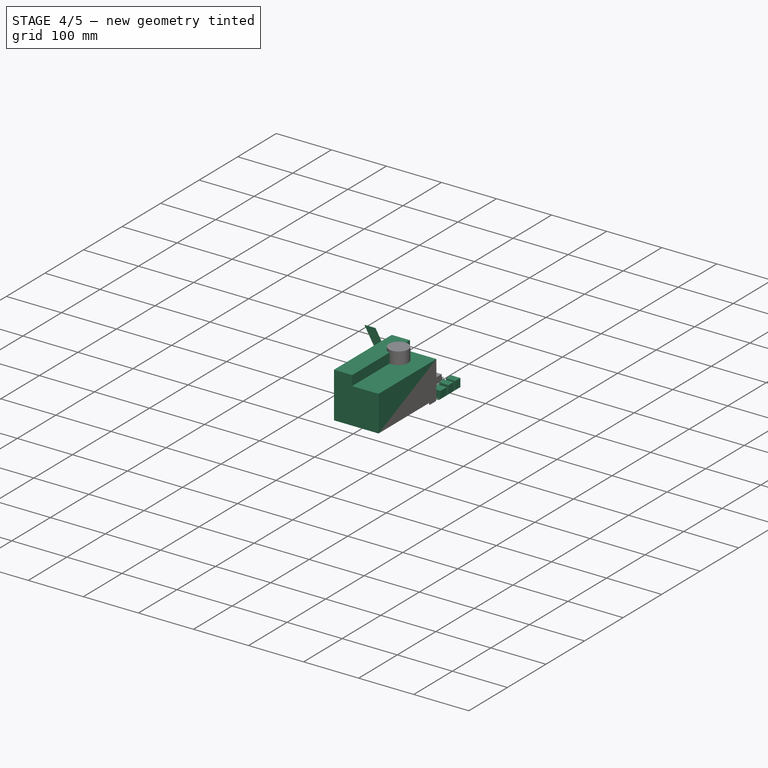
[diagram: stage 4 of 5 — iso view after this stage's code; geometry added in this stage tinted green]
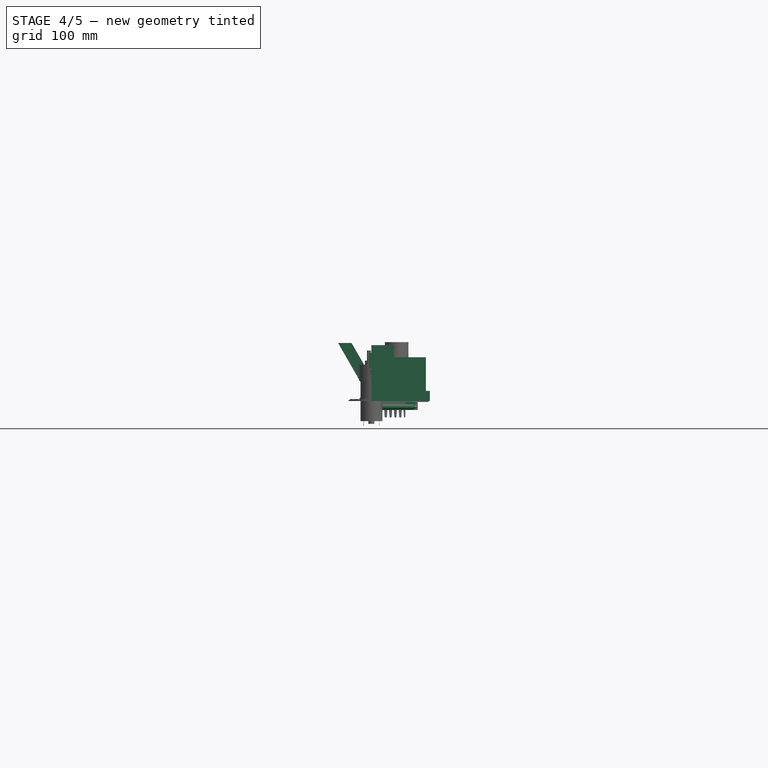
[diagram: stage 4 of 5 — front view after this stage's code; geometry added in this stage tinted green]
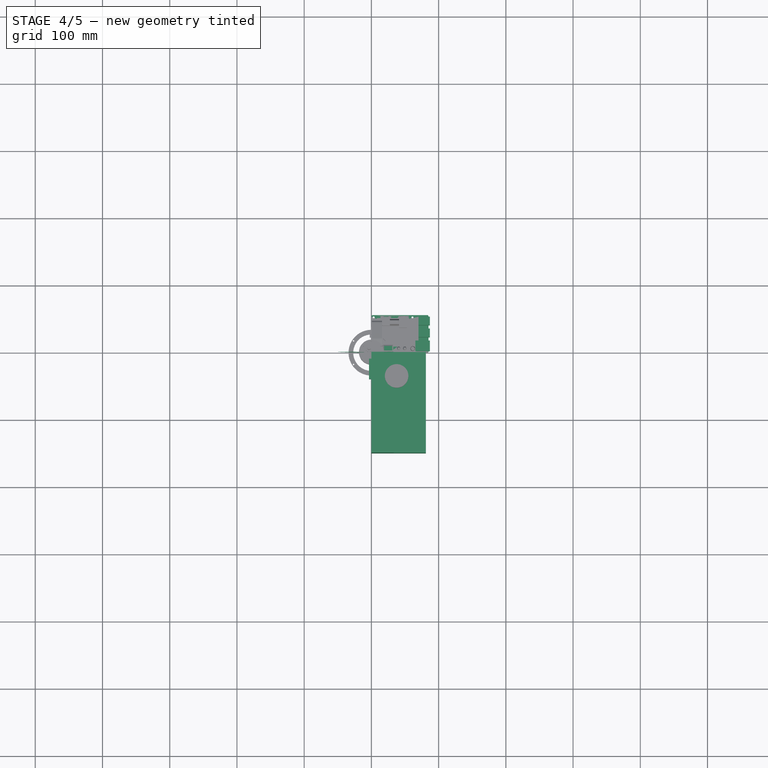
[diagram: stage 4 of 5 — top view after this stage's code; geometry added in this stage tinted green]
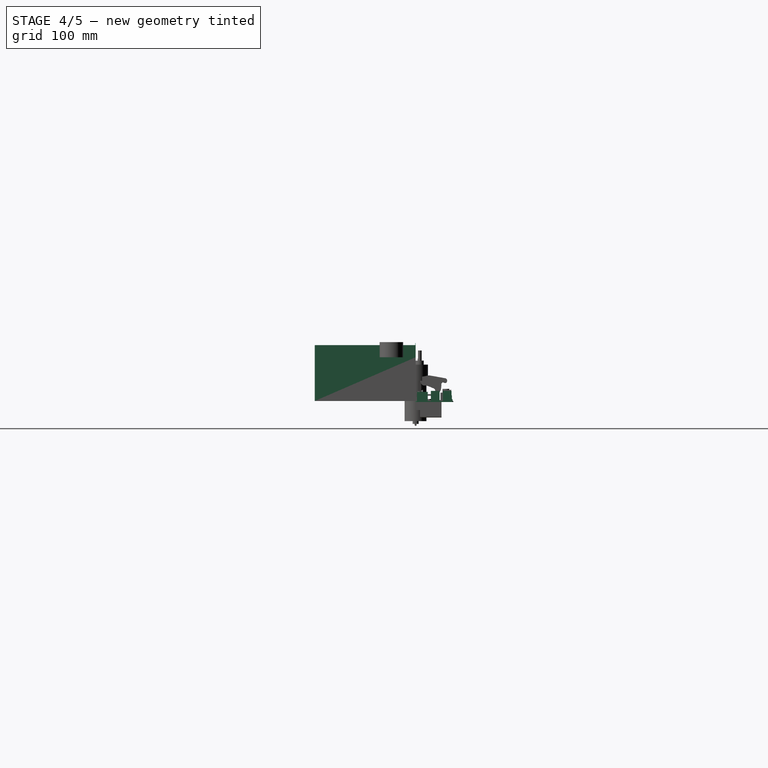
[diagram: stage 4 of 5 — right view after this stage's code; geometry added in this stage tinted green]
FEATURE [PartDesign::Body] Body007  label="PWM-PCB"
  AllowCompound = false
  Group = -> [Sketch009,Pad008,Sketch010,Pad009,Sketch011,Pad010,LinearPattern,Sketch012,Pad011,Fillet,Sketch013,Pad012,Sketch014,Pad013,MultiTransform,LinearPattern001,LinearPattern002,LinearPattern003,LinearPattern004,Sketch015,Pad014,Chamfer,Chamfer001,Sketch016,Pocket001]
  Origin = -> Origin007
  Placement = pos=(-195,295,160.5) rot=(-0.707107,0,-0.707107;3.14159rad)
  Tip = -> Pocket001
FEATURE [Sketcher::SketchObject] Sketch017
  ArcFitTolerance = 1e-06
  AttachmentSupport = -> [XZ_Plane]
  FullyConstrained = true
  MakeInternals = false
  MapMode = 5
  Placement = pos=(0,0,0) rot=(1,0,0;1.5708rad)
  sketch-geometry (6):
    g0: LineSegment StartX=0 StartY=0 StartZ=0 EndX=0 EndY=83 EndZ=0
    g1: LineSegment StartX=0 StartY=83 StartZ=0 EndX=33 EndY=83 EndZ=0
    g2: LineSegment StartX=33 StartY=83 StartZ=0 EndX=33 EndY=65 EndZ=0
    g3: LineSegment StartX=33 StartY=65 StartZ=0 EndX=81 EndY=65 EndZ=0
    g4: LineSegment StartX=81 StartY=65 StartZ=0 EndX=81 EndY=0 EndZ=0
    g5: LineSegment StartX=81 StartY=0 StartZ=0 EndX=0 EndY=0 EndZ=0
  constraints (17):
    c: Vertical(g0)
    c: Coincident(g0,g1)
    c: Horizontal(g1)
    c: Coincident(g1,g2)
    c: Coincident(g2,g3)
    c: Horizontal(g3)
    c: Coincident(g3,g4)
    c: Vertical(g4)
    c: Coincident(g4,g5)
    c: Coincident(g5,g0)
    c: Horizontal(g5)
    c: Vertical(g2)
    c: DistanceX(g1,g1) = 33
    c: DistanceX(g5,g5) = 81
    c: DistanceY(g0,g0) = 83
    c: DistanceY(g4,g4) = 65
    c: Coincident(g0,g-1)
FEATURE [PartDesign::Pad] Pad015
  Direction = (0,-1,2e-16)
  Length = 150
  Length2 = 10
  Placement = pos=(0,0,0) rot=(1,0,0;1.5708rad)
  Profile = -> Sketch017
  ReferenceAxis = -> Sketch017 [N_Axis]
  Refine = true
  Suppressed = false
  Type = 0
FEATURE [Sketcher::SketchObject] Sketch018
  ArcFitTolerance = 1e-06
  AttachmentSupport = -> [Pad015]
  ExternalGeometry = -> [Pad015]
  FullyConstrained = true
  MakeInternals = false
  MapMode = 5
  Placement = pos=(0,0,0) rot=(0.707107,0,-0.707107;3.14159rad)
  sketch-geometry (11):
    g0: Circle CenterX=-41.5 CenterY=90 CenterZ=0 NormalX=0 NormalY=0 NormalZ=1 AngleXU=0 Radius=17.5
    g1: ArcOfCircle CenterX=-41.5 CenterY=90 CenterZ=0 NormalX=0 NormalY=0 NormalZ=1 AngleXU=0 Radius=43.5 StartAngle=2.05498 EndAngle=2.65741
    g2: LineSegment StartX=-80 StartY=110.248 StartZ=0 EndX=-80 EndY=69.7515 EndZ=0
    g3: LineSegment StartX=-61.7485 StartY=51.5 StartZ=0 EndX=-21.2515 EndY=51.5 EndZ=0
    g4: LineSegment StartX=-3 StartY=69.7515 StartZ=0 EndX=-3 EndY=110.248 EndZ=0
    g5: LineSegment StartX=-21.2515 StartY=128.5 StartZ=0 EndX=-61.7485 EndY=128.5 EndZ=0
    g6: ArcOfCircle CenterX=-41.5 CenterY=90 CenterZ=0 NormalX=0 NormalY=0 NormalZ=1 AngleXU=0 Radius=43.5 StartAngle=0.484179 EndAngle=1.08662
    g7: ArcOfCircle CenterX=-41.5 CenterY=90 CenterZ=0 NormalX=0 NormalY=0 NormalZ=1 AngleXU=0 Radius=43.5 StartAngle=3.62577 EndAngle=4.22821
    g8: ArcOfCircle CenterX=-41.5 CenterY=90 CenterZ=0 NormalX=0 NormalY=0 NormalZ=1 AngleXU=0 Radius=43.5 StartAngle=5.19657 EndAngle=5.79901
    g9: LineSegment [constr] StartX=-3 StartY=110.248 StartZ=0 EndX=-2.44e-14 EndY=110.248 EndZ=0
    g10: LineSegment [constr] StartX=-80 StartY=110.248 StartZ=0 EndX=-83 EndY=110.248 EndZ=0
  constraints (37):
    c: Diameter(g0) = 35
    c: Diameter(g1) = 87
    c: Coincident(g1,g0)
    c: Vertical(g2)
    c: Vertical(g4)
    c: Horizontal(g3)
    c: Horizontal(g5)
    c: Coincident(g1,g5)
    c: PointOnObject(g4,g6)
    c: Coincident(g5,g6)
    c: Equal(g1,g6)
    c: PointOnObject(g6,g4)
    c: Coincident(g1,g6)
    c: Coincident(g4,g8)
    c: PointOnObject(g3,g8)
    c: PointOnObject(g2,g7)
    c: Coincident(g1,g2)
    c: PointOnObject(g7,g2)
    c: Coincident(g1,g7)
    c: Coincident(g7,g3)
    c: PointOnObject(g8,g3)
    c: Coincident(g7,g8)
    c: Equal(g7,g1)
    c: Equal(g6,g8)
    c: Equal(g2,g5)
    c: Equal(g5,g4)
    c: Equal(g4,g3)
    c: DistanceX(g1,g4) = 77
    c: Coincident(g9,g4)
    c: PointOnObject(g9,g-4)
    c: Horizontal(g9)
    c: Coincident(g10,g1)
    c: PointOnObject(g10,g-3)
    c: Horizontal(g10)
    c: Equal(g10,g9)
    c: DistanceX(g9,g9) = 3
    c: DistanceY(g1,g-3) = 21.5
FEATURE [PartDesign::Pocket] Pocket002
  BaseFeature = -> Pad015
  Direction = (1,0,2e-16)
  Length = 5
  Length2 = 5
  Placement = pos=(0,0,0) rot=(1,0,0;1.5708rad)
  Profile = -> Sketch018
  ReferenceAxis = -> Sketch018 [N_Axis]
  Refine = true
  Suppressed = false
  Type = 0
FEATURE [Sketcher::SketchObject] Sketch019
  ArcFitTolerance = 1e-06
  AttachmentSupport = -> [Pocket002]
  ExternalGeometry = -> [Pocket002]
  FullyConstrained = true
  MakeInternals = false
  MapMode = 5
  Placement = pos=(0,0,0) rot=(0.707107,0,-0.707107;3.14159rad)
  sketch-geometry (4):
    g0: LineSegment StartX=-71.5 StartY=40.5 StartZ=0 EndX=-71.5 EndY=10 EndZ=0
    g1: LineSegment StartX=-71.5 StartY=10 StartZ=0 EndX=-48.2 EndY=10 EndZ=0
    g2: LineSegment StartX=-48.2 StartY=10 StartZ=0 EndX=-48.2 EndY=40.5 EndZ=0
    g3: LineSegment StartX=-48.2 StartY=40.5 StartZ=0 EndX=-71.5 EndY=40.5 EndZ=0
  constraints (12):
    c: Coincident(g0,g1)
    c: Coincident(g1,g2)
    c: Coincident(g2,g3)
    c: Coincident(g3,g0)
    c: Vertical(g0)
    c: Vertical(g2)
    c: Horizontal(g1)
    c: Horizontal(g3)
    c: Distance(g0,g2) = 23.3
    c: Distance(g1,g3) = 30.5
    c: DistanceY(g-1,g0) = 10
    c: DistanceX(g-3,g0) = 11.5
FEATURE [PartDesign::Pad] Pad016
  BaseFeature = -> Pocket002
  Direction = (-1,0,-2e-16)
  Length = 3.5
  Length2 = 10
  Placement = pos=(0,0,0) rot=(1,0,0;1.5708rad)
  Profile = -> Sketch019
  ReferenceAxis = -> Sketch019 [N_Axis]
  Refine = true
  Suppressed = false
  Type = 0
FEATURE [Sketcher::SketchObject] Sketch020
  ArcFitTolerance = 1e-06
  AttachmentSupport = -> [Pad016]
  ExternalGeometry = -> [Pad016]
  FullyConstrained = true
  MakeInternals = false
  MapMode = 5
  Placement = pos=(-3.5,0,0) rot=(0.707107,0,-0.707107;3.14159rad)
  sketch-geometry (28):
    g0: LineSegment StartX=-68.5 StartY=37.5 StartZ=0 EndX=-68.5 EndY=13 EndZ=0
    g1: LineSegment StartX=-68.5 StartY=13 StartZ=0 EndX=-55.45 EndY=13 EndZ=0
    g2: LineSegment StartX=-55.45 StartY=13 StartZ=0 EndX=-51.2 EndY=17.25 EndZ=0
    g3: LineSegment StartX=-51.2 StartY=17.25 StartZ=0 EndX=-51.2 EndY=33.25 EndZ=0
    g4: LineSegment StartX=-51.2 StartY=33.25 StartZ=0 EndX=-55.45 EndY=37.5 EndZ=0
    g5: LineSegment StartX=-55.45 StartY=37.5 StartZ=0 EndX=-68.5 EndY=37.5 EndZ=0
    g6: GeomPoint X=-51.2 Y=37.5 Z=0
    g7: GeomPoint X=-51.2 Y=13 Z=0
    g8: LineSegment [constr] StartX=-68.5 StartY=13 StartZ=0 EndX=-68.5 EndY=10 EndZ=0
    g9: LineSegment [constr] StartX=-68.5 StartY=13 StartZ=0 EndX=-71.5 EndY=13 EndZ=0
    g10: LineSegment [constr] StartX=-51.2 StartY=37.5 StartZ=0 EndX=-51.2 EndY=40.5 EndZ=0
    g11: LineSegment [constr] StartX=-51.2 StartY=37.5 StartZ=0 EndX=-48.2 EndY=37.5 EndZ=0
    g12: LineSegment StartX=-63.5 StartY=32.5 StartZ=0 EndX=-63.5 EndY=31 EndZ=0
    g13: LineSegment StartX=-63.5 StartY=31 StartZ=0 EndX=-60.5 EndY=31 EndZ=0
    g14: LineSegment StartX=-60.5 StartY=31 StartZ=0 EndX=-60.5 EndY=32.5 EndZ=0
    g15: LineSegment StartX=-60.5 StartY=32.5 StartZ=0 EndX=-63.5 EndY=32.5 EndZ=0
    g16: LineSegment StartX=-63.5 StartY=19.5 StartZ=0 EndX=-63.5 EndY=18 EndZ=0
    g17: LineSegment StartX=-63.5 StartY=18 StartZ=0 EndX=-60.5 EndY=18 EndZ=0
    g18: LineSegment StartX=-60.5 StartY=18 StartZ=0 EndX=-60.5 EndY=19.5 EndZ=0
    g19: LineSegment StartX=-60.5 StartY=19.5 StartZ=0 EndX=-63.5 EndY=19.5 EndZ=0
    g20: LineSegment StartX=-60.5 StartY=26 StartZ=0 EndX=-60.5 EndY=24.5 EndZ=0
    g21: LineSegment StartX=-60.5 StartY=24.5 StartZ=0 EndX=-57.5 EndY=24.5 EndZ=0
    g22: LineSegment StartX=-57.5 StartY=24.5 StartZ=0 EndX=-57.5 EndY=26 EndZ=0
    g23: LineSegment StartX=-57.5 StartY=26 StartZ=0 EndX=-60.5 EndY=26 EndZ=0
    g24: GeomPoint X=-68.5 Y=25.25 Z=0
    g25: GeomPoint X=-60.5 Y=25.25 Z=0
    g26: LineSegment [constr] StartX=-60.5 StartY=19.5 StartZ=0 EndX=-60.5 EndY=24.5 EndZ=0
    g27: LineSegment [constr] StartX=-60.5 StartY=26 StartZ=0 EndX=-60.5 EndY=31 EndZ=0
  constraints (76):
    c: Vertical(g0)
    c: Coincident(g0,g1)
    c: Horizontal(g1)
    c: Coincident(g1,g2)
    c: Coincident(g2,g3)
    c: Vertical(g3)
    c: Coincident(g3,g4)
    c: Coincident(g4,g5)
    c: Coincident(g5,g0)
    c: Horizontal(g5)
    c: Equal(g4,g2)
    c: Equal(g5,g1)
    c: Horizontal(g7,g1)
    c: Vertical(g7,g2)
    c: Horizontal(g6,g4)
    c: Vertical(g6,g3)
    c: Coincident(g8,g0)
    c: PointOnObject(g8,g-6)
    c: Vertical(g8)
    c: Coincident(g9,g0)
    c: PointOnObject(g9,g-3)
    c: Horizontal(g9)
    c: Coincident(g10,g6)
    c: PointOnObject(g10,g-4)
    c: Vertical(g10)
    c: Coincident(g11,g6)
    c: PointOnObject(g11,g-5)
    c: Horizontal(g11)
    c: Equal(g11,g10)
    c: Equal(g10,g8)
    c: Equal(g8,g9)
    c: DistanceY(g8,g8) = 3
    c: Angle(g2,g1) = 2.35619
    c: DistanceY(g3,g3) = 16
    c: Coincident(g12,g13)
    c: Coincident(g13,g14)
    c: Coincident(g14,g15)
    c: Coincident(g15,g12)
    c: Vertical(g12)
    c: Vertical(g14)
    c: Horizontal(g13)
    c: Horizontal(g15)
    c: Coincident(g16,g17)
    c: Coincident(g17,g18)
    c: Coincident(g18,g19)
    c: Coincident(g19,g16)
    c: Vertical(g16)
    c: Vertical(g18)
    c: Horizontal(g17)
    c: Horizontal(g19)
    c: Coincident(g20,g21)
    c: Coincident(g21,g22)
    c: Coincident(g22,g23)
    c: Coincident(g23,g20)
    c: Vertical(g20)
    c: Vertical(g22)
    c: Horizontal(g21)
    c: Horizontal(g23)
    c: Equal(g13,g23)
    c: Equal(g23,g19)
    c: Equal(g18,g20)
    c: Equal(g20,g14)
    c: DistanceX(g21,g21) = 3
    c: DistanceY(g22,g22) = 1.5
    c: Vertical(g12,g16)
    c: Vertical(g20,g18)
    c: Symmetric(g0,g0,g24)
    c: Symmetric(g20,g20,g25)
    c: Horizontal(g25,g24)
    c: Coincident(g26,g18)
    c: Coincident(g26,g20)
    c: Coincident(g27,g20)
    c: Coincident(g27,g13)
    c: Equal(g27,g26)
    c: DistanceX(g0,g12) = 5
    c: DistanceY(g26,g26) = 5
FEATURE [PartDesign::Pocket] Pocket003
  BaseFeature = -> Pad016
  Direction = (1,0,2e-16)
  Length = 10
  Length2 = 5
  Placement = pos=(0,0,0) rot=(1,0,0;1.5708rad)
  Profile = -> Sketch020
  ReferenceAxis = -> Sketch020 [N_Axis]
  Refine = true
  Suppressed = false
  Type = 0
FEATURE [PartDesign::Chamfer] Chamfer002
  Angle = 45
  Base = -> Pocket003 [Edge103,Edge100,Edge102,Edge98,Edge90,Edge92,Edge95,Edge94,Edge108,Edge106,Edge111,Edge110]
  BaseFeature = -> Pocket003
  ChamferType = 1
  FlipDirection = false
  Placement = pos=(0,0,0) rot=(1,0,0;1.5708rad)
  Refine = true
  Size = 1.5
  Size2 = 0.5
  SupportTransform = false
  Suppressed = false
  UseAllEdges = false
FEATURE [Sketcher::SketchObject] Sketch021
  ArcFitTolerance = 1e-06
  AttachmentSupport = -> [Chamfer002]
  ExternalGeometry = -> [Chamfer002]
  FullyConstrained = true
  MakeInternals = false
  MapMode = 5
  Placement = pos=(0,0,0) rot=(0.707107,0,-0.707107;3.14159rad)
  sketch-geometry (6):
    g0: LineSegment StartX=-45.5 StartY=35.75 StartZ=0 EndX=-45.5 EndY=14.75 EndZ=0
    g1: LineSegment StartX=-45.5 StartY=14.75 StartZ=0 EndX=-30.5 EndY=14.75 EndZ=0
    g2: LineSegment StartX=-30.5 StartY=14.75 StartZ=0 EndX=-30.5 EndY=35.75 EndZ=0
    g3: LineSegment StartX=-30.5 StartY=35.75 StartZ=0 EndX=-45.5 EndY=35.75 EndZ=0
    g4: GeomPoint [constr] X=-48.2 Y=25.25 Z=0
    g5: GeomPoint [constr] X=-45.5 Y=25.25 Z=0
  constraints (14):
    c: Coincident(g0,g1)
    c: Coincident(g1,g2)
    c: Coincident(g2,g3)
    c: Coincident(g3,g0)
    c: Vertical(g0)
    c: Vertical(g2)
    c: Horizontal(g1)
    c: Horizontal(g3)
    c: Distance(g0,g2) = 15
    c: Distance(g1,g3) = 21
    c: Symmetric(g-3,g-3,g4)
    c: Symmetric(g0,g0,g5)
    c: Horizontal(g5,g4)
    c: DistanceX(g1,g-1) = 30.5
FEATURE [PartDesign::Pad] Pad017
  BaseFeature = -> Chamfer002
  Direction = (-1,0,-2e-16)
  Length = 2
  Length2 = 10
  Placement = pos=(0,0,0) rot=(1,0,0;1.5708rad)
  Profile = -> Sketch021
  ReferenceAxis = -> Sketch021 [N_Axis]
  Refine = true
  Suppressed = false
  Type = 0
FEATURE [PartDesign::Body] Body008  label="Powersupply"
  AllowCompound = false
  Group = -> [Sketch017,Pad015,Sketch018,Pocket002,Sketch019,Pad016,Sketch020,Pocket003,Chamfer002,Sketch021,Pad017,Sketch022,Pocket004]
  Origin = -> Origin008
  Placement = pos=(-133.5,90,0) rot=(0,0,1;3.14159rad)
  Tip = -> Pocket004
FEATURE [Sketcher::SketchObject] Sketch023
  ArcFitTolerance = 1e-06
  AttachmentSupport = -> [XZ_Plane]
  FullyConstrained = true
  MakeInternals = false
  MapMode = 5
  Placement = pos=(0,0,0) rot=(1,0,0;1.5708rad)
  sketch-geometry (6):
    g0: LineSegment StartX=0 StartY=0 StartZ=0 EndX=18 EndY=0 EndZ=0
    g1: LineSegment StartX=18 StartY=0 StartZ=0 EndX=18 EndY=4 EndZ=0
    g2: LineSegment StartX=18 StartY=4 StartZ=0 EndX=-29.5 EndY=86.2724 EndZ=0
    g3: LineSegment StartX=-29.5 StartY=86.2724 StartZ=0 EndX=-49.5 EndY=86.2724 EndZ=0
    g4: LineSegment StartX=-49.5 StartY=86.2724 StartZ=0 EndX=0 EndY=0 EndZ=0
    g5: Circle CenterX=5 CenterY=8.5 CenterZ=0 NormalX=0 NormalY=0 NormalZ=1 AngleXU=0 Radius=2.5
  constraints (17):
    c: Distance(g0) = 18
    c: Coincident(g0,g-1)
    c: PointOnObject(g0,g-1)
    c: Distance(g1) = 4
    c: Coincident(g1,g0)
    c: Vertical(g1)
    c: Distance(g2) = 95
    c: Coincident(g2,g1)
    c: Distance(g3) = 20
    c: Coincident(g3,g2)
    c: Horizontal(g3)
    c: Coincident(g4,g3)
    c: Coincident(g4,g0)
    c: Angle(g2) = 2.0944
    c: Diameter(g5) = 5
    c: DistanceY(g0,g5) = 8.5
    c: DistanceX(g5,g1) = 13
FEATURE [PartDesign::Pad] Pad018
  Direction = (0,-1,2e-16)
  Length = 0.5
  Length2 = 10
  Placement = pos=(0,0,0) rot=(1,0,0;1.5708rad)
  Profile = -> Sketch023
  ReferenceAxis = -> Sketch023 [N_Axis]
  Refine = true
  Suppressed = false
  Type = 0
FEATURE [PartDesign::Chamfer] Chamfer003
  Angle = 45
  Base = -> Pad018 [Edge15]
  BaseFeature = -> Pad018
  ChamferType = 1
  FlipDirection = false
  Placement = pos=(0,0,0) rot=(1,0,0;1.5708rad)
  Refine = true
  Size = 0.2
  Size2 = 2
  SupportTransform = false
  Suppressed = false
  UseAllEdges = false
FEATURE [PartDesign::Body] Body009  label="Messer"
  AllowCompound = false
  Group = -> [Sketch023,Pad018,Chamfer003]
  Origin = -> Origin009
  Placement = pos=(-196.5,414.5,83.5) rot=(0,0,-1;4.71239rad)
  Tip = -> Chamfer003
FEATURE [Sketcher::SketchObject] Sketch024
  ArcFitTolerance = 1e-06
  AttachmentSupport = -> [XY_Plane]
  FullyConstrained = true
  MakeInternals = false
  MapMode = 5
  sketch-geometry (20):
    g0: LineSegment StartX=0 StartY=54 StartZ=0 EndX=0 EndY=2 EndZ=0
    g1: LineSegment StartX=2 StartY=0 StartZ=0 EndX=83 EndY=0 EndZ=0
    g2: LineSegment StartX=85 StartY=2 StartZ=0 EndX=85 EndY=54 EndZ=0
    g3: LineSegment StartX=83 StartY=56 StartZ=0 EndX=2 EndY=56 EndZ=0
    g4: ArcOfCircle CenterX=2 CenterY=2 CenterZ=0 NormalX=0 NormalY=0 NormalZ=1 AngleXU=0 Radius=2 StartAngle=3.14159 EndAngle=4.71239
    g5: GeomPoint [constr] X=0 Y=0 Z=0
    g6: ArcOfCircle CenterX=2 CenterY=54 CenterZ=0 NormalX=0 NormalY=0 NormalZ=1 AngleXU=0 Radius=2 StartAngle=1.5708 EndAngle=3.14159
    g7: GeomPoint [constr] X=0 Y=56 Z=0
    g8: ArcOfCircle CenterX=83 CenterY=54 CenterZ=0 NormalX=0 NormalY=0 NormalZ=1 AngleXU=0 Radius=2 StartAngle=0 EndAngle=1.5708
    g9: GeomPoint [constr] X=85 Y=56 Z=0
    g10: ArcOfCircle CenterX=83 CenterY=2 CenterZ=0 NormalX=0 NormalY=0 NormalZ=1 AngleXU=0 Radius=2 StartAngle=4.71239 EndAngle=6.28319
    g11: GeomPoint [constr] X=85 Y=0 Z=0
    g12: Circle CenterX=3.4 CenterY=3.4 CenterZ=0 NormalX=0 NormalY=0 NormalZ=1 AngleXU=0 Radius=1.4
    g13: Circle CenterX=3.4 CenterY=52.6 CenterZ=0 NormalX=0 NormalY=0 NormalZ=1 AngleXU=0 Radius=1.4
    g14: Circle CenterX=61.1 CenterY=52.6 CenterZ=0 NormalX=0 NormalY=0 NormalZ=1 AngleXU=0 Radius=1.4
    g15: Circle CenterX=61.1 CenterY=3.4 CenterZ=0 NormalX=0 NormalY=0 NormalZ=1 AngleXU=0 Radius=1.4
    g16: LineSegment [constr] StartX=61.1 StartY=54 StartZ=0 EndX=61.1 EndY=56 EndZ=0
    g17: LineSegment [constr] StartX=2 StartY=3.4 StartZ=0 EndX=0 EndY=3.4 EndZ=0
    g18: LineSegment [constr] StartX=3.4 StartY=2 StartZ=0 EndX=3.4 EndY=0 EndZ=0
    g19: LineSegment [constr] StartX=62.5 StartY=52.6 StartZ=0 EndX=85 EndY=52.6 EndZ=0
  constraints (55):
    c: Vertical(g0)
    c: Vertical(g2)
    c: Horizontal(g1)
    c: Horizontal(g3)
    c: Distance(g7,g9) = 85
    c: Distance(g5,g7) = 56
    c: PointOnObject(g5,g0)
    c: PointOnObject(g5,g1)
    c: Tangent(g0,g4) = -1.5708
    c: Tangent(g1,g4) = -1.5708
    c: PointOnObject(g7,g0)
    c: PointOnObject(g7,g3)
    c: Tangent(g0,g6) = -1.5708
    c: Tangent(g3,g6) = -1.5708
    c: PointOnObject(g9,g2)
    c: PointOnObject(g9,g3)
    c: Tangent(g2,g8) = -1.5708
    c: Tangent(g3,g8) = -1.5708
    c: PointOnObject(g11,g1)
    c: PointOnObject(g11,g2)
    c: Tangent(g1,g10) = -1.5708
    c: Tangent(g2,g10) = -1.5708
    c: Equal(g4,g6)
    c: Equal(g6,g8)
    c: Equal(g8,g10)
    c: Coincident(g5,g-1)
    c: Diameter(g4) = 4
    c: Diameter(g12) = 2.8
    c: Equal(g13,g12)
    c: Equal(g12,g15)
    c: Equal(g15,g14)
    c: Horizontal(g13,g14)
    c: Horizontal(g15,g12)
    c: Vertical(g12,g13)
    c: Vertical(g14,g15)
    c: PointOnObject(g16,g14)
    c: PointOnObject(g16,g3)
    c: Vertical(g16)
    c: Vertical(g16,g14)
    c: PointOnObject(g17,g12)
    c: PointOnObject(g17,g0)
    c: Horizontal(g17)
    c: PointOnObject(g18,g12)
    c: PointOnObject(g18,g1)
    c: Vertical(g18)
    c: Vertical(g18,g12)
    c: Horizontal(g12,g17)
    c: Equal(g16,g18)
    c: Equal(g18,g17)
    c: DistanceY(g18,g18) = 2
    c: PointOnObject(g19,g14)
    c: PointOnObject(g19,g2)
    c: Horizontal(g19)
    c: DistanceX(g19,g19) = 22.5
    c: Horizontal(g19,g14)
FEATURE [PartDesign::Pad] Pad019
  Direction = (0,0,1)
  Length = 1.5
  Length2 = 10
  Profile = -> Sketch024
  ReferenceAxis = -> Sketch024 [N_Axis]
  Refine = true
  Reversed = true
  Suppressed = false
  Type = 0
FEATURE [Sketcher::SketchObject] Sketch025
  ArcFitTolerance = 1e-06
  AttachmentSupport = -> [Pad019]
  ExternalGeometry = -> [Pad019]
  FullyConstrained = true
  MakeInternals = false
  MapMode = 5
  sketch-geometry (8):
    g0: LineSegment StartX=70 StartY=53.5 StartZ=0 EndX=70 EndY=40.5 EndZ=0
    g1: LineSegment StartX=70 StartY=40.5 StartZ=0 EndX=87 EndY=40.5 EndZ=0
    g2: LineSegment StartX=87 StartY=40.5 StartZ=0 EndX=87 EndY=53.5 EndZ=0
    g3: LineSegment StartX=87 StartY=53.5 StartZ=0 EndX=70 EndY=53.5 EndZ=0
    g4: LineSegment StartX=70 StartY=35.7 StartZ=0 EndX=70 EndY=22.7 EndZ=0
    g5: LineSegment StartX=70 StartY=22.7 StartZ=0 EndX=87 EndY=22.7 EndZ=0
    g6: LineSegment StartX=87 StartY=22.7 StartZ=0 EndX=87 EndY=35.7 EndZ=0
    g7: LineSegment StartX=87 StartY=35.7 StartZ=0 EndX=70 EndY=35.7 EndZ=0
  constraints (24):
    c: Coincident(g0,g1)
    c: Coincident(g1,g2)
    c: Coincident(g2,g3)
    c: Coincident(g3,g0)
    c: Vertical(g0)
    c: Vertical(g2)
    c: Horizontal(g1)
    c: Horizontal(g3)
    c: Coincident(g4,g5)
    c: Coincident(g5,g6)
    c: Coincident(g6,g7)
    c: Coincident(g7,g4)
    c: Vertical(g4)
    c: Vertical(g6)
    c: Horizontal(g5)
    c: Horizontal(g7)
    c: Vertical(g0,g4)
    c: Equal(g7,g3)
    c: Equal(g6,g2)
    c: DistanceX(g3,g3) = 17
    c: DistanceY(g2,g2) = 13
    c: DistanceY(g0,g-4) = 2.5
    c: DistanceX(g-3,g2) = 2
    c: DistanceY(g6,g1) = 4.8
FEATURE [PartDesign::Pad] Pad020
  BaseFeature = -> Pad019
  Direction = (0,0,1)
  Length = 15
  Length2 = 10
  Profile = -> Sketch025
  ReferenceAxis = -> Sketch025 [N_Axis]
  Refine = true
  Suppressed = false
  Type = 0
FEATURE [Sketcher::SketchObject] Sketch026
  ArcFitTolerance = 1e-06
  AttachmentSupport = -> [Pad020]
  ExternalGeometry = -> [Pad020]
  FullyConstrained = true
  MakeInternals = false
  MapMode = 5
  sketch-geometry (4):
    g0: LineSegment StartX=65.5 StartY=18 StartZ=0 EndX=65.5 EndY=2 EndZ=0
    g1: LineSegment StartX=65.5 StartY=2 StartZ=0 EndX=87 EndY=2 EndZ=0
    g2: LineSegment StartX=87 StartY=2 StartZ=0 EndX=87 EndY=18 EndZ=0
    g3: LineSegment StartX=87 StartY=18 StartZ=0 EndX=65.5 EndY=18 EndZ=0
  constraints (12):
    c: Coincident(g0,g1)
    c: Coincident(g1,g2)
    c: Coincident(g2,g3)
    c: Coincident(g3,g0)
    c: Vertical(g0)
    c: Vertical(g2)
    c: Horizontal(g1)
    c: Horizontal(g3)
    c: DistanceX(g3,g3) = 21.5
    c: DistanceY(g0,g0) = 16
    c: DistanceX(g-3,g1) = 2
    c: DistanceY(g-1,g1) = 2
FEATURE [PartDesign::Pad] Pad021
  BaseFeature = -> Pad020
  Direction = (0,0,1)
  Length = 13.5
  Length2 = 10
  Profile = -> Sketch026
  ReferenceAxis = -> Sketch026 [N_Axis]
  Refine = true
  Suppressed = false
  Type = 0
FEATURE [Sketcher::SketchObject] Sketch027
  ArcFitTolerance = 1e-06
  AttachmentSupport = -> [Pad021]
  ExternalGeometry = -> [Pad021]
  FullyConstrained = true
  MakeInternals = false
  MapMode = 5
  sketch-geometry (4):
    g0: LineSegment StartX=7 StartY=55 StartZ=0 EndX=7 EndY=52.5 EndZ=0
    g1: LineSegment StartX=7 StartY=52.5 StartZ=0 EndX=9.5 EndY=52.5 EndZ=0
    g2: LineSegment StartX=9.5 StartY=52.5 StartZ=0 EndX=9.5 EndY=55 EndZ=0
    g3: LineSegment StartX=9.5 StartY=55 StartZ=0 EndX=7 EndY=55 EndZ=0
  constraints (12):
    c: Coincident(g0,g1)
    c: Coincident(g1,g2)
    c: Coincident(g2,g3)
    c: Coincident(g3,g0)
    c: Vertical(g0)
    c: Vertical(g2)
    c: Horizontal(g1)
    c: Horizontal(g3)
    c: DistanceX(g3,g3) = 2.5
    c: Equal(g2,g3)
    c: DistanceX(g-1,g0) = 7
    c: DistanceY(g0,g-3) = 1
FEATURE [PartDesign::LinearPattern] LinearPattern005
  Direction = -> Sketch027 [H_Axis]
  Length = 47.5
  Mode = 0
  Occurrences = 20
  Offset = 2.5
  Refine = true
  Suppressed = false
  TransformMode = 0
FEATURE [PartDesign::LinearPattern] LinearPattern006
  Direction = -> Sketch027 [V_Axis]
  Length = 2.5
  Mode = 0
  Occurrences = 2
  Offset = 2.5
  Refine = true
  Reversed = true
  Suppressed = false
  TransformMode = 0
FEATURE [PartDesign::Pad] Pad022
  BaseFeature = -> Pad021
  Direction = (0,0,1)
  Length = 2.5
  Length2 = 10
  Profile = -> Sketch027
  ReferenceAxis = -> Sketch027 [N_Axis]
  Refine = true
  Suppressed = false
  Type = 0
FEATURE [Sketcher::SketchObject] Sketch028
  ArcFitTolerance = 1e-06
  AttachmentSupport = -> [Pad022]
  ExternalGeometry = -> [Pad022]
  FullyConstrained = true
  MakeInternals = false
  MapMode = 5
  Placement = pos=(0,0,2.5) rot=(0,0,1;0rad)
  sketch-geometry (5):
    g0: LineSegment StartX=8 StartY=54 StartZ=0 EndX=8 EndY=53.5 EndZ=0
    g1: LineSegment StartX=8 StartY=53.5 StartZ=0 EndX=8.5 EndY=53.5 EndZ=0
    g2: LineSegment StartX=8.5 StartY=53.5 StartZ=0 EndX=8.5 EndY=54 EndZ=0
    g3: LineSegment StartX=8.5 StartY=54 StartZ=0 EndX=8 EndY=54 EndZ=0
    g4: GeomPoint [constr] X=8.25 Y=53.75 Z=0
  constraints (12):
    c: Coincident(g0,g1)
    c: Coincident(g1,g2)
    c: Coincident(g2,g3)
    c: Coincident(g3,g0)
    c: Vertical(g0)
    c: Vertical(g2)
    c: Horizontal(g1)
    c: Horizontal(g3)
    c: Symmetric(g0,g1,g4)
    c: Symmetric(g-3,g-4,g4)
    c: Equal(g3,g2)
    c: DistanceY(g2,g2) = 0.5
FEATURE [PartDesign::Pad] Pad023
  BaseFeature = -> Pad022
  Direction = (0,0,1)
  Length = 6
  Length2 = 10
  Profile = -> Sketch028
  ReferenceAxis = -> Sketch028 [N_Axis]
  Refine = true
  Suppressed = false
  Type = 0
FEATURE [PartDesign::MultiTransform] MultiTransform001
  BaseFeature = -> Pad023
  Originals = -> [Pad022,Pad023]
  Refine = true
  Suppressed = false
  TransformMode = 0
  Transformations = -> [LinearPattern005,LinearPattern006]
FEATURE [Sketcher::SketchObject] Sketch029
  ArcFitTolerance = 1e-06
  AttachmentSupport = -> [MultiTransform001]
  FullyConstrained = true
  MakeInternals = false
  MapMode = 5
  Placement = pos=(0,0,-1.5) rot=(1,0,0;3.14159rad)
  sketch-geometry (4):
    g0: LineSegment StartX=-2.5 StartY=-22.5 StartZ=0 EndX=-2.5 EndY=-33.5 EndZ=0
    g1: LineSegment StartX=-2.5 StartY=-33.5 StartZ=0 EndX=13 EndY=-33.5 EndZ=0
    g2: LineSegment StartX=13 StartY=-33.5 StartZ=0 EndX=13 EndY=-22.5 EndZ=0
    g3: LineSegment StartX=13 StartY=-22.5 StartZ=0 EndX=-2.5 EndY=-22.5 EndZ=0
  constraints (12):
    c: Coincident(g0,g1)
    c: Coincident(g1,g2)
    c: Coincident(g2,g3)
    c: Coincident(g3,g0)
    c: Vertical(g0)
    c: Vertical(g2)
    c: Horizontal(g1)
    c: Horizontal(g3)
    c: DistanceX(g3,g3) = 15.5
    c: DistanceY(g2,g2) = 11
    c: DistanceY(g0,g-1) = 22.5
    c: DistanceX(g0,g-1) = 2.5
FEATURE [PartDesign::Pad] Pad024
  BaseFeature = -> MultiTransform001
  Direction = (0,0,-1)
  Length = 1.5
  Length2 = 10
  Profile = -> Sketch029
  ReferenceAxis = -> Sketch029 [N_Axis]
  Refine = true
  Suppressed = false
  Type = 0
FEATURE [Sketcher::SketchObject] Sketch030
  ArcFitTolerance = 1e-06
  AttachmentSupport = -> [Pad024]
  FullyConstrained = true
  MakeInternals = false
  MapMode = 5
  sketch-geometry (4):
    g0: LineSegment StartX=24 StartY=9 StartZ=0 EndX=24 EndY=-1.5 EndZ=0
    g1: LineSegment StartX=24 StartY=-1.5 StartZ=0 EndX=39 EndY=-1.5 EndZ=0
    g2: LineSegment StartX=39 StartY=-1.5 StartZ=0 EndX=39 EndY=9 EndZ=0
    g3: LineSegment StartX=39 StartY=9 StartZ=0 EndX=24 EndY=9 EndZ=0
  constraints (12):
    c: Coincident(g0,g1)
    c: Coincident(g1,g2)
    c: Coincident(g2,g3)
    c: Coincident(g3,g0)
    c: Vertical(g0)
    c: Vertical(g2)
    c: Horizontal(g1)
    c: Horizontal(g3)
    c: Distance(g0,g2) = 15
    c: Distance(g1,g3) = 10.5
    c: DistanceY(g0,g-1) = 1.5
    c: DistanceX(g-1,g0) = 24
FEATURE [PartDesign::Pad] Pad025
  BaseFeature = -> Pad024
  Direction = (0,0,1)
  Length = 6
  Length2 = 10
  Profile = -> Sketch030
  ReferenceAxis = -> Sketch030 [N_Axis]
  Refine = true
  Suppressed = false
  Type = 0
FEATURE [Sketcher::SketchObject] Sketch035
  ArcFitTolerance = 1e-06
  AttachmentSupport = -> [Pad028]
  ExternalGeometry = -> [Pad028]
  FullyConstrained = true
  MakeInternals = false
  MapMode = 5
  Placement = pos=(19.5,0,0) rot=(0.57735,0.57735,0.57735;2.0944rad)
  sketch-geometry (1):
    g0: Circle CenterX=25.5 CenterY=-6 CenterZ=0 NormalX=0 NormalY=0 NormalZ=1 AngleXU=0 Radius=2.5
  constraints (2):
    c: Diameter(g0) = 5
    c: Coincident(g0,g-3)
FEATURE [PartDesign::Pad] Pad029
  BaseFeature = -> Pad028
  Direction = (1,0,0)
  Length = 1
  Length2 = 10
  Profile = -> Sketch035
  ReferenceAxis = -> Sketch035 [N_Axis]
  Refine = true
  Suppressed = false
  Type = 0
FEATURE [Sketcher::SketchObject] Sketch036
  ArcFitTolerance = 1e-06
  AttachmentSupport = -> [Pad029]
  ExternalGeometry = -> [Pad029]
  FullyConstrained = true
  MakeInternals = false
  MapMode = 5
  Placement = pos=(9,0,0) rot=(0.57735,0.57735,0.57735;2.0944rad)
  sketch-geometry (4):
    g0: LineSegment StartX=9.5 StartY=0 StartZ=0 EndX=9.5 EndY=-13.5 EndZ=0
    g1: LineSegment StartX=9.5 StartY=-13.5 StartZ=0 EndX=11.5 EndY=-13.5 EndZ=0
    g2: LineSegment StartX=11.5 StartY=-13.5 StartZ=0 EndX=11.5 EndY=0 EndZ=0
    g3: LineSegment StartX=11.5 StartY=0 StartZ=0 EndX=9.5 EndY=0 EndZ=0
  constraints (12):
    c: Coincident(g0,g1)
    c: Coincident(g1,g2)
    c: Coincident(g2,g3)
    c: Coincident(g3,g0)
    c: Vertical(g0)
    c: Vertical(g2)
    c: Horizontal(g1)
    c: Horizontal(g3)
    c: PointOnObject(g0,g-1)
    c: PointOnObject(g1,g-3)
    c: DistanceX(g1,g1) = 2
    c: DistanceX(g0,g-5) = 11.5
FEATURE [PartDesign::Pad] Pad030
  BaseFeature = -> Pad029
  Direction = (1,0,0)
  Length = 10
  Length2 = 10
  Profile = -> Sketch036
  ReferenceAxis = -> Sketch036 [N_Axis]
  Refine = true
  Suppressed = false
  Type = 1
FEATURE [Sketcher::SketchObject] Sketch037
  ArcFitTolerance = 1e-06
  AttachmentSupport = -> [Pad030]
  ExternalGeometry = -> [Pad030]
  FullyConstrained = true
  MakeInternals = false
  MapMode = 5
  Placement = pos=(9,0,0) rot=(0.57735,0.57735,0.57735;2.0944rad)
  sketch-geometry (1):
    g0: Circle CenterX=6 CenterY=-9 CenterZ=0 NormalX=0 NormalY=0 NormalZ=1 AngleXU=0 Radius=1.75
  constraints (3):
    c: DistanceY(g0,g-3) = 9
    c: DistanceX(g-1,g0) = 6
    c: Diameter(g0) = 3.5
FEATURE [PartDesign::Pad] Pad031
  BaseFeature = -> Pad030
  Direction = (1,0,0)
  Length = 4
  Length2 = 10
  Profile = -> Sketch037
  ReferenceAxis = -> Sketch037 [N_Axis]
  Refine = true
  Suppressed = false
  Type = 0
FEATURE [Sketcher::SketchObject] Sketch038
  ArcFitTolerance = 1e-06
  AttachmentSupport = -> [Pad031]
  ExternalGeometry = -> [Pad031]
  FullyConstrained = true
  MakeInternals = false
  MapMode = 5
  Placement = pos=(13,0,0) rot=(0.57735,0.57735,0.57735;2.0944rad)
  sketch-geometry (1):
    g0: Circle CenterX=6 CenterY=-9 CenterZ=0 NormalX=0 NormalY=0 NormalZ=1 AngleXU=0 Radius=4
  constraints (2):
    c: Diameter(g0) = 8
    c: Coincident(g0,g-3)
FEATURE [PartDesign::Pad] Pad032
  BaseFeature = -> Pad031
  Direction = (1,0,0)
  Length = 50
  Length2 = 10
  Profile = -> Sketch038
  ReferenceAxis = -> Sketch038 [N_Axis]
  Refine = true
  Suppressed = false
  Type = 0
FEATURE [Sketcher::SketchObject] Sketch039
  ArcFitTolerance = 1e-06
  AttachmentSupport = -> [Pad032]
  ExternalGeometry = -> [Pad032]
  FullyConstrained = true
  MakeInternals = false
  MapMode = 5
  Placement = pos=(63,0,0) rot=(0.57735,0.57735,0.57735;2.0944rad)
  sketch-geometry (1):
    g0: Circle CenterX=6 CenterY=-9 CenterZ=0 NormalX=0 NormalY=0 NormalZ=1 AngleXU=0 Radius=1.75
  constraints (2):
    c: Diameter(g0) = 3.5
    c: Coincident(g0,g-3)
FEATURE [PartDesign::Pad] Pad033
  BaseFeature = -> Pad032
  Direction = (1,0,0)
  Length = 10
  Length2 = 10
  Profile = -> Sketch039
  ReferenceAxis = -> Sketch039 [N_Axis]
  Refine = true
  Suppressed = false
  Type = 1
FEATURE [Sketcher::SketchObject] Sketch050
  ArcFitTolerance = 1e-06
  AttachmentSupport = -> [Pad039]
  ExternalGeometry = -> [Pad039]
  FullyConstrained = true
  MakeInternals = false
  MapMode = 5
  Placement = pos=(0,0,11.5) rot=(0,0,1;0rad)
  sketch-geometry (8):
    g0: LineSegment StartX=17.5 StartY=11.5 StartZ=0 EndX=17.5 EndY=1.5 EndZ=0
    g1: LineSegment StartX=17.5 StartY=1.5 StartZ=0 EndX=32.5 EndY=1.5 EndZ=0
    g2: LineSegment StartX=32.5 StartY=1.5 StartZ=0 EndX=32.5 EndY=11.5 EndZ=0
    g3: LineSegment StartX=32.5 StartY=11.5 StartZ=0 EndX=17.5 EndY=11.5 EndZ=0
    g4: LineSegment [constr] StartX=17.5 StartY=10.5 StartZ=0 EndX=18.5 EndY=10.5 EndZ=0
    g5: LineSegment [constr] StartX=18.5 StartY=10.5 StartZ=0 EndX=18.5 EndY=11.5 EndZ=0
    g6: LineSegment [constr] StartX=31.5 StartY=2.5 StartZ=0 EndX=32.5 EndY=2.5 EndZ=0
    g7: LineSegment [constr] StartX=31.5 StartY=2.5 StartZ=0 EndX=31.5 EndY=1.5 EndZ=0
  constraints (24):
    c: Coincident(g0,g1)
    c: Coincident(g1,g2)
    c: Coincident(g2,g3)
    c: Coincident(g3,g0)
    c: Vertical(g0)
    c: Vertical(g2)
    c: Horizontal(g1)
    c: Horizontal(g3)
    c: PointOnObject(g4,g0)
    c: Coincident(g4,g-3)
    c: Coincident(g5,g4)
    c: PointOnObject(g5,g3)
    c: Vertical(g5)
    c: Coincident(g6,g-4)
    c: PointOnObject(g6,g2)
    c: Horizontal(g6)
    c: Coincident(g7,g6)
    c: PointOnObject(g7,g1)
    c: Vertical(g7)
    c: Equal(g7,g6)
    c: Equal(g6,g5)
    c: Equal(g5,g4)
    c: Horizontal(g4)
    c: DistanceX(g4,g4) = 1
FEATURE [PartDesign::Pad] Pad040
  BaseFeature = -> Pad039
  Direction = (0,0,1)
  Length = 2
  Length2 = 10
  Profile = -> Sketch050
  ReferenceAxis = -> Sketch050 [N_Axis]
  Refine = true
  Suppressed = false
  Type = 0
FEATURE [PartDesign::Chamfer] Chamfer005
  Angle = 45
  Base = -> Pad040 [Edge130,Edge133,Edge132,Edge128]
  BaseFeature = -> Pad040
  ChamferType = 1
  FlipDirection = false
  Refine = true
  Size = 1
  Size2 = 1.5
  SupportTransform = false
  Suppressed = false
  UseAllEdges = false
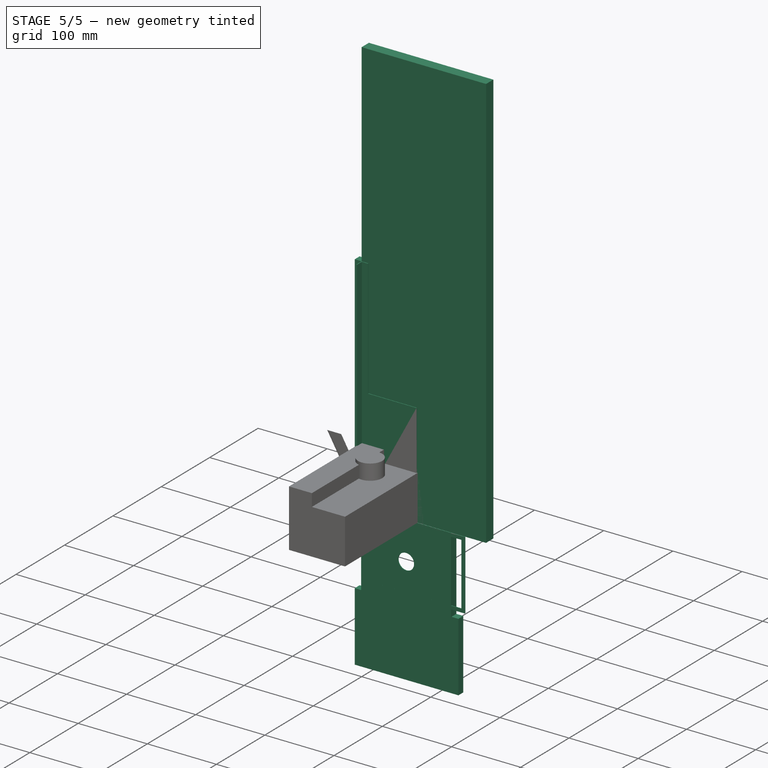
[diagram: stage 5 of 5 — iso view after this stage's code; geometry added in this stage tinted green]
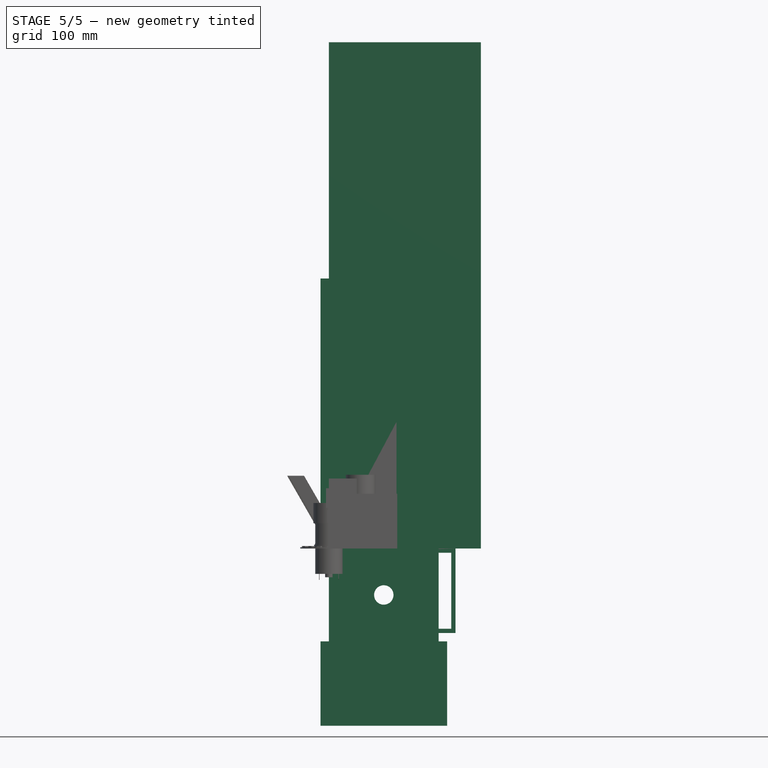
[diagram: stage 5 of 5 — front view after this stage's code; geometry added in this stage tinted green]
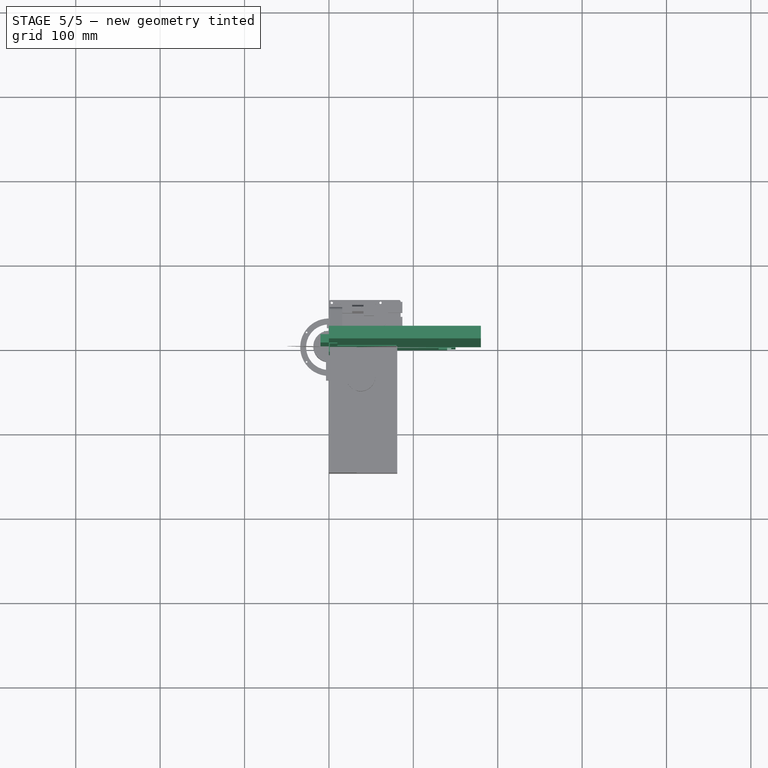
[diagram: stage 5 of 5 — top view after this stage's code; geometry added in this stage tinted green]
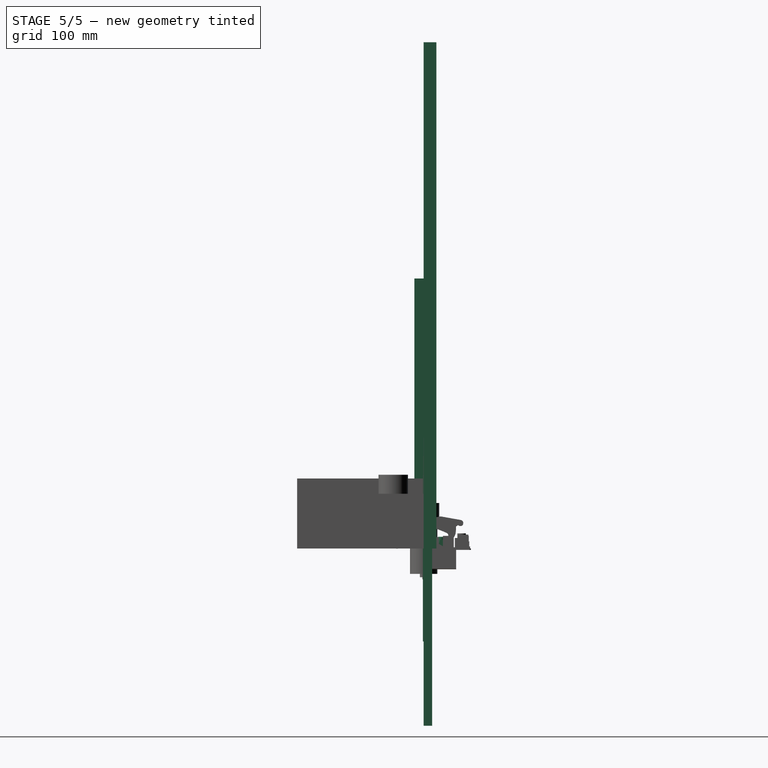
[diagram: stage 5 of 5 — right view after this stage's code; geometry added in this stage tinted green]
FEATURE [Sketcher::SketchObject] Sketch
  ArcFitTolerance = 1e-06
  AttachmentSupport = -> [XZ_Plane]
  FullyConstrained = true
  MakeInternals = false
  MapMode = 5
  Placement = pos=(0,0,0) rot=(1,0,0;1.5708rad)
  sketch-geometry (4):
    g0: LineSegment StartX=0 StartY=0 StartZ=0 EndX=10 EndY=0 EndZ=0
    g1: LineSegment StartX=10 StartY=0 StartZ=0 EndX=10 EndY=320 EndZ=0
    g2: LineSegment StartX=10 StartY=320 StartZ=0 EndX=0 EndY=320 EndZ=0
    g3: LineSegment StartX=0 StartY=320 StartZ=0 EndX=0 EndY=0 EndZ=0
  constraints (11):
    c: Coincident(g0,g1)
    c: Coincident(g1,g2)
    c: Coincident(g2,g3)
    c: Coincident(g3,g0)
    c: Horizontal(g0)
    c: Horizontal(g2)
    c: Vertical(g1)
    c: Vertical(g3)
    c: Distance(g1,g3) = 10
    c: Distance(g0,g2) = 320
    c: Coincident(g0,g-1)
FEATURE [PartDesign::Pad] Pad
  Direction = (0,-1,2e-16)
  Length = 1
  Length2 = 10
  Placement = pos=(0,0,0) rot=(1,0,0;1.5708rad)
  Profile = -> Sketch
  ReferenceAxis = -> Sketch [N_Axis]
  Refine = true
  Suppressed = false
  Type = 0
FEATURE [Sketcher::SketchObject] Sketch001
  ArcFitTolerance = 1e-06
  AttachmentSupport = -> [Pad]
  ExternalGeometry = -> [Pad]
  FullyConstrained = true
  MakeInternals = false
  MapMode = 5
  Placement = pos=(0,-1,0) rot=(1,0,0;1.5708rad)
  sketch-geometry (4):
    g0: LineSegment StartX=0 StartY=0 StartZ=0 EndX=1 EndY=0 EndZ=0
    g1: LineSegment StartX=1 StartY=0 StartZ=0 EndX=1 EndY=320 EndZ=0
    g2: LineSegment StartX=1 StartY=320 StartZ=0 EndX=0 EndY=320 EndZ=0
    g3: LineSegment StartX=0 StartY=320 StartZ=0 EndX=0 EndY=0 EndZ=0
  constraints (11):
    c: Coincident(g0,g1)
    c: Coincident(g1,g2)
    c: Coincident(g2,g3)
    c: Coincident(g3,g0)
    c: Horizontal(g0)
    c: Horizontal(g2)
    c: Vertical(g1)
    c: Vertical(g3)
    c: Coincident(g0,g-1)
    c: PointOnObject(g1,g-3)
    c: DistanceX(g2,g2) = 1
FEATURE [PartDesign::Pad] Pad001
  BaseFeature = -> Pad
  Direction = (0,-1,2e-16)
  Length = 10
  Length2 = 10
  Placement = pos=(0,0,0) rot=(1,0,0;1.5708rad)
  Profile = -> Sketch001
  ReferenceAxis = -> Sketch001 [N_Axis]
  Refine = true
  Suppressed = false
  Type = 0
FEATURE [PartDesign::Body] Body  label="Aluding1"
  AllowCompound = false
  Group = -> [Sketch,Pad,Sketch001,Pad001]
  Origin = -> Origin
  Placement = pos=(80,0,0) rot=(0,0,1;0rad)
  Tip = -> Pad001
FEATURE [App::Link] Link  label="Aluding2"
  LinkPlacement = pos=(-4.83186e-05,3.8147e-05,320) rot=(0,1,0;3.14159rad)
  LinkedObject = -> Body
  Placement = pos=(-4.83186e-05,3.8147e-05,320) rot=(0,1,0;3.14159rad)
FEATURE [Sketcher::SketchObject] Sketch002
  ArcFitTolerance = 1e-06
  AttachmentSupport = -> [XZ_Plane001]
  FullyConstrained = true
  MakeInternals = false
  MapMode = 5
  Placement = pos=(0,0,0) rot=(1,0,0;1.5708rad)
  sketch-geometry (4):
    g0: LineSegment StartX=0 StartY=0 StartZ=0 EndX=80 EndY=0 EndZ=0
    g1: LineSegment StartX=80 StartY=0 StartZ=0 EndX=80 EndY=150 EndZ=0
    g2: LineSegment StartX=80 StartY=150 StartZ=0 EndX=0 EndY=150 EndZ=0
    g3: LineSegment StartX=0 StartY=150 StartZ=0 EndX=0 EndY=0 EndZ=0
  constraints (11):
    c: Coincident(g0,g1)
    c: Coincident(g1,g2)
    c: Coincident(g2,g3)
    c: Coincident(g3,g0)
    c: Horizontal(g0)
    c: Horizontal(g2)
    c: Vertical(g1)
    c: Vertical(g3)
    c: Distance(g1,g3) = 80
    c: Distance(g0,g2) = 150
    c: Coincident(g0,g-1)
FEATURE [PartDesign::Pad] Pad002
  Direction = (0,-1,2e-16)
  Length = 1
  Length2 = 10
  Placement = pos=(0,0,0) rot=(1,0,0;1.5708rad)
  Profile = -> Sketch002
  ReferenceAxis = -> Sketch002 [N_Axis]
  Refine = true
  Suppressed = false
  Type = 0
FEATURE [PartDesign::Body] Body001  label="AluPlatteOben"
  AllowCompound = false
  Group = -> [Sketch002,Pad002]
  Origin = -> Origin001
  Tip = -> Pad002
FEATURE [Sketcher::SketchObject] Sketch003
  ArcFitTolerance = 1e-06
  AttachmentSupport = -> [XZ_Plane002]
  FullyConstrained = true
  MakeInternals = false
  MapMode = 5
  Placement = pos=(0,0,0) rot=(1,0,0;1.5708rad)
  sketch-geometry (4):
    g0: LineSegment StartX=-10 StartY=320 StartZ=0 EndX=-10 EndY=0 EndZ=0
    g1: LineSegment StartX=-10 StartY=0 StartZ=0 EndX=90 EndY=0 EndZ=0
    g2: LineSegment StartX=90 StartY=0 StartZ=0 EndX=90 EndY=320 EndZ=0
    g3: LineSegment StartX=90 StartY=320 StartZ=0 EndX=-10 EndY=320 EndZ=0
  constraints (12):
    c: Coincident(g0,g1)
    c: Coincident(g1,g2)
    c: Coincident(g2,g3)
    c: Coincident(g3,g0)
    c: Vertical(g0)
    c: Vertical(g2)
    c: Horizontal(g1)
    c: Horizontal(g3)
    c: PointOnObject(g1,g-1)
    c: DistanceX(g0,g-1) = 10
    c: DistanceX(g1,g1) = 100
    c: DistanceY(g0,g0) = 320
FEATURE [PartDesign::Pad] Pad003
  Direction = (0,-1,2e-16)
  Length = 10
  Length2 = 10
  Placement = pos=(0,0,0) rot=(1,0,0;1.5708rad)
  Profile = -> Sketch003
  ReferenceAxis = -> Sketch003 [N_Axis]
  Refine = true
  Reversed = true
  Suppressed = false
  Type = 0
FEATURE [Sketcher::SketchObject] Sketch004
  ArcFitTolerance = 1e-06
  AttachmentSupport = -> [Pad003]
  FullyConstrained = true
  MakeInternals = false
  MapMode = 5
  Placement = pos=(0,3.55e-14,0) rot=(1,0,0;1.5708rad)
  sketch-geometry (11):
    g0: LineSegment [constr] StartX=0 StartY=320 StartZ=0 EndX=0 EndY=150 EndZ=0
    g1: LineSegment [constr] StartX=0 StartY=150 StartZ=0 EndX=80 EndY=150 EndZ=0
    g2: LineSegment [constr] StartX=80 StartY=150 StartZ=0 EndX=80 EndY=320 EndZ=0
    g3: LineSegment [constr] StartX=80 StartY=320 StartZ=0 EndX=0 EndY=320 EndZ=0
    g4: ArcOfCircle CenterX=40 CenterY=280 CenterZ=0 NormalX=0 NormalY=0 NormalZ=1 AngleXU=0 Radius=30 StartAngle=0 EndAngle=3.14159
    g5: LineSegment [constr] StartX=10 StartY=280 StartZ=0 EndX=0 EndY=280 EndZ=0
    g6: LineSegment [constr] StartX=70 StartY=280 StartZ=0 EndX=80 EndY=280 EndZ=0
    g7: LineSegment [constr] StartX=40 StartY=310 StartZ=0 EndX=40 EndY=320 EndZ=0
    g8: LineSegment StartX=10 StartY=280 StartZ=0 EndX=10 EndY=150 EndZ=0
    g9: LineSegment StartX=70 StartY=280 StartZ=0 EndX=70 EndY=150 EndZ=0
    g10: LineSegment StartX=70 StartY=150 StartZ=0 EndX=10 EndY=150 EndZ=0
  constraints (35):
    c: Coincident(g0,g1)
    c: Coincident(g1,g2)
    c: Coincident(g2,g3)
    c: Coincident(g3,g0)
    c: Vertical(g0)
    c: Vertical(g2)
    c: Horizontal(g1)
    c: Horizontal(g3)
    c: DistanceY(g-1,g0) = 150
    c: Vertical(g0,g-1)
    c: DistanceY(g0,g0) = 170
    c: DistanceX(g3,g3) = 80
    c: Horizontal(g4,g4)
    c: Horizontal(g4,g4)
    c: Coincident(g5,g4)
    c: PointOnObject(g5,g0)
    c: Horizontal(g5)
    c: Coincident(g6,g4)
    c: PointOnObject(g6,g2)
    c: Horizontal(g6)
    c: Equal(g6,g5)
    c: PointOnObject(g7,g4)
    c: Symmetric(g3,g3,g7)
    c: Vertical(g7)
    c: Equal(g7,g5)
    c: DistanceX(g5,g5) = 10
    c: DistanceX(g4,g4) = 60
    c: Coincident(g8,g4)
    c: PointOnObject(g8,g1)
    c: Vertical(g8)
    c: Coincident(g9,g4)
    c: PointOnObject(g9,g1)
    c: Vertical(g9)
    c: Coincident(g10,g9)
    c: Coincident(g10,g8)
FEATURE [PartDesign::Pocket] Pocket
  BaseFeature = -> Pad003
  Direction = (0,1,-2e-16)
  Length = 5
  Length2 = 5
  Placement = pos=(0,0,0) rot=(1,0,0;1.5708rad)
  Profile = -> Sketch004
  ReferenceAxis = -> Sketch004 [N_Axis]
  Refine = true
  Suppressed = false
  Type = 1
FEATURE [PartDesign::Body] Body002  label="HolzInsertOben"
  AllowCompound = false
  Group = -> [Sketch003,Pad003,Sketch004,Pocket]
  Origin = -> Origin002
  Tip = -> Pocket
FEATURE [Sketcher::SketchObject] Sketch005
  ArcFitTolerance = 1e-06
  AttachmentSupport = -> [XZ_Plane003]
  FullyConstrained = true
  MakeInternals = false
  MapMode = 5
  Placement = pos=(0,0,0) rot=(1,0,0;1.5708rad)
  sketch-geometry (5):
    g0: LineSegment StartX=0 StartY=0 StartZ=0 EndX=0 EndY=-110 EndZ=0
    g1: LineSegment StartX=130 StartY=-110 StartZ=0 EndX=130 EndY=0 EndZ=0
    g2: LineSegment StartX=130 StartY=0 StartZ=0 EndX=0 EndY=0 EndZ=0
    g3: Circle CenterX=65 CenterY=-55 CenterZ=0 NormalX=0 NormalY=0 NormalZ=1 AngleXU=0 Radius=11.5
    g4: LineSegment StartX=0 StartY=-110 StartZ=0 EndX=130 EndY=-110 EndZ=0
  constraints (13):
    c: Coincident(g1,g2)
    c: Coincident(g2,g0)
    c: Vertical(g0)
    c: Vertical(g1)
    c: Horizontal(g2)
    c: Coincident(g0,g-1)
    c: Diameter(g3) = 23
    c: DistanceX(g2,g2) = 130
    c: DistanceY(g1,g1) = 110
    c: Coincident(g4,g0)
    c: Coincident(g4,g1)
    c: Horizontal(g4)
    c: Symmetric(g0,g1,g3)
FEATURE [PartDesign::Pad] Pad004
  Direction = (0,-1,2e-16)
  Length = 1
  Length2 = 10
  Placement = pos=(0,0,0) rot=(1,0,0;1.5708rad)
  Profile = -> Sketch005
  ReferenceAxis = -> Sketch005 [N_Axis]
  Refine = true
  Suppressed = false
  Type = 0
FEATURE [PartDesign::Body] Body003  label="AluPlatteUnten"
  AllowCompound = false
  Group = -> [Sketch005,Pad004]
  Origin = -> Origin003
  Placement = pos=(-25,0,-50) rot=(0,0,1;0rad)
  Tip = -> Pad004
FEATURE [Sketcher::SketchObject] Sketch006
  ArcFitTolerance = 1e-06
  AttachmentSupport = -> [XZ_Plane004]
  FullyConstrained = true
  MakeInternals = false
  MapMode = 5
  Placement = pos=(0,0,0) rot=(1,0,0;1.5708rad)
  sketch-geometry (10):
    g0: LineSegment StartX=0 StartY=0 StartZ=0 EndX=0 EndY=-100 EndZ=0
    g1: LineSegment StartX=0 StartY=-100 StartZ=0 EndX=150 EndY=-100 EndZ=0
    g2: LineSegment StartX=150 StartY=-100 StartZ=0 EndX=150 EndY=0 EndZ=0
    g3: LineSegment StartX=150 StartY=0 StartZ=0 EndX=0 EndY=0 EndZ=0
    g4: LineSegment StartX=5 StartY=-5 StartZ=0 EndX=5 EndY=-95 EndZ=0
    g5: LineSegment StartX=5 StartY=-95 StartZ=0 EndX=145 EndY=-95 EndZ=0
    g6: LineSegment StartX=145 StartY=-95 StartZ=0 EndX=145 EndY=-5 EndZ=0
    g7: LineSegment StartX=145 StartY=-5 StartZ=0 EndX=5 EndY=-5 EndZ=0
    g8: LineSegment [constr] StartX=0 StartY=-100 StartZ=0 EndX=5 EndY=-95 EndZ=0
    g9: LineSegment [constr] StartX=145 StartY=-5 StartZ=0 EndX=150 EndY=0 EndZ=0
  constraints (27):
    c: Coincident(g0,g1)
    c: Coincident(g1,g2)
    c: Coincident(g2,g3)
    c: Coincident(g3,g0)
    c: Vertical(g0)
    c: Vertical(g2)
    c: Horizontal(g1)
    c: Horizontal(g3)
    c: Coincident(g0,g-1)
    c: Coincident(g4,g5)
    c: Coincident(g5,g6)
    c: Coincident(g6,g7)
    c: Coincident(g7,g4)
    c: Vertical(g4)
    c: Vertical(g6)
    c: Horizontal(g5)
    c: Horizontal(g7)
    c: Coincident(g8,g0)
    c: Coincident(g8,g4)
    c: Angle(g1,g8) = 0.785398
    c: Coincident(g9,g6)
    c: Coincident(g9,g2)
    c: Angle(g9) = 0.785398
    c: Equal(g9,g8)
    c: DistanceX(g6,g2) = 5
    c: DistanceX(g4,g6) = 140
    c: DistanceY(g6,g6) = 90
FEATURE [PartDesign::Pad] Pad005
  Direction = (0,-1,2e-16)
  Length = 1
  Length2 = 10
  Placement = pos=(0,0,0) rot=(1,0,0;1.5708rad)
  Profile = -> Sketch006
  ReferenceAxis = -> Sketch006 [N_Axis]
  Refine = true
  Suppressed = false
  Type = 0
FEATURE [PartDesign::Body] Body004  label="AluRahmen"
  AllowCompound = false
  Group = -> [Sketch006,Pad005]
  Origin = -> Origin004
  Placement = pos=(-35,0,-160) rot=(0,0,1;0rad)
  Tip = -> Pad005
FEATURE [Sketcher::SketchObject] Sketch007
  ArcFitTolerance = 1e-06
  AttachmentSupport = -> [XZ_Plane005]
  FullyConstrained = true
  MakeInternals = false
  MapMode = 5
  Placement = pos=(0,0,0) rot=(1,0,0;1.5708rad)
  sketch-geometry (10):
    g0: LineSegment StartX=0 StartY=0 StartZ=0 EndX=0 EndY=-110 EndZ=0
    g1: LineSegment [constr] StartX=0 StartY=-110 StartZ=0 EndX=130 EndY=-110 EndZ=0
    g2: LineSegment StartX=130 StartY=-110 StartZ=0 EndX=130 EndY=0 EndZ=0
    g3: LineSegment StartX=130 StartY=0 StartZ=0 EndX=0 EndY=0 EndZ=0
    g4: LineSegment StartX=-10 StartY=-110 StartZ=0 EndX=-10 EndY=-210 EndZ=0
    g5: LineSegment StartX=-10 StartY=-210 StartZ=0 EndX=140 EndY=-210 EndZ=0
    g6: LineSegment StartX=140 StartY=-210 StartZ=0 EndX=140 EndY=-110 EndZ=0
    g7: LineSegment StartX=-10 StartY=-110 StartZ=0 EndX=0 EndY=-110 EndZ=0
    g8: LineSegment StartX=130 StartY=-110 StartZ=0 EndX=140 EndY=-110 EndZ=0
    g9: Circle CenterX=65 CenterY=-55 CenterZ=0 NormalX=0 NormalY=0 NormalZ=1 AngleXU=0 Radius=22.5
  constraints (27):
    c: Coincident(g0,g1)
    c: Coincident(g1,g2)
    c: Coincident(g2,g3)
    c: Coincident(g3,g0)
    c: Vertical(g0)
    c: Vertical(g2)
    c: Horizontal(g1)
    c: Horizontal(g3)
    c: Coincident(g0,g-1)
    c: DistanceY(g2,g2) = 110
    c: DistanceX(g3,g3) = 130
    c: Coincident(g4,g5)
    c: Coincident(g5,g6)
    c: Vertical(g4)
    c: Vertical(g6)
    c: Horizontal(g5)
    c: Coincident(g7,g4)
    c: Coincident(g7,g0)
    c: Coincident(g8,g1)
    c: Coincident(g8,g6)
    c: Horizontal(g8)
    c: Horizontal(g7)
    c: Equal(g8,g7)
    c: DistanceX(g5,g5) = 150
    c: DistanceY(g4,g4) = 100
    c: Diameter(g9) = 45
    c: Symmetric(g0,g1,g9)
FEATURE [PartDesign::Pad] Pad006
  Direction = (0,-1,2e-16)
  Length = 10
  Length2 = 10
  Placement = pos=(0,0,0) rot=(1,0,0;1.5708rad)
  Profile = -> Sketch007
  ReferenceAxis = -> Sketch007 [N_Axis]
  Refine = true
  Reversed = true
  Suppressed = false
  Type = 0
FEATURE [PartDesign::Body] Body005  label="Placeholder"
  AllowCompound = false
  Group = -> [Sketch007,Pad006]
  Origin = -> Origin005
  Placement = pos=(-25,0,-50) rot=(0,0,1;0rad)
  Tip = -> Pad006
FEATURE [Sketcher::SketchObject] Sketch008
  ArcFitTolerance = 1e-06
  AttachmentSupport = -> [XZ_Plane006]
  FullyConstrained = true
  MakeInternals = false
  MapMode = 5
  Placement = pos=(0,0,0) rot=(1,0,0;1.5708rad)
  sketch-geometry (4):
    g0: LineSegment StartX=0 StartY=600 StartZ=0 EndX=0 EndY=0 EndZ=0
    g1: LineSegment StartX=0 StartY=0 StartZ=0 EndX=180 EndY=0 EndZ=0
    g2: LineSegment StartX=180 StartY=0 StartZ=0 EndX=180 EndY=600 EndZ=0
    g3: LineSegment StartX=180 StartY=600 StartZ=0 EndX=0 EndY=600 EndZ=0
  constraints (11):
    c: Coincident(g0,g1)
    c: Coincident(g1,g2)
    c: Coincident(g2,g3)
    c: Coincident(g3,g0)
    c: Vertical(g0)
    c: Vertical(g2)
    c: Horizontal(g1)
    c: Horizontal(g3)
    c: Distance(g0,g2) = 180
    c: Distance(g1,g3) = 600
    c: Coincident(g0,g-1)
FEATURE [PartDesign::Pad] Pad007
  Direction = (0,-1,2e-16)
  Length = 15
  Length2 = 10
  Placement = pos=(0,0,0) rot=(1,0,0;1.5708rad)
  Profile = -> Sketch008
  ReferenceAxis = -> Sketch008 [N_Axis]
  Refine = true
  Reversed = true
  Suppressed = false
  Type = 0
FEATURE [PartDesign::Body] Body006  label="BackdropHolzplatte"
  AllowCompound = false
  Group = -> [Sketch008,Pad007]
  Origin = -> Origin006
  Placement = pos=(-50.5,10,-260) rot=(0,0,1;0rad)
  Tip = -> Pad007
FEATURE [Sketcher::SketchObject] Sketch009
  ArcFitTolerance = 1e-06
  AttachmentSupport = -> [XY_Plane]
  FullyConstrained = true
  MakeInternals = false
  MapMode = 5
  sketch-geometry (20):
    g0: LineSegment StartX=2 StartY=0 StartZ=0 EndX=60.5 EndY=0 EndZ=0
    g1: LineSegment StartX=62.5 StartY=2 StartZ=0 EndX=62.5 EndY=23 EndZ=0
    g2: LineSegment StartX=60.5 StartY=25 StartZ=0 EndX=2 EndY=25 EndZ=0
    g3: LineSegment StartX=0 StartY=23 StartZ=0 EndX=0 EndY=2 EndZ=0
    g4: ArcOfCircle CenterX=2 CenterY=23 CenterZ=0 NormalX=0 NormalY=0 NormalZ=1 AngleXU=0 Radius=2 StartAngle=1.5708 EndAngle=3.14159
    g5: GeomPoint [constr] X=0 Y=25 Z=0
    g6: ArcOfCircle CenterX=2 CenterY=2 CenterZ=0 NormalX=0 NormalY=0 NormalZ=1 AngleXU=0 Radius=2 StartAngle=3.14159 EndAngle=4.71239
    g7: GeomPoint [constr] X=0 Y=0 Z=0
    g8: ArcOfCircle CenterX=60.5 CenterY=2 CenterZ=0 NormalX=0 NormalY=0 NormalZ=1 AngleXU=0 Radius=2 StartAngle=4.71239 EndAngle=6.28319
    g9: GeomPoint [constr] X=62.5 Y=0 Z=0
    g10: ArcOfCircle CenterX=60.5 CenterY=23 CenterZ=0 NormalX=0 NormalY=0 NormalZ=1 AngleXU=0 Radius=2 StartAngle=0 EndAngle=1.5708
    g11: GeomPoint [constr] X=62.5 Y=25 Z=0
    g12: Circle CenterX=3 CenterY=3 CenterZ=0 NormalX=0 NormalY=0 NormalZ=1 AngleXU=0 Radius=1.5
    g13: Circle CenterX=3 CenterY=22 CenterZ=0 NormalX=0 NormalY=0 NormalZ=1 AngleXU=0 Radius=1.5
    g14: Circle CenterX=59.5 CenterY=22 CenterZ=0 NormalX=0 NormalY=0 NormalZ=1 AngleXU=0 Radius=1.5
    g15: Circle CenterX=59.5 CenterY=3 CenterZ=0 NormalX=0 NormalY=0 NormalZ=1 AngleXU=0 Radius=1.5
    g16: LineSegment [constr] StartX=1.5 StartY=3 StartZ=0 EndX=0 EndY=3 EndZ=0
    g17: LineSegment [constr] StartX=61 StartY=3 StartZ=0 EndX=62.5 EndY=3 EndZ=0
    g18: LineSegment [constr] StartX=3 StartY=1.5 StartZ=0 EndX=3 EndY=0 EndZ=0
    g19: LineSegment [constr] StartX=3 StartY=23.5 StartZ=0 EndX=3 EndY=25 EndZ=0
  constraints (55):
    c: Horizontal(g0)
    c: Horizontal(g2)
    c: Vertical(g1)
    c: Vertical(g3)
    c: Coincident(g7,g-1)
    c: PointOnObject(g5,g2)
    c: PointOnObject(g5,g3)
    c: Tangent(g2,g4) = -1.5708
    c: Tangent(g3,g4) = -1.5708
    c: PointOnObject(g7,g3)
    c: PointOnObject(g7,g0)
    c: Tangent(g3,g6) = -1.5708
    c: Tangent(g0,g6) = -1.5708
    c: PointOnObject(g9,g0)
    c: PointOnObject(g9,g1)
    c: Tangent(g0,g8) = -1.5708
    c: Tangent(g1,g8) = -1.5708
    c: PointOnObject(g11,g1)
    c: PointOnObject(g11,g2)
    c: Tangent(g1,g10) = -1.5708
    c: Tangent(g2,g10) = -1.5708
    c: Equal(g4,g10)
    c: Equal(g10,g8)
    c: Equal(g8,g6)
    c: DistanceY(g0,g2) = 25
    c: DistanceX(g3,g1) = 62.5
    c: Diameter(g4) = 4
    c: Equal(g15,g14)
    c: Equal(g14,g13)
    c: Equal(g13,g12)
    c: Vertical(g12,g13)
    c: Vertical(g14,g15)
    c: Horizontal(g15,g12)
    c: Horizontal(g13,g14)
    c: Diameter(g12) = 3
    c: PointOnObject(g16,g12)
    c: PointOnObject(g16,g3)
    c: Horizontal(g16)
    c: PointOnObject(g17,g15)
    c: PointOnObject(g17,g1)
    c: Horizontal(g17)
    c: Horizontal(g17,g15)
    c: Horizontal(g16,g12)
    c: Equal(g16,g17)
    c: DistanceX(g17,g17) = 1.5
    c: PointOnObject(g18,g12)
    c: PointOnObject(g18,g0)
    c: Vertical(g18)
    c: Vertical(g18,g12)
    c: PointOnObject(g19,g13)
    c: PointOnObject(g19,g2)
    c: Vertical(g19)
    c: Vertical(g19,g13)
    c: DistanceY(g19,g19) = 1.5
    c: Equal(g18,g19)
FEATURE [PartDesign::Pad] Pad008
  Direction = (0,0,1)
  Length = 1.5
  Length2 = 10
  Profile = -> Sketch009
  ReferenceAxis = -> Sketch009 [N_Axis]
  Refine = true
  Suppressed = false
  Type = 0
FEATURE [Sketcher::SketchObject] Sketch010
  ArcFitTolerance = 1e-06
  AttachmentSupport = -> [Pad008]
  ExternalGeometry = -> [Pad008]
  FullyConstrained = true
  MakeInternals = false
  MapMode = 5
  Placement = pos=(0,0,1.5) rot=(0,0,1;0rad)
  sketch-geometry (6):
    g0: LineSegment StartX=2e-16 StartY=20 StartZ=0 EndX=2e-16 EndY=5 EndZ=0
    g1: LineSegment StartX=2e-16 StartY=5 StartZ=0 EndX=2.5 EndY=5 EndZ=0
    g2: LineSegment StartX=2.5 StartY=5 StartZ=0 EndX=2.5 EndY=20 EndZ=0
    g3: LineSegment StartX=2.5 StartY=20 StartZ=0 EndX=0 EndY=20 EndZ=0
    g4: GeomPoint [constr] X=0 Y=12.5 Z=0
    g5: GeomPoint [constr] X=0 Y=12.5 Z=0
  constraints (13):
    c: Coincident(g0,g1)
    c: Coincident(g1,g2)
    c: Coincident(g2,g3)
    c: Coincident(g3,g0)
    c: Vertical(g0)
    c: Vertical(g2)
    c: Horizontal(g1)
    c: Horizontal(g3)
    c: Distance(g0,g2) = 2.5
    c: Distance(g1,g3) = 15
    c: Symmetric(g0,g0,g4)
    c: Symmetric(g-3,g-3,g5)
    c: Coincident(g4,g5)
FEATURE [PartDesign::Pad] Pad009
  BaseFeature = -> Pad008
  Direction = (0,0,1)
  Length = 2.5
  Length2 = 10
  Profile = -> Sketch010
  ReferenceAxis = -> Sketch010 [N_Axis]
  Refine = true
  Suppressed = false
  Type = 0
FEATURE [Sketcher::SketchObject] Sketch011
  ArcFitTolerance = 1e-06
  AttachmentOffset = pos=(0,0,-6) rot=(0,0,1;0rad)
  ExternalGeometry = -> [Pad009]
  FullyConstrained = true
  MakeInternals = false
  MapMode = 5
  Placement = pos=(0,6,-1.3e-15) rot=(1,0,0;1.5708rad)
  sketch-geometry (8):
    g0: LineSegment StartX=0.875 StartY=4 StartZ=0 EndX=1.625 EndY=4 EndZ=0
    g1: LineSegment StartX=1.625 StartY=4 StartZ=0 EndX=1.625 EndY=5.25 EndZ=0
    g2: LineSegment StartX=0.875 StartY=5.25 StartZ=0 EndX=0.875 EndY=4 EndZ=0
    g3: LineSegment StartX=-5.875 StartY=6 StartZ=0 EndX=-5.875 EndY=5.25 EndZ=0
    g4: LineSegment StartX=-5.875 StartY=5.25 StartZ=0 EndX=0.875 EndY=5.25 EndZ=0
    g5: LineSegment StartX=0.875 StartY=6 StartZ=0 EndX=-5.875 EndY=6 EndZ=0
    g6: ArcOfCircle CenterX=0.875 CenterY=5.25 CenterZ=0 NormalX=0 NormalY=0 NormalZ=1 AngleXU=0 Radius=0.75 StartAngle=1e-16 EndAngle=1.5708
    g7: GeomPoint [constr] X=1.25 Y=4 Z=0
  constraints (21):
    c: Coincident(g0,g1)
    c: Coincident(g2,g0)
    c: Horizontal(g0)
    c: Vertical(g1)
    c: Vertical(g2)
    c: Coincident(g3,g4)
    c: Coincident(g5,g3)
    c: Vertical(g3)
    c: Horizontal(g5)
    c: Coincident(g2,g4)
    c: Coincident(g2,g6)
    c: Coincident(g5,g6)
    c: Coincident(g1,g6)
    c: Horizontal(g4)
    c: DistanceY(g0,g5) = 2
    c: DistanceY(g3,g3) = 0.75
    c: Vertical(g2,g5)
    c: Horizontal(g1,g2)
    c: Symmetric(g0,g0,g7)
    c: Symmetric(g-3,g-3,g7)
    c: DistanceX(g3,g1) = 7.5
FEATURE [PartDesign::Pad] Pad010
  BaseFeature = -> Pad009
  Direction = (0,-1,2e-16)
  Length = 0.75
  Length2 = 10
  Profile = -> Sketch011
  ReferenceAxis = -> Sketch011 [N_Axis]
  Refine = true
  Reversed = true
  Suppressed = false
  Type = 0
FEATURE [PartDesign::LinearPattern] LinearPattern
  BaseFeature = -> Pad010
  Direction = -> Sketch011 [N_Axis]
  Length = 12.25
  Mode = 0
  Occurrences = 5
  Offset = 3.0625
  Originals = -> [Pad010]
  Refine = true
  Reversed = true
  Suppressed = false
  TransformMode = 0
FEATURE [Sketcher::SketchObject] Sketch012
  ArcFitTolerance = 1e-06
  AttachmentSupport = -> [LinearPattern]
  ExternalGeometry = -> [LinearPattern]
  FullyConstrained = true
  MakeInternals = false
  MapMode = 5
  Placement = pos=(0,0,1.5) rot=(0,0,1;0rad)
  sketch-geometry (4):
    g0: Circle CenterX=12.5 CenterY=21 CenterZ=0 NormalX=0 NormalY=0 NormalZ=1 AngleXU=0 Radius=4
    g1: GeomPoint X=12.5 Y=25 Z=0
    g2: GeomPoint X=12.5 Y=25 Z=0
    g3: GeomPoint X=8.5 Y=21 Z=0
  constraints (8):
    c: Diameter(g0) = 8
    c: PointOnObject(g1,g-3)
    c: PointOnObject(g2,g0)
    c: Vertical(g2,g0)
    c: Coincident(g2,g1)
    c: PointOnObject(g3,g0)
    c: Horizontal(g3,g0)
    c: DistanceX(g-1,g3) = 8.5
FEATURE [PartDesign::Pad] Pad011
  BaseFeature = -> LinearPattern
  Direction = (0,0,1)
  Length = 12.5
  Length2 = 10
  Profile = -> Sketch012
  ReferenceAxis = -> Sketch012 [N_Axis]
  Refine = true
  Suppressed = false
  Type = 0
FEATURE [PartDesign::Fillet] Fillet
  Base = -> Pad011 [Edge53]
  BaseFeature = -> Pad011
  Radius = 0.6
  Refine = true
  SupportTransform = false
  Suppressed = false
  UseAllEdges = false
FEATURE [Sketcher::SketchObject] Sketch013
  ArcFitTolerance = 1e-06
  AttachmentOffset = pos=(5.5,0,0) rot=(0,0,1;0rad)
  AttachmentSupport = -> [Fillet]
  FullyConstrained = true
  MakeInternals = false
  MapMode = 5
  Placement = pos=(5.5,0,1.5) rot=(0,0,1;0rad)
  sketch-geometry (4):
    g0: LineSegment StartX=0 StartY=0 StartZ=0 EndX=2.5 EndY=0 EndZ=0
    g1: LineSegment StartX=2.5 StartY=0 StartZ=0 EndX=2.5 EndY=2.5 EndZ=0
    g2: LineSegment StartX=2.5 StartY=2.5 StartZ=0 EndX=0 EndY=2.5 EndZ=0
    g3: LineSegment StartX=0 StartY=2.5 StartZ=0 EndX=0 EndY=0 EndZ=0
  constraints (11):
    c: Coincident(g0,g1)
    c: Coincident(g1,g2)
    c: Coincident(g2,g3)
    c: Coincident(g3,g0)
    c: Horizontal(g0)
    c: Horizontal(g2)
    c: Vertical(g1)
    c: Vertical(g3)
    c: Distance(g1,g3) = 2.5
    c: Distance(g0,g2) = 2.5
    c: Coincident(g0,g-1)
FEATURE [PartDesign::Pad] Pad012
  BaseFeature = -> Fillet
  Direction = (0,0,1)
  Length = 2.5
  Length2 = 10
  Profile = -> Sketch013
  ReferenceAxis = -> Sketch013 [N_Axis]
  Refine = true
  Suppressed = false
  Type = 0
FEATURE [Sketcher::SketchObject] Sketch014
  ArcFitTolerance = 1e-06
  AttachmentSupport = -> [Pad012]
  ExternalGeometry = -> [Pad012]
  FullyConstrained = true
  MakeInternals = false
  MapMode = 5
  Placement = pos=(0,0,4) rot=(0,0,1;0rad)
  sketch-geometry (5):
    g0: LineSegment StartX=6.375 StartY=1.625 StartZ=0 EndX=6.375 EndY=0.875 EndZ=0
    g1: LineSegment StartX=6.375 StartY=0.875 StartZ=0 EndX=7.125 EndY=0.875 EndZ=0
    g2: LineSegment StartX=7.125 StartY=0.875 StartZ=0 EndX=7.125 EndY=1.625 EndZ=0
    g3: LineSegment StartX=7.125 StartY=1.625 StartZ=0 EndX=6.375 EndY=1.625 EndZ=0
    g4: GeomPoint X=6.75 Y=1.25 Z=0
  constraints (12):
    c: Coincident(g0,g1)
    c: Coincident(g1,g2)
    c: Coincident(g2,g3)
    c: Coincident(g3,g0)
    c: Vertical(g0)
    c: Vertical(g2)
    c: Horizontal(g1)
    c: Horizontal(g3)
    c: Distance(g0,g2) = 0.75
    c: Equal(g3,g0)
    c: Symmetric(g0,g2,g4)
    c: Symmetric(g-3,g-4,g4)
FEATURE [PartDesign::LinearPattern] LinearPattern001
  Direction = -> Sketch014 [H_Axis]
  Length = 7.5
  Mode = 0
  Occurrences = 4
  Offset = 2.5
  Refine = true
  Suppressed = false
  TransformMode = 0
FEATURE [PartDesign::LinearPattern] LinearPattern002
  Direction = -> Sketch014 [V_Axis]
  Length = 5
  Mode = 0
  Occurrences = 3
  Offset = 2.5
  Refine = true
  Suppressed = false
  TransformMode = 0
FEATURE [PartDesign::LinearPattern] LinearPattern003
  Direction = -> Sketch014 [H_Axis]
  Length = 12.5
  Mode = 0
  Occurrences = 2
  Offset = 12.5
  Refine = true
  Suppressed = false
  TransformMode = 0
FEATURE [PartDesign::LinearPattern] LinearPattern004
  Direction = -> Sketch014 [H_Axis]
  Length = 29
  Mode = 0
  Occurrences = 2
  Offset = 29
  Refine = true
  Suppressed = false
  TransformMode = 0
FEATURE [PartDesign::Pad] Pad013
  BaseFeature = -> Pad012
  Direction = (0,0,1)
  Length = 5.5
  Length2 = 10
  Profile = -> Sketch014
  ReferenceAxis = -> Sketch014 [N_Axis]
  Refine = true
  Suppressed = false
  Type = 0
FEATURE [PartDesign::MultiTransform] MultiTransform
  BaseFeature = -> Pad013
  Originals = -> [Pad013,Pad012]
  Refine = true
  Suppressed = false
  TransformMode = 0
  Transformations = -> [LinearPattern001,LinearPattern004,LinearPattern002,LinearPattern003]
FEATURE [Sketcher::SketchObject] Sketch015
  ArcFitTolerance = 1e-06
  AttachmentSupport = -> [MultiTransform]
  ExternalGeometry = -> [MultiTransform]
  FullyConstrained = true
  MakeInternals = false
  MapMode = 5
  Placement = pos=(0,0,1.5) rot=(0,0,1;0rad)
  sketch-geometry (7):
    g0: LineSegment StartX=27.75 StartY=25 StartZ=0 EndX=27.75 EndY=18 EndZ=0
    g1: LineSegment StartX=27.75 StartY=18 StartZ=0 EndX=34.75 EndY=18 EndZ=0
    g2: LineSegment StartX=34.75 StartY=18 StartZ=0 EndX=34.75 EndY=25 EndZ=0
    g3: LineSegment StartX=34.75 StartY=25 StartZ=0 EndX=27.75 EndY=25 EndZ=0
    g4: GeomPoint X=31.25 Y=25 Z=0
    g5: GeomPoint X=62.5 Y=25 Z=0
    g6: GeomPoint X=0 Y=25 Z=0
  constraints (16):
    c: Coincident(g0,g1)
    c: Coincident(g1,g2)
    c: Coincident(g2,g3)
    c: Coincident(g3,g0)
    c: Vertical(g0)
    c: Vertical(g2)
    c: Horizontal(g1)
    c: Horizontal(g3)
    c: Distance(g0,g2) = 7
    c: Distance(g1,g3) = 7
    c: PointOnObject(g0,g-3)
    c: Symmetric(g3,g3,g4)
    c: Vertical(g5,g-4)
    c: Horizontal(g5,g-3)
    c: PointOnObject(g6,g-2)
    c: Symmetric(g6,g5,g4)
FEATURE [PartDesign::Pad] Pad014
  BaseFeature = -> MultiTransform
  Direction = (0,0,1)
  Length = 9
  Length2 = 10
  Profile = -> Sketch015
  ReferenceAxis = -> Sketch015 [N_Axis]
  Refine = true
  Suppressed = false
  Type = 0
FEATURE [PartDesign::Chamfer] Chamfer
  Angle = 45
  Base = -> Pad014 [Edge61]
  BaseFeature = -> Pad014
  ChamferType = 1
  FlipDirection = false
  Refine = true
  Size = 5
  Size2 = 1.5
  SupportTransform = false
  Suppressed = false
  UseAllEdges = false
FEATURE [PartDesign::Chamfer] Chamfer001
  Angle = 45
  Base = -> Chamfer [Edge48]
  BaseFeature = -> Chamfer
  ChamferType = 1
  FlipDirection = false
  Refine = true
  Size = 1.5
  Size2 = 4
  SupportTransform = false
  Suppressed = false
  UseAllEdges = false
FEATURE [Sketcher::SketchObject] Sketch016
  ArcFitTolerance = 1e-06
  AttachmentSupport = -> [Chamfer001]
  ExternalGeometry = -> [Chamfer001]
  FullyConstrained = true
  MakeInternals = false
  MapMode = 5
  Placement = pos=(0,0,10.5) rot=(0,0,1;0rad)
  sketch-geometry (7):
    g0: Circle CenterX=29.375 CenterY=21.5 CenterZ=0 NormalX=0 NormalY=0 NormalZ=1 AngleXU=0 Radius=1.5
    g1: Circle CenterX=33.125 CenterY=21.5 CenterZ=0 NormalX=0 NormalY=0 NormalZ=1 AngleXU=0 Radius=1.5
    g2: LineSegment [constr] StartX=30.875 StartY=21.5 StartZ=0 EndX=31.625 EndY=21.5 EndZ=0
    g3: LineSegment [constr] StartX=29.375 StartY=21.5 StartZ=0 EndX=29.375 EndY=23.5 EndZ=0
    g4: LineSegment [constr] StartX=29.375 StartY=21.5 StartZ=0 EndX=29.375 EndY=19.5 EndZ=0
    g5: LineSegment [constr] StartX=29.375 StartY=21.5 StartZ=0 EndX=27.75 EndY=21.5 EndZ=0
    g6: LineSegment [constr] StartX=33.125 StartY=21.5 StartZ=0 EndX=34.75 EndY=21.5 EndZ=0
  constraints (20):
    c: Diameter(g0) = 3
    c: Equal(g0,g1)
    c: Horizontal(g0,g1)
    c: PointOnObject(g2,g0)
    c: PointOnObject(g2,g1)
    c: Horizontal(g2)
    c: Horizontal(g2,g0)
    c: DistanceX(g2,g2) = 0.75
    c: Coincident(g3,g0)
    c: PointOnObject(g3,g-3)
    c: Vertical(g3)
    c: Coincident(g4,g0)
    c: PointOnObject(g4,g-4)
    c: Vertical(g4)
    c: Equal(g3,g4)
    c: Coincident(g5,g0)
    c: Symmetric(g-5,g-5,g5)
    c: Coincident(g6,g1)
    c: Symmetric(g-6,g-6,g6)
    c: Equal(g6,g5)
FEATURE [PartDesign::Pocket] Pocket001
  BaseFeature = -> Chamfer001
  Direction = (0,0,-1)
  Length = 1.5
  Length2 = 5
  Profile = -> Sketch016
  ReferenceAxis = -> Sketch016 [N_Axis]
  Refine = true
  Suppressed = false
  Type = 0
FEATURE [Sketcher::SketchObject] Sketch022
  ArcFitTolerance = 1e-06
  AttachmentSupport = -> [Pad017]
  ExternalGeometry = -> [Pad017]
  FullyConstrained = true
  MakeInternals = false
  MapMode = 5
  Placement = pos=(-2,0,0) rot=(0.707107,0,-0.707107;3.14159rad)
  sketch-geometry (10):
    g0: LineSegment StartX=-42.5 StartY=17.75 StartZ=0 EndX=-33.5 EndY=17.75 EndZ=0
    g1: LineSegment StartX=-33.5 StartY=17.75 StartZ=0 EndX=-33.5 EndY=18.75 EndZ=0
    g2: LineSegment StartX=-33.5 StartY=18.75 StartZ=0 EndX=-42.5 EndY=18.75 EndZ=0
    g3: LineSegment StartX=-42.5 StartY=18.75 StartZ=0 EndX=-42.5 EndY=17.75 EndZ=0
    g4: Circle CenterX=-38 CenterY=28.75 CenterZ=0 NormalX=0 NormalY=0 NormalZ=1 AngleXU=0 Radius=5.5
    g5: Circle CenterX=-38 CenterY=28.75 CenterZ=0 NormalX=0 NormalY=0 NormalZ=1 AngleXU=0 Radius=4
    g6: GeomPoint [constr] X=-45.5 Y=28.75 Z=0
    g7: GeomPoint [constr] X=-30.5 Y=28.75 Z=0
    g8: GeomPoint [constr] X=-38 Y=17.75 Z=0
    g9: GeomPoint [constr] X=-38 Y=14.75 Z=0
  constraints (22):
    c: Coincident(g0,g1)
    c: Coincident(g1,g2)
    c: Coincident(g2,g3)
    c: Coincident(g3,g0)
    c: Horizontal(g0)
    c: Horizontal(g2)
    c: Vertical(g1)
    c: Vertical(g3)
    c: Coincident(g5,g4)
    c: PointOnObject(g6,g-5)
    c: PointOnObject(g7,g-6)
    c: Horizontal(g7,g6)
    c: Symmetric(g6,g7,g4)
    c: Diameter(g5) = 8
    c: Diameter(g4) = 11
    c: DistanceY(g6,g-5) = 7
    c: DistanceX(g2,g2) = 9
    c: DistanceY(g3,g3) = 1
    c: Symmetric(g0,g0,g8)
    c: Symmetric(g-4,g-4,g9)
    c: Vertical(g8,g9)
    c: DistanceY(g-5,g0) = 3
FEATURE [PartDesign::Pocket] Pocket004
  BaseFeature = -> Pad017
  Direction = (1,0,2e-16)
  Length = 0.1
  Length2 = 5
  Placement = pos=(0,0,0) rot=(1,0,0;1.5708rad)
  Profile = -> Sketch022
  ReferenceAxis = -> Sketch022 [N_Axis]
  Refine = true
  Suppressed = false
  Type = 0
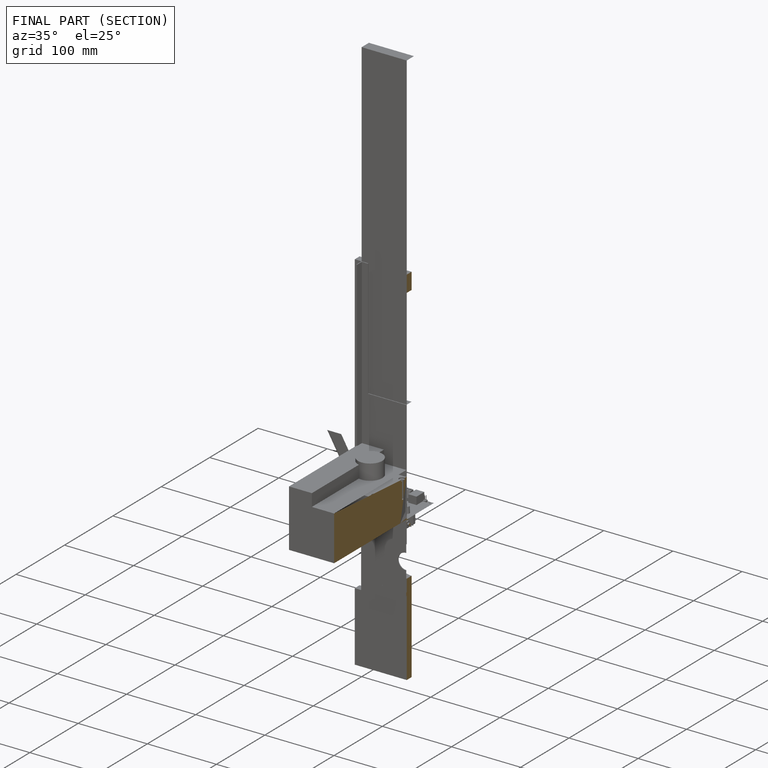
[diagram: finished part — half-section view (interior)]
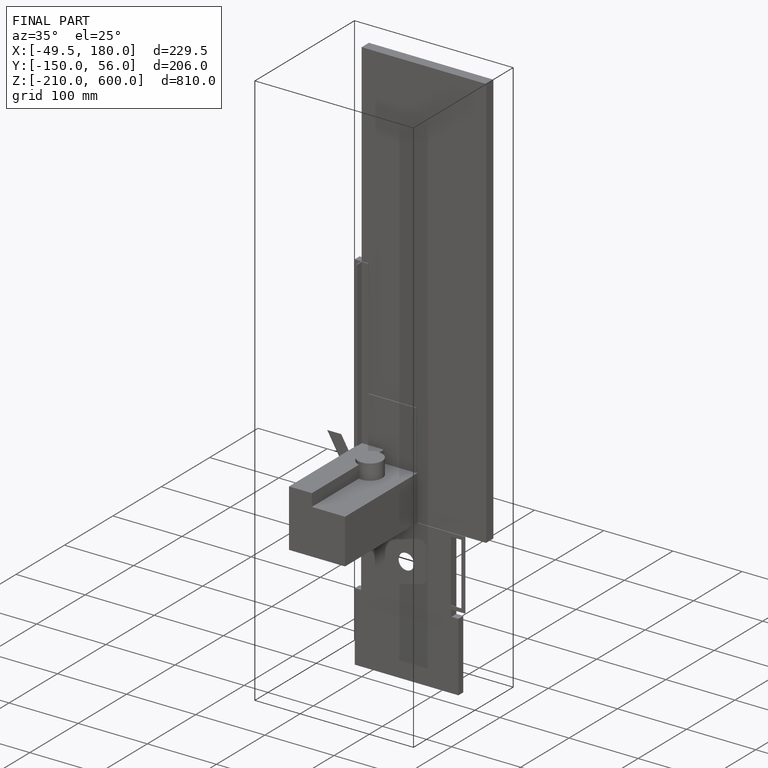
[diagram: finished part — iso view with bounding-box wireframe]
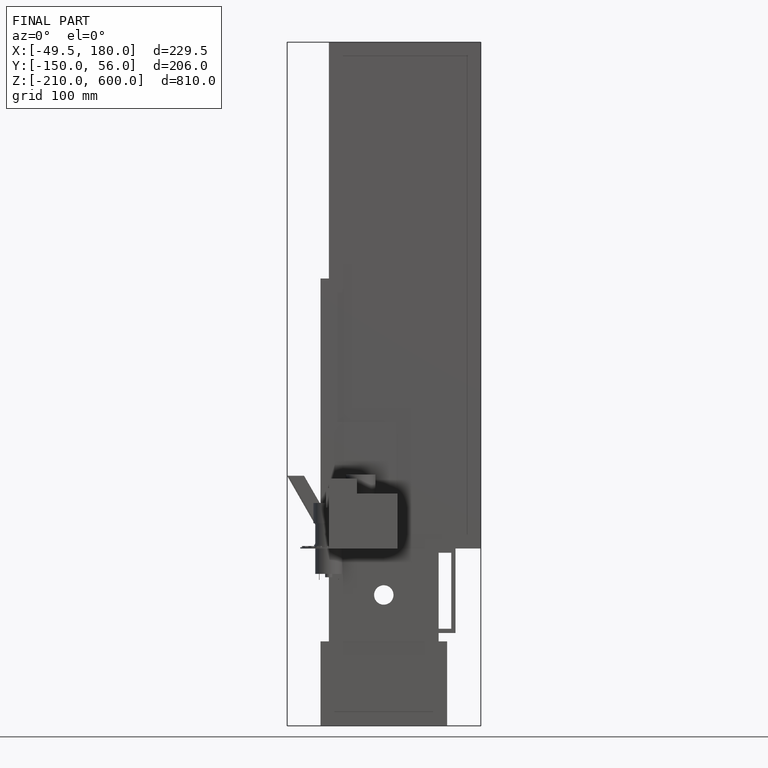
[diagram: finished part — front view with bounding-box wireframe]
